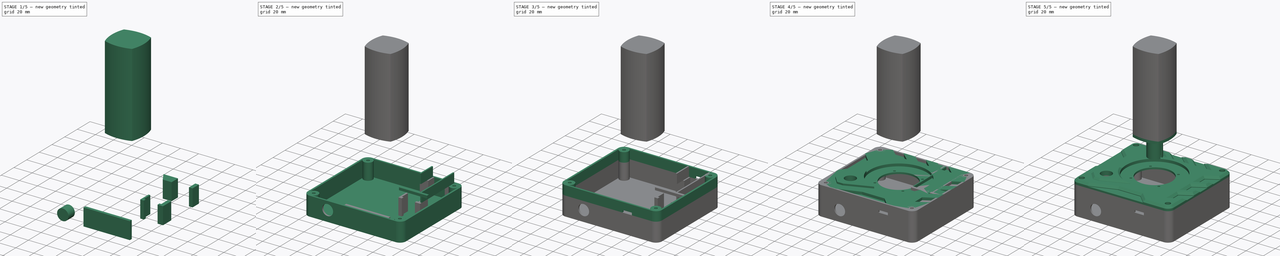
[diagram: build sequence overview — one tinted view per stage of 5, left to right]
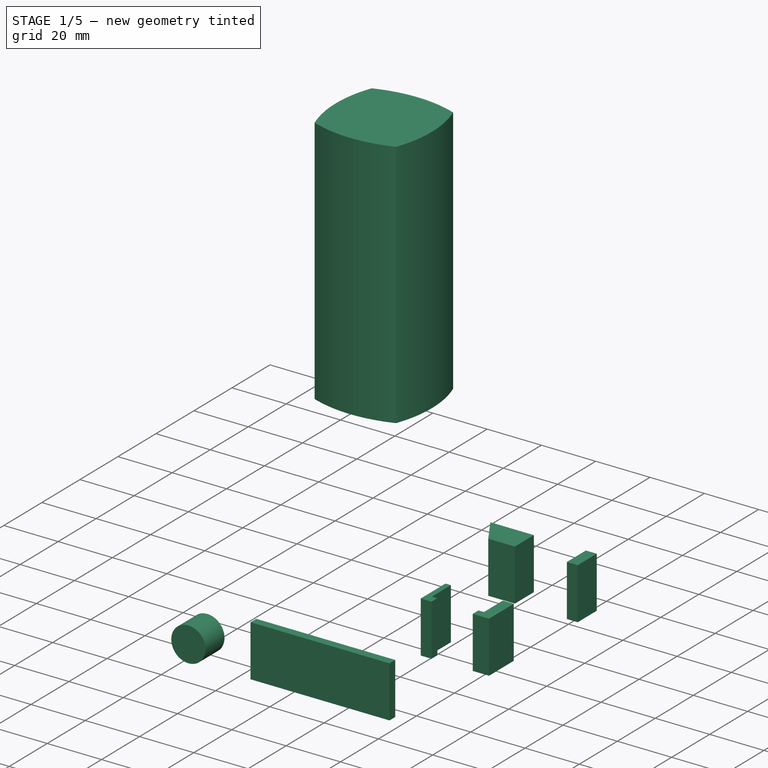
[diagram: stage 1 of 5 — iso view after this stage's code; geometry added in this stage tinted green]
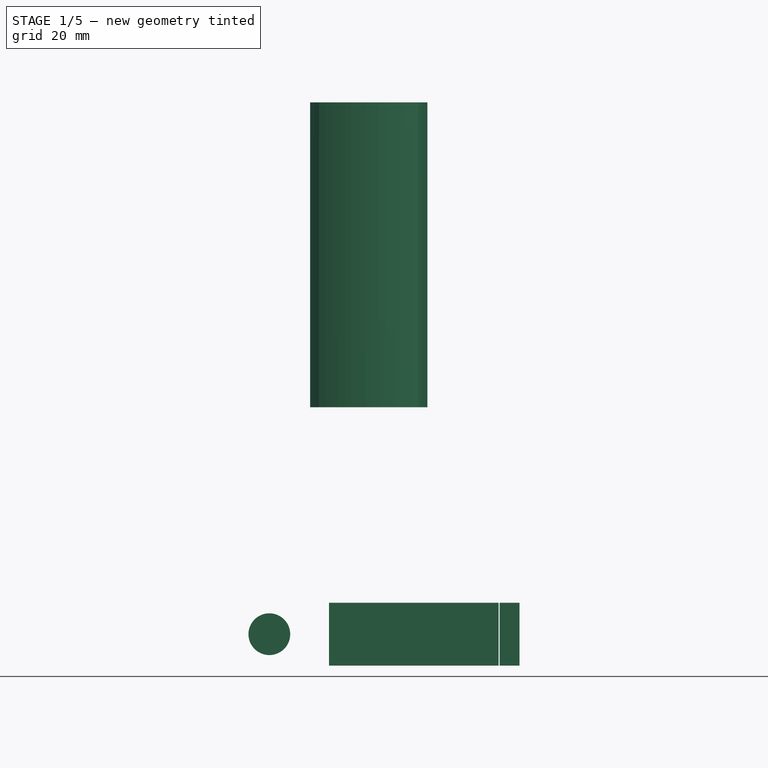
[diagram: stage 1 of 5 — front view after this stage's code; geometry added in this stage tinted green]
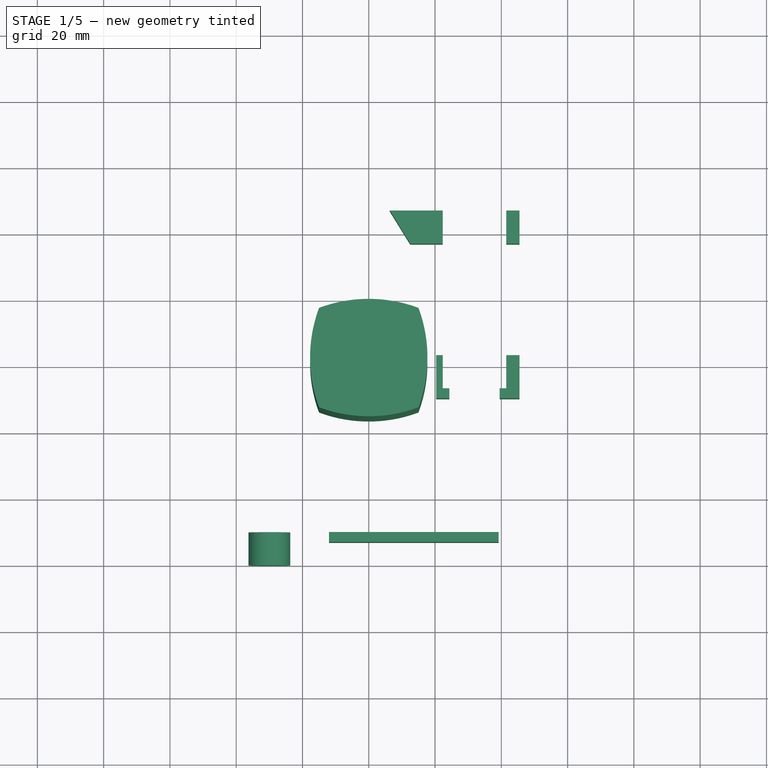
[diagram: stage 1 of 5 — top view after this stage's code; geometry added in this stage tinted green]
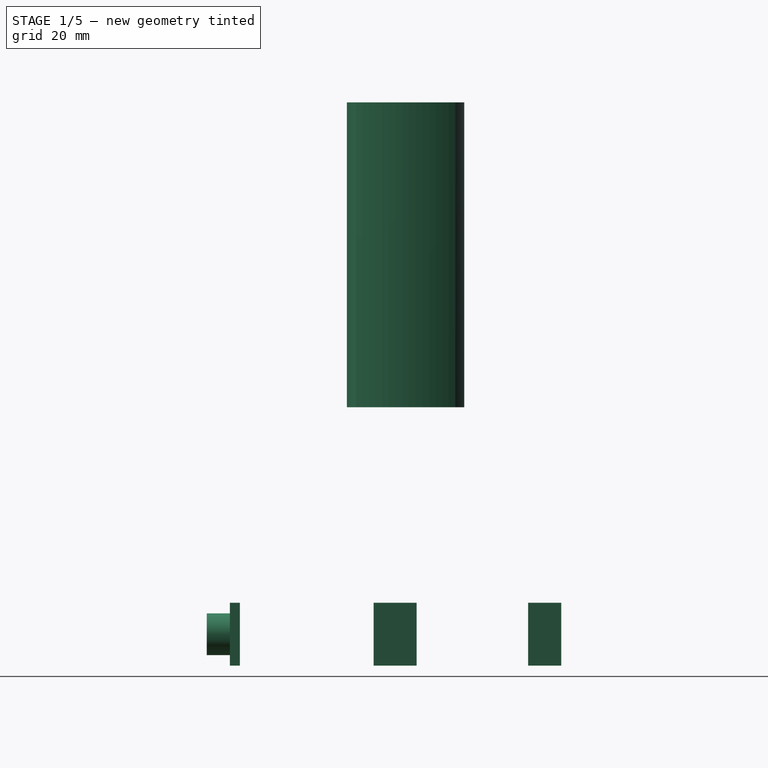
[diagram: stage 1 of 5 — right view after this stage's code; geometry added in this stage tinted green]
FCSTD DOCUMENT  (FreeCAD 0.19R24267 +148 (Git))
Label: FlightStick
License: All rights reserved
LicenseURL: http://en.wikipedia.org/wiki/All_rights_reserved
objects: Sketcher::SketchObject×19, Part::Extrusion×19, Part::MultiFuse×5, Part::Cut×3, Part::Chamfer×2
note: 48 computed .brp shape members not serialized (recipe doc carries the construction recipe); baked Part::Feature solids carry a one-line shape summary decoded from their .brp

FEATURE [Sketcher::SketchObject] Sketch032
  FullyConstrained = false
  Placement = pos=(0,0,0) rot=(1,0,0;1.5708rad)
  sketch-geometry (1):
    g0: Circle CenterX=0 CenterY=0 CenterZ=0 NormalX=0 NormalY=0 NormalZ=1 AngleXU=0 Radius=6.3
  constraints (2):
    c: Coincident(g0,g-1)
    c: Diameter(g0) = 12.6
FEATURE [Part::Extrusion] Extrude020
  Base = -> Sketch032
  Dir = (0,1,0)
  DirMode = 0
  FaceMakerClass = Part::FaceMakerBullseye
  LengthFwd = 10
  LengthRev = 0
  Placement = pos=(-30,-60,-20.5) rot=(0,0,1;0rad)
  Solid = true
  Symmetric = false
FEATURE [Sketcher::SketchObject] Sketch033
  FullyConstrained = false
  MapMode = 5
  sketch-geometry (78):
    g0: LineSegment StartX=49 StartY=49 StartZ=0 EndX=-51 EndY=49 EndZ=0
    g1: LineSegment StartX=-58 StartY=42 StartZ=0 EndX=-58 EndY=-48 EndZ=0
    g2: LineSegment StartX=-51 StartY=-55 StartZ=0 EndX=49 EndY=-55 EndZ=0
    g3: LineSegment StartX=56 StartY=-48 StartZ=0 EndX=56 EndY=42 EndZ=0
    g4: ArcOfCircle CenterX=49 CenterY=42 CenterZ=0 NormalX=0 NormalY=0 NormalZ=1 AngleXU=0 Radius=7 StartAngle=0 EndAngle=1.5708
    g5: ArcOfCircle CenterX=49 CenterY=-48 CenterZ=0 NormalX=0 NormalY=0 NormalZ=1 AngleXU=0 Radius=7 StartAngle=4.71239 EndAngle=6.28319
    g6: ArcOfCircle CenterX=-51 CenterY=-48 CenterZ=0 NormalX=0 NormalY=0 NormalZ=1 AngleXU=0 Radius=7 StartAngle=3.14159 EndAngle=4.71239
    g7: ArcOfCircle CenterX=-51 CenterY=42 CenterZ=0 NormalX=0 NormalY=0 NormalZ=1 AngleXU=0 Radius=7 StartAngle=1.5708 EndAngle=3.14159
    g8: Circle CenterX=-51 CenterY=42 CenterZ=0 NormalX=0 NormalY=0 NormalZ=1 AngleXU=0 Radius=1.8
    g9: Circle CenterX=49 CenterY=42 CenterZ=0 NormalX=0 NormalY=0 NormalZ=1 AngleXU=0 Radius=1.8
    g10: Circle CenterX=49 CenterY=-48 CenterZ=0 NormalX=0 NormalY=0 NormalZ=1 AngleXU=0 Radius=1.8
    g11: Circle CenterX=-51 CenterY=-48 CenterZ=0 NormalX=0 NormalY=0 NormalZ=1 AngleXU=0 Radius=1.8
    g12: ArcOfCircle CenterX=-51 CenterY=42 CenterZ=0 NormalX=0 NormalY=0 NormalZ=1 AngleXU=0 Radius=5.32089 StartAngle=3.49066 EndAngle=7.50492
    g13: ArcOfCircle CenterX=49 CenterY=42 CenterZ=0 NormalX=0 NormalY=0 NormalZ=1 AngleXU=0 Radius=5.32089 StartAngle=1.91986 EndAngle=5.93412
    g14: ArcOfCircle CenterX=49 CenterY=-48 CenterZ=0 NormalX=0 NormalY=0 NormalZ=1 AngleXU=0 Radius=5.32089 StartAngle=0.349066 EndAngle=4.36332
    g15: ArcOfCircle CenterX=-51 CenterY=-48 CenterZ=0 NormalX=0 NormalY=0 NormalZ=1 AngleXU=0 Radius=5.32089 StartAngle=5.06145 EndAngle=9.07571
    g16: LineSegment StartX=-56 StartY=-46.1801 StartZ=0 EndX=-56 EndY=40.1801 EndZ=0
    g17: LineSegment StartX=-49.1801 StartY=47 StartZ=0 EndX=47.1801 EndY=47 EndZ=0
    g18: LineSegment StartX=54 StartY=40.1801 StartZ=0 EndX=54 EndY=-46.1801 EndZ=0
    g19: LineSegment StartX=47.1801 StartY=-53 StartZ=0 EndX=-49.1801 EndY=-53 EndZ=0
    g20: LineSegment StartX=20.34 StartY=47 StartZ=0 EndX=43.5 EndY=47 EndZ=0
    g21: LineSegment StartX=43.5 StartY=47 StartZ=0 EndX=43.5 EndY=-6.64 EndZ=0
    g22: LineSegment StartX=43.5 StartY=-6.64 StartZ=0 EndX=20.34 EndY=-6.64 EndZ=0
    g23: LineSegment StartX=20.34 StartY=-6.64 StartZ=0 EndX=20.34 EndY=47 EndZ=0
    g24: LineSegment StartX=41.5 StartY=47 StartZ=0 EndX=41.5 EndY=-6.64 EndZ=0
    g25: LineSegment StartX=22.34 StartY=-6.64 StartZ=0 EndX=22.34 EndY=47 EndZ=0
    g26: LineSegment StartX=20.34 StartY=-6.64 StartZ=0 EndX=22.34 EndY=-6.64 EndZ=0
    g27: LineSegment StartX=43.5 StartY=-6.64 StartZ=0 EndX=41.5 EndY=-6.64 EndZ=0
    g28: LineSegment StartX=20.34 StartY=47 StartZ=0 EndX=-49.1801 EndY=47 EndZ=0
    g29: LineSegment StartX=43.5 StartY=47 StartZ=0 EndX=47.1801 EndY=47 EndZ=0
    g30: LineSegment StartX=41.5 StartY=47 StartZ=0 EndX=22.34 EndY=47 EndZ=0
    g31: LineSegment StartX=20.34 StartY=47 StartZ=0 EndX=22.34 EndY=47 EndZ=0
    g32: LineSegment StartX=41.5 StartY=47 StartZ=0 EndX=43.5 EndY=47 EndZ=0
    g33: LineSegment StartX=43.5 StartY=-6.64 StartZ=0 EndX=54 EndY=-6.64 EndZ=0
    g34: LineSegment StartX=54 StartY=1.36 StartZ=0 EndX=48 EndY=1.36 EndZ=0
    g35: LineSegment StartX=48 StartY=1.36 StartZ=0 EndX=43.5 EndY=7 EndZ=0
    g36: LineSegment StartX=43.5 StartY=7 StartZ=0 EndX=43.5 EndY=47 EndZ=0
    g37: LineSegment StartX=54 StartY=1.36 StartZ=0 EndX=54 EndY=-6.64 EndZ=0
    g38: LineSegment StartX=20.34 StartY=24.36 StartZ=0 EndX=6.34 EndY=47 EndZ=0
    g39: LineSegment StartX=22.34 StartY=47 StartZ=0 EndX=6.34 EndY=47 EndZ=0
    g40: LineSegment StartX=20.34 StartY=24.36 StartZ=0 EndX=20.34 EndY=-6.64 EndZ=0
    g41: LineSegment StartX=54 StartY=-6.64 StartZ=0 EndX=39.5 EndY=-6.64 EndZ=0
    g42: LineSegment StartX=39.5 StartY=-6.64 StartZ=0 EndX=39.5 EndY=-9.64 EndZ=0
    g43: LineSegment StartX=39.5 StartY=-9.64 StartZ=0 EndX=54 EndY=-9.64 EndZ=0
    g44: LineSegment StartX=54 StartY=-9.64 StartZ=0 EndX=54 EndY=-6.64 EndZ=0
    g45: LineSegment StartX=20.34 StartY=-6.64 StartZ=0 EndX=24.34 EndY=-6.64 EndZ=0
    g46: LineSegment StartX=24.34 StartY=-6.64 StartZ=0 EndX=24.34 EndY=-9.64 EndZ=0
    g47: LineSegment StartX=24.34 StartY=-9.64 StartZ=0 EndX=20.34 EndY=-9.64 EndZ=0
    g48: LineSegment StartX=20.34 StartY=-9.64 StartZ=0 EndX=20.34 EndY=-6.64 EndZ=0
    g49: LineSegment StartX=39 StartY=-53 StartZ=0 EndX=-11.8 EndY=-53 EndZ=0
    g50: LineSegment StartX=-11.8 StartY=-53 StartZ=0 EndX=-11.8 EndY=-55 EndZ=0
    g51: LineSegment StartX=-11.8 StartY=-55 StartZ=0 EndX=39 EndY=-55 EndZ=0
    g52: LineSegment StartX=39 StartY=-55 StartZ=0 EndX=39 EndY=-53 EndZ=0
    g53: LineSegment StartX=43.5 StartY=47 StartZ=0 EndX=45.5 EndY=47 EndZ=0
    g54: LineSegment StartX=45.5 StartY=47 StartZ=0 EndX=45.5 EndY=-6.64 EndZ=0
    g55: LineSegment StartX=45.5 StartY=-6.64 StartZ=0 EndX=43.5 EndY=-6.64 EndZ=0
    g56: LineSegment StartX=43.5 StartY=-6.64 StartZ=0 EndX=43.5 EndY=47 EndZ=0
    g57: LineSegment StartX=20.34 StartY=24 StartZ=0 EndX=18.34 EndY=24 EndZ=0
    g58: LineSegment StartX=18.34 StartY=24 StartZ=0 EndX=18.34 EndY=47 EndZ=0
    g59: LineSegment StartX=18.34 StartY=47 StartZ=0 EndX=20.34 EndY=47 EndZ=0
    g60: LineSegment StartX=20.34 StartY=47 StartZ=0 EndX=20.34 EndY=24 EndZ=0
    g61: LineSegment StartX=24.34 StartY=-6.64 StartZ=0 EndX=22.34 EndY=-6.64 EndZ=0
    g62: LineSegment StartX=22.34 StartY=-6.64 StartZ=0 EndX=22.34 EndY=3.36 EndZ=0
    g63: LineSegment StartX=22.34 StartY=3.36 StartZ=0 EndX=20.34 EndY=3.36 EndZ=0
    g64: LineSegment StartX=20.34 StartY=3.36 StartZ=0 EndX=20.34 EndY=-6.64 EndZ=0
    g65: LineSegment StartX=39.5 StartY=-6.64 StartZ=0 EndX=41.5 EndY=-6.64 EndZ=0
    g66: LineSegment StartX=41.5 StartY=-6.64 StartZ=0 EndX=41.5 EndY=3.36 EndZ=0
    g67: LineSegment StartX=41.5 StartY=3.36 StartZ=0 EndX=45.5 EndY=3.36 EndZ=0
    g68: LineSegment StartX=45.5 StartY=3.36 StartZ=0 EndX=45.5 EndY=-9.64 EndZ=0
    g69: LineSegment StartX=45.5 StartY=-9.64 StartZ=0 EndX=39.5 EndY=-9.64 EndZ=0
    g70: LineSegment StartX=22.34 StartY=47 StartZ=0 EndX=6.34 EndY=47 EndZ=0
    g71: LineSegment StartX=6.34 StartY=47 StartZ=0 EndX=12.5237 EndY=37 EndZ=0
    g72: LineSegment StartX=12.5237 StartY=37 StartZ=0 EndX=22.34 EndY=37 EndZ=0
    g73: LineSegment StartX=22.34 StartY=37 StartZ=0 EndX=22.34 EndY=47 EndZ=0
    g74: LineSegment StartX=45.5 StartY=47 StartZ=0 EndX=41.5 EndY=47 EndZ=0
    g75: LineSegment StartX=41.5 StartY=47 StartZ=0 EndX=41.5 EndY=37 EndZ=0
    g76: LineSegment StartX=41.5 StartY=37 StartZ=0 EndX=45.5 EndY=37 EndZ=0
    g77: LineSegment StartX=45.5 StartY=37 StartZ=0 EndX=45.5 EndY=47 EndZ=0
  constraints (209):
    c: Horizontal(g0)
    c: Vertical(g1)
    c: Vertical(g3)
    c: Tangent(g0,g4) = -1.5708
    c: Tangent(g2,g5) = -1.5708
    c: Tangent(g3,g5) = -1.5708
    c: Tangent(g1,g6) = -1.5708
    c: Tangent(g2,g6) = -1.5708
    c: Tangent(g0,g7) = -1.5708
    c: Tangent(g1,g7) = -1.5708
    c: Equal(g4,g5)
    c: Equal(g5,g6)
    c: Equal(g6,g7)
    c: Radius(g7) = 7
    c: Distance(g0) = 100
    c: Distance(g1) = 90
    c: DistanceX(g6,g-1) = 51
    c: DistanceY(g6,g-1) = 55
    c: Coincident(g8,g7)
    c: Diameter(g8) = 3.6
    c: Equal(g8,g9) = 6
    c: Coincident(g9,g4)
    c: Equal(g8,g10) = 6
    c: Coincident(g10,g5)
    c: Equal(g8,g11) = 6
    c: Coincident(g11,g6)
    c: Horizontal(g2)
    c: Coincident(g12,g7)
    c: Coincident(g13,g4)
    c: Coincident(g14,g5)
    c: Coincident(g15,g6)
    c: Coincident(g16,g15)
    c: Coincident(g16,g12)
    c: Vertical(g16)
    c: Coincident(g17,g12)
    c: Coincident(g18,g13)
    c: Coincident(g18,g14)
    c: Vertical(g18)
    c: Coincident(g19,g14)
    c: Coincident(g19,g15)
    c: Horizontal(g19)
    c: DistanceY(g2,g15) = 2
    c: DistanceX(g1,g15) = 2
    c: Angle(g15) = 4.01426
    c: DistanceX(g14,g3) = 2
    c: DistanceY(g13,g0) = 2
    c: Coincident(g20,g21)
    c: Coincident(g21,g22)
    c: Coincident(g22,g23)
    c: Coincident(g23,g20)
    c: Horizontal(g20)
    c: Horizontal(g22)
    c: Vertical(g21)
    c: Vertical(g23)
    c: DistanceX(g22,g22) = 23.16
    c: DistanceY(g21,g21) = 53.64
    c: PointOnObject(g24,g20)
    c: PointOnObject(g24,g22)
    c: Vertical(g24)
    c: PointOnObject(g25,g22)
    c: PointOnObject(g25,g20)
    c: Vertical(g25)
    c: DistanceX(g20,g25) = 2
    c: DistanceX(g24,g20) = 2
    c: PointOnObject(g23,g17)
    c: Coincident(g26,g23)
    c: Coincident(g26,g25)
    c: Coincident(g27,g21)
    c: Coincident(g27,g24)
    c: Coincident(g28,g23)
    c: Coincident(g28,g12)
    c: Coincident(g29,g21)
    c: Horizontal(g29)
    c: Coincident(g30,g24)
    c: Coincident(g30,g25)
    c: DistanceX(g21,g3) = 12.5
    c: Vertical(g12,g15)
    c: Equal(g15,g14)
    c: Equal(g14,g13)
    c: Coincident(g17,g13)
    c: Coincident(g29,g13)
    c: Coincident(g3,g4)
    c: Equal(g3,g1)
    c: Coincident(g31,g23)
    c: Coincident(g31,g25)
    c: Coincident(g32,g24)
    c: Coincident(g32,g21)
    c: Coincident(g33,g27)
    c: PointOnObject(g33,g18)
    c: Horizontal(g33)
    c: PointOnObject(g34,g18)
    c: Horizontal(g34)
    c: Coincident(g35,g34)
    c: PointOnObject(g35,g21)
    c: Coincident(g36,g35)
    c: Coincident(g36,g32)
    c: DistanceY(g33,g34) = 8
    c: Distance(g34) = 6
    c: Distance(g36) = 40
    c: Coincident(g37,g34)
    c: Coincident(g37,g33)
    c: PointOnObject(g38,g23)
    c: PointOnObject(g38,g17)
    c: Coincident(g39,g25)
    c: Coincident(g39,g38)
    c: Coincident(g40,g38)
    c: Coincident(g40,g26)
    c: DistanceX(g39,g39) = 16
    c: DistanceY(g40,g40) = 31
    c: Coincident(g41,g42)
    c: Coincident(g42,g43)
    c: Coincident(g43,g44)
    c: Coincident(g44,g41)
    c: Horizontal(g41)
    c: Horizontal(g43)
    c: Vertical(g42)
    c: Vertical(g44)
    c: Coincident(g41,g33)
    c: Coincident(g45,g46)
    c: Coincident(g46,g47)
    c: Coincident(g47,g48)
    c: Coincident(g48,g45)
    c: Horizontal(g45)
    c: Horizontal(g47)
    c: Vertical(g46)
    c: Vertical(g48)
    c: Coincident(g45,g22)
    c: DistanceX(g41,g24) = 2
    c: DistanceX(g25,g45) = 2
    c: Equal(g46,g42)
    c: DistanceY(g46,g46) = 3
    c: Coincident(g49,g50)
    c: Coincident(g50,g51)
    c: Coincident(g51,g52)
    c: Coincident(g52,g49)
    c: Horizontal(g49)
    c: Horizontal(g51)
    c: Vertical(g50)
    c: Vertical(g52)
    c: PointOnObject(g49,g19)
    c: PointOnObject(g50,g2)
    c: DistanceX(g49,g49) = 50.8
    c: DistanceX(g51,g3) = 17
    c: Coincident(g53,g54)
    c: Coincident(g54,g55)
    c: Coincident(g55,g56)
    c: Horizontal(g55)
    c: Vertical(g54)
    c: Vertical(g56)
    c: PointOnObject(g54,g33)
    c: Coincident(g53,g20)
    c: Coincident(g56,g53)
    c: PointOnObject(g53,g17)
    c: DistanceX(g53,g53) = 2
    c: Coincident(g57,g58)
    c: Coincident(g58,g59)
    c: Coincident(g59,g60)
    c: Coincident(g60,g57)
    c: Horizontal(g57)
    c: Horizontal(g59)
    c: Vertical(g58)
    c: Vertical(g60)
    c: PointOnObject(g57,g23)
    c: PointOnObject(g58,g17)
    c: DistanceX(g59,g59) = 2
    c: DistanceY(g58,g58) = 23
    c: Coincident(g46,g61)
    c: Coincident(g61,g25)
    c: Coincident(g61,g62)
    c: PointOnObject(g62,g25)
    c: Coincident(g62,g63)
    c: PointOnObject(g63,g23)
    c: Horizontal(g63)
    c: Coincident(g63,g64)
    c: Coincident(g64,g48)
    c: Coincident(g42,g65)
    c: Coincident(g65,g24)
    c: Coincident(g65,g66)
    c: PointOnObject(g66,g24)
    c: Coincident(g66,g67)
    c: PointOnObject(g67,g54)
    c: Horizontal(g67)
    c: Coincident(g67,g68)
    c: PointOnObject(g68,g43)
    c: Vertical(g68)
    c: Coincident(g68,g69)
    c: Coincident(g69,g42)
    c: Equal(g66,g62)
    c: Coincident(g25,g70)
    c: Coincident(g70,g38)
    c: Coincident(g70,g71)
    c: PointOnObject(g71,g38)
    c: Coincident(g71,g72)
    c: PointOnObject(g72,g25)
    c: Horizontal(g72)
    c: Coincident(g72,g73)
    c: Coincident(g73,g70)
    c: Coincident(g53,g74)
    c: Coincident(g74,g24)
    c: Coincident(g74,g75)
    c: PointOnObject(g75,g24)
    c: Coincident(g75,g76)
    c: PointOnObject(g76,g54)
    c: Horizontal(g76)
    c: Coincident(g76,g77)
    c: Coincident(g77,g74)
    c: Equal(g66,g75)
    c: Equal(g75,g73)
    c: Distance(g73) = 10
FEATURE [Part::Extrusion] Extrude021
  Base = -> Sketch033
  Dir = (0,0,1)
  DirMode = 0
  FaceMakerClass = Part::FaceMakerBullseye
  LengthFwd = 19
  LengthRev = 0
  Placement = pos=(0,0,-30) rot=(0,0,1;0rad)
  Solid = true
  Symmetric = false
FEATURE [Sketcher::SketchObject] Sketch034
  FullyConstrained = false
  MapMode = 5
  sketch-geometry (53):
    g0: LineSegment StartX=49 StartY=49 StartZ=0 EndX=-51 EndY=49 EndZ=0
    g1: LineSegment StartX=-58 StartY=42 StartZ=0 EndX=-58 EndY=-48 EndZ=0
    g2: LineSegment StartX=-51 StartY=-55 StartZ=0 EndX=49 EndY=-55 EndZ=0
    g3: LineSegment StartX=56 StartY=-48 StartZ=0 EndX=56 EndY=42 EndZ=0
    g4: ArcOfCircle CenterX=49 CenterY=42 CenterZ=0 NormalX=0 NormalY=0 NormalZ=1 AngleXU=0 Radius=7 StartAngle=5e-16 EndAngle=1.5708
    g5: ArcOfCircle CenterX=49 CenterY=-48 CenterZ=0 NormalX=0 NormalY=0 NormalZ=1 AngleXU=0 Radius=7 StartAngle=4.71239 EndAngle=6.28319
    g6: ArcOfCircle CenterX=-51 CenterY=-48 CenterZ=0 NormalX=0 NormalY=0 NormalZ=1 AngleXU=0 Radius=7 StartAngle=3.14159 EndAngle=4.71239
    g7: ArcOfCircle CenterX=-51 CenterY=42 CenterZ=0 NormalX=0 NormalY=0 NormalZ=1 AngleXU=0 Radius=7 StartAngle=1.5708 EndAngle=3.14159
    g8: Circle CenterX=-51 CenterY=42 CenterZ=0 NormalX=0 NormalY=0 NormalZ=1 AngleXU=0 Radius=1.8
    g9: Circle CenterX=49 CenterY=42 CenterZ=0 NormalX=0 NormalY=0 NormalZ=1 AngleXU=0 Radius=1.8
    g10: Circle CenterX=49 CenterY=-48 CenterZ=0 NormalX=0 NormalY=0 NormalZ=1 AngleXU=0 Radius=1.8
    g11: Circle CenterX=-51 CenterY=-48 CenterZ=0 NormalX=0 NormalY=0 NormalZ=1 AngleXU=0 Radius=1.8
    g12: ArcOfCircle CenterX=-51 CenterY=42 CenterZ=0 NormalX=0 NormalY=0 NormalZ=1 AngleXU=0 Radius=5.32089 StartAngle=3.49066 EndAngle=7.50492
    g13: ArcOfCircle CenterX=49 CenterY=42 CenterZ=0 NormalX=0 NormalY=0 NormalZ=1 AngleXU=0 Radius=5.32089 StartAngle=1.91986 EndAngle=5.93412
    g14: ArcOfCircle CenterX=49 CenterY=-48 CenterZ=0 NormalX=0 NormalY=0 NormalZ=1 AngleXU=0 Radius=5.32089 StartAngle=0.349066 EndAngle=4.36332
    g15: ArcOfCircle CenterX=-51 CenterY=-48 CenterZ=0 NormalX=0 NormalY=0 NormalZ=1 AngleXU=0 Radius=5.32089 StartAngle=5.06145 EndAngle=9.07571
    g16: LineSegment StartX=-56 StartY=-46.1801 StartZ=0 EndX=-56 EndY=40.1801 EndZ=0
    g17: LineSegment StartX=-49.1801 StartY=47 StartZ=0 EndX=47.1801 EndY=47 EndZ=0
    g18: LineSegment StartX=54 StartY=40.1801 StartZ=0 EndX=54 EndY=-46.1801 EndZ=0
    g19: LineSegment StartX=47.1801 StartY=-53 StartZ=0 EndX=-49.1801 EndY=-53 EndZ=0
    g20: LineSegment StartX=20.64 StartY=47 StartZ=0 EndX=43.5 EndY=47 EndZ=0
    g21: LineSegment StartX=43.5 StartY=47 StartZ=0 EndX=43.5 EndY=-6.34 EndZ=0
    g22: LineSegment StartX=43.5 StartY=-6.34 StartZ=0 EndX=20.64 EndY=-6.34 EndZ=0
    g23: LineSegment StartX=20.64 StartY=-6.34 StartZ=0 EndX=20.64 EndY=47 EndZ=0
    g24: LineSegment StartX=41.5 StartY=47 StartZ=0 EndX=41.5 EndY=-6.34 EndZ=0
    g25: LineSegment StartX=22.64 StartY=-6.34 StartZ=0 EndX=22.64 EndY=47 EndZ=0
    g26: LineSegment StartX=20.64 StartY=-6.34 StartZ=0 EndX=22.64 EndY=-6.34 EndZ=0
    g27: LineSegment StartX=43.5 StartY=-6.34 StartZ=0 EndX=41.5 EndY=-6.34 EndZ=0
    g28: LineSegment StartX=20.64 StartY=47 StartZ=0 EndX=-49.1801 EndY=47 EndZ=0
    g29: LineSegment StartX=43.5 StartY=47 StartZ=0 EndX=47.1801 EndY=47 EndZ=0
    g30: LineSegment StartX=41.5 StartY=47 StartZ=0 EndX=22.64 EndY=47 EndZ=0
    g31: LineSegment StartX=20.64 StartY=47 StartZ=0 EndX=22.64 EndY=47 EndZ=0
    g32: LineSegment StartX=41.5 StartY=47 StartZ=0 EndX=43.5 EndY=47 EndZ=0
    g33: LineSegment StartX=43.5 StartY=-6.34 StartZ=0 EndX=54 EndY=-6.34 EndZ=0
    g34: LineSegment StartX=54 StartY=1.66 StartZ=0 EndX=48 EndY=1.66 EndZ=0
    g35: LineSegment StartX=48 StartY=1.66 StartZ=0 EndX=43.5 EndY=7 EndZ=0
    g36: LineSegment StartX=43.5 StartY=7 StartZ=0 EndX=43.5 EndY=47 EndZ=0
    g37: LineSegment StartX=54 StartY=1.66 StartZ=0 EndX=54 EndY=-6.34 EndZ=0
    g38: LineSegment StartX=20.64 StartY=24.66 StartZ=0 EndX=6.64 EndY=47 EndZ=0
    g39: LineSegment StartX=22.64 StartY=47 StartZ=0 EndX=6.64 EndY=47 EndZ=0
    g40: LineSegment StartX=20.64 StartY=24.66 StartZ=0 EndX=20.64 EndY=-6.34 EndZ=0
    g41: LineSegment StartX=54 StartY=-6.34 StartZ=0 EndX=39.5 EndY=-6.34 EndZ=0
    g42: LineSegment StartX=39.5 StartY=-6.34 StartZ=0 EndX=39.5 EndY=-9.34 EndZ=0
    g43: LineSegment StartX=39.5 StartY=-9.34 StartZ=0 EndX=54 EndY=-9.34 EndZ=0
    g44: LineSegment StartX=54 StartY=-9.34 StartZ=0 EndX=54 EndY=-6.34 EndZ=0
    g45: LineSegment StartX=20.64 StartY=-6.34 StartZ=0 EndX=24.64 EndY=-6.34 EndZ=0
    g46: LineSegment StartX=24.64 StartY=-6.34 StartZ=0 EndX=24.64 EndY=-9.34 EndZ=0
    g47: LineSegment StartX=24.64 StartY=-9.34 StartZ=0 EndX=20.64 EndY=-9.34 EndZ=0
    g48: LineSegment StartX=20.64 StartY=-9.34 StartZ=0 EndX=20.64 EndY=-6.34 EndZ=0
    g49: LineSegment StartX=39.2 StartY=-50 StartZ=0 EndX=-12 EndY=-50 EndZ=0
    g50: LineSegment StartX=-12 StartY=-50 StartZ=0 EndX=-12 EndY=-53 EndZ=0
    g51: LineSegment StartX=-12 StartY=-53 StartZ=0 EndX=39.2 EndY=-53 EndZ=0
    g52: LineSegment StartX=39.2 StartY=-53 StartZ=0 EndX=39.2 EndY=-50 EndZ=0
  constraints (143):
    c: Horizontal(g0)
    c: Vertical(g1)
    c: Vertical(g3)
    c: Tangent(g0,g4) = -1.5708
    c: Tangent(g2,g5) = -1.5708
    c: Tangent(g3,g5) = -1.5708
    c: Tangent(g1,g6) = -1.5708
    c: Tangent(g2,g6) = -1.5708
    c: Tangent(g0,g7) = -1.5708
    c: Tangent(g1,g7) = -1.5708
    c: Equal(g4,g5)
    c: Equal(g5,g6)
    c: Equal(g6,g7)
    c: Radius(g7) = 7
    c: Distance(g0) = 100
    c: Distance(g1) = 90
    c: DistanceX(g6,g-1) = 51
    c: DistanceY(g6,g-1) = 55
    c: Coincident(g8,g7)
    c: Diameter(g8) = 3.6
    c: Equal(g8,g9) = 6
    c: Coincident(g9,g4)
    c: Equal(g8,g10) = 6
    c: Coincident(g10,g5)
    c: Equal(g8,g11) = 6
    c: Coincident(g11,g6)
    c: Horizontal(g2)
    c: Coincident(g12,g7)
    c: Coincident(g13,g4)
    c: Coincident(g14,g5)
    c: Coincident(g15,g6)
    c: Coincident(g16,g15)
    c: Coincident(g16,g12)
    c: Vertical(g16)
    c: Coincident(g17,g12)
    c: Coincident(g18,g13)
    c: Coincident(g18,g14)
    c: Vertical(g18)
    c: Coincident(g19,g14)
    c: Coincident(g19,g15)
    c: Horizontal(g19)
    c: DistanceY(g2,g15) = 2
    c: DistanceX(g1,g15) = 2
    c: Angle(g15) = 4.01426
    c: DistanceX(g14,g3) = 2
    c: DistanceY(g13,g0) = 2
    c: Coincident(g20,g21)
    c: Coincident(g21,g22)
    c: Coincident(g22,g23)
    c: Coincident(g23,g20)
    c: Horizontal(g20)
    c: Horizontal(g22)
    c: Vertical(g21)
    c: Vertical(g23)
    c: DistanceX(g22,g22) = 22.86
    c: DistanceY(g21,g21) = 53.34
    c: PointOnObject(g24,g20)
    c: PointOnObject(g24,g22)
    c: Vertical(g24)
    c: PointOnObject(g25,g22)
    c: PointOnObject(g25,g20)
    c: Vertical(g25)
    c: DistanceX(g20,g25) = 2
    c: DistanceX(g24,g20) = 2
    c: PointOnObject(g23,g17)
    c: Coincident(g26,g23)
    c: Coincident(g26,g25)
    c: Coincident(g27,g21)
    c: Coincident(g27,g24)
    c: Coincident(g28,g23)
    c: Coincident(g28,g12)
    c: Coincident(g29,g21)
    c: Horizontal(g29)
    c: Coincident(g30,g24)
    c: Coincident(g30,g25)
    c: DistanceX(g21,g3) = 12.5
    c: Vertical(g12,g15)
    c: Equal(g15,g14)
    c: Equal(g14,g13)
    c: Coincident(g17,g13)
    c: Coincident(g29,g13)
    c: Coincident(g3,g4)
    c: Equal(g3,g1)
    c: Coincident(g31,g23)
    c: Coincident(g31,g25)
    c: Coincident(g32,g24)
    c: Coincident(g32,g21)
    c: Coincident(g33,g27)
    c: PointOnObject(g33,g18)
    c: Horizontal(g33)
    c: PointOnObject(g34,g18)
    c: Horizontal(g34)
    c: Coincident(g35,g34)
    c: PointOnObject(g35,g21)
    c: Coincident(g36,g35)
    c: Coincident(g36,g32)
    c: DistanceY(g33,g34) = 8
    c: Distance(g34) = 6
    c: Distance(g36) = 40
    c: Coincident(g37,g34)
    c: Coincident(g37,g33)
    c: PointOnObject(g38,g23)
    c: PointOnObject(g38,g17)
    c: Coincident(g39,g25)
    c: Coincident(g39,g38)
    c: Coincident(g40,g38)
    c: Coincident(g40,g26)
    c: DistanceX(g39,g39) = 16
    c: DistanceY(g40,g40) = 31
    c: Coincident(g41,g42)
    c: Coincident(g42,g43)
    c: Coincident(g43,g44)
    c: Coincident(g44,g41)
    c: Horizontal(g41)
    c: Horizontal(g43)
    c: Vertical(g42)
    c: Vertical(g44)
    c: Coincident(g41,g33)
    c: Coincident(g45,g46)
    c: Coincident(g46,g47)
    c: Coincident(g47,g48)
    c: Coincident(g48,g45)
    c: Horizontal(g45)
    c: Horizontal(g47)
    c: Vertical(g46)
    c: Vertical(g48)
    c: Coincident(g45,g22)
    c: DistanceX(g41,g24) = 2
    c: DistanceX(g25,g45) = 2
    c: Equal(g46,g42)
    c: DistanceY(g46,g46) = 3
    c: Coincident(g49,g50)
    c: Coincident(g50,g51)
    c: Coincident(g51,g52)
    c: Coincident(g52,g49)
    c: Horizontal(g49)
    c: Horizontal(g51)
    c: Vertical(g50)
    c: Vertical(g52)
    c: DistanceX(g49,g49) = 51.2
    c: DistanceX(g51,g3) = 16.8
    c: PointOnObject(g51,g19)
    c: Distance(g50) = 3
FEATURE [Part::Extrusion] Extrude022
  Base = -> Sketch034
  Dir = (0,0,1)
  DirMode = 0
  FaceMakerClass = Part::FaceMakerBullseye
  LengthFwd = 0
  LengthRev = 19
  Placement = pos=(0,0,-11) rot=(0,0,1;0rad)
  Solid = true
  Symmetric = false
FEATURE [Sketcher::SketchObject] Sketch035  label="Sketch Handgrip Top"
  FullyConstrained = false
  MapMode = 5
  sketch-geometry (27):
    g0: LineSegment StartX=-15 StartY=-15 StartZ=0 EndX=15 EndY=-15 EndZ=0
    g1: LineSegment StartX=15 StartY=-15 StartZ=0 EndX=15 EndY=15 EndZ=0
    g2: LineSegment StartX=-15 StartY=15 StartZ=0 EndX=-15 EndY=-15 EndZ=0
    g3: LineSegment StartX=0 StartY=15 StartZ=0 EndX=0 EndY=0 EndZ=0
    g4: LineSegment StartX=-15 StartY=15 StartZ=0 EndX=0 EndY=15 EndZ=0
    g5: LineSegment StartX=0 StartY=15 StartZ=0 EndX=15 EndY=15 EndZ=0
    g6: LineSegment StartX=15 StartY=15 StartZ=0 EndX=-15 EndY=15 EndZ=0
    g7: ArcOfCircle CenterX=-6.8e-15 CenterY=-25 CenterZ=0 NormalX=0 NormalY=0 NormalZ=1 AngleXU=0 Radius=42.72 StartAngle=1.21203 EndAngle=1.92957
    g8: ArcOfCircle CenterX=-25 CenterY=-8.5e-15 CenterZ=0 NormalX=0 NormalY=0 NormalZ=1 AngleXU=0 Radius=42.72 StartAngle=5.92441 EndAngle=6.64196
    g9: ArcOfCircle CenterX=-1.6e-15 CenterY=25 CenterZ=0 NormalX=0 NormalY=0 NormalZ=1 AngleXU=0 Radius=42.72 StartAngle=4.35362 EndAngle=5.07116
    g10: ArcOfCircle CenterX=25 CenterY=5.7e-15 CenterZ=0 NormalX=0 NormalY=0 NormalZ=1 AngleXU=0 Radius=42.72 StartAngle=2.78282 EndAngle=3.50036
    g11: Circle CenterX=-11.75 CenterY=11.75 CenterZ=0 NormalX=0 NormalY=0 NormalZ=1 AngleXU=0 Radius=1.45
    g12: Circle CenterX=-11.75 CenterY=11.75 CenterZ=0 NormalX=0 NormalY=0 NormalZ=1 AngleXU=0 Radius=3.25
    g13: Circle CenterX=11.75 CenterY=11.75 CenterZ=0 NormalX=0 NormalY=0 NormalZ=1 AngleXU=0 Radius=3.25
    g14: Circle CenterX=11.75 CenterY=11.75 CenterZ=0 NormalX=0 NormalY=0 NormalZ=1 AngleXU=0 Radius=1.45
    g15: Circle CenterX=11.75 CenterY=-11.75 CenterZ=0 NormalX=0 NormalY=0 NormalZ=1 AngleXU=0 Radius=1.45
    g16: Circle CenterX=11.75 CenterY=-11.75 CenterZ=0 NormalX=0 NormalY=0 NormalZ=1 AngleXU=0 Radius=3.25
    g17: Circle CenterX=-11.75 CenterY=-11.75 CenterZ=0 NormalX=0 NormalY=0 NormalZ=1 AngleXU=0 Radius=1.45
    g18: Circle CenterX=-11.75 CenterY=-11.75 CenterZ=0 NormalX=0 NormalY=0 NormalZ=1 AngleXU=0 Radius=3.25
    g19: ArcOfCircle CenterX=-11.75 CenterY=11.75 CenterZ=0 NormalX=0 NormalY=0 NormalZ=1 AngleXU=0 Radius=3.25 StartAngle=3.92699 EndAngle=7.06858
    g20: ArcOfCircle CenterX=11.75 CenterY=11.75 CenterZ=0 NormalX=0 NormalY=0 NormalZ=1 AngleXU=0 Radius=3.25 StartAngle=2.35619 EndAngle=5.49779
    g21: ArcOfCircle CenterX=11.75 CenterY=-11.75 CenterZ=0 NormalX=0 NormalY=0 NormalZ=1 AngleXU=0 Radius=3.25 StartAngle=0.785398 EndAngle=3.92699
    g22: ArcOfCircle CenterX=-11.75 CenterY=-11.75 CenterZ=0 NormalX=0 NormalY=0 NormalZ=1 AngleXU=0 Radius=3.25 StartAngle=5.49779 EndAngle=8.63938
    g23: LineSegment StartX=-9.4519 StartY=-14.0481 StartZ=0 EndX=9.4519 EndY=-14.0481 EndZ=0
    g24: LineSegment StartX=14.0481 StartY=-9.4519 StartZ=0 EndX=14.0481 EndY=9.4519 EndZ=0
    g25: LineSegment StartX=9.4519 StartY=14.0481 StartZ=0 EndX=-9.4519 EndY=14.0481 EndZ=0
    g26: LineSegment StartX=-14.0481 StartY=9.4519 StartZ=0 EndX=-14.0481 EndY=-9.4519 EndZ=0
  constraints (75):
    c: Coincident(g0,g1)
    c: Coincident(g2,g0)
    c: Horizontal(g0)
    c: Vertical(g1)
    c: Vertical(g2)
    c: DistanceX(g2,g1) = 30
    c: Coincident(g3,g-1)
    c: Coincident(g4,g2)
    c: Horizontal(g4)
    c: Coincident(g5,g3)
    c: Coincident(g5,g1)
    c: Horizontal(g5)
    c: Equal(g5,g4)
    c: Perpendicular(g5,g3)
    c: Coincident(g3,g4)
    c: Equal(g3,g5)
    c: Coincident(g6,g1)
    c: Coincident(g6,g2)
    c: Equal(g6,g2)
    c: Coincident(g7,g2)
    c: Coincident(g7,g1)
    c: Distance(g-1,g7) = 25
    c: Coincident(g8,g7)
    c: Coincident(g8,g0)
    c: Coincident(g9,g0)
    c: Coincident(g9,g8)
    c: Coincident(g10,g9)
    c: Coincident(g10,g7)
    c: Equal(g10,g9)
    c: Equal(g9,g8)
    c: Equal(g8,g7)
    c: Diameter(g11) = 2.9
    c: Coincident(g12,g11)
    c: Diameter(g12) = 6.5
    c: Equal(g11,g14) = 3.55
    c: Coincident(g13,g14)
    c: Equal(g12,g13) = 6.5
    c: Equal(g11,g15) = 3.55
    c: Coincident(g16,g15)
    c: Equal(g12,g16) = 6.5
    c: Equal(g11,g17) = 3.55
    c: Coincident(g18,g17)
    c: Equal(g12,g18) = 6.5
    c: Tangent(g12,g4)
    c: Tangent(g12,g2)
    c: Tangent(g13,g5)
    c: Tangent(g13,g1)
    c: Tangent(g16,g0)
    c: Tangent(g16,g1)
    c: Tangent(g18,g0)
    c: Tangent(g2,g18)
    c: Coincident(g19,g11)
    c: PointOnObject(g19,g12)
    c: Coincident(g20,g14)
    c: Coincident(g21,g15)
    c: PointOnObject(g21,g16)
    c: Coincident(g22,g17)
    c: PointOnObject(g22,g18)
    c: Coincident(g23,g22)
    c: Coincident(g23,g21)
    c: Coincident(g24,g21)
    c: Coincident(g24,g20)
    c: Vertical(g24)
    c: Coincident(g25,g20)
    c: Coincident(g25,g19)
    c: Horizontal(g25)
    c: Coincident(g26,g19)
    c: Coincident(g26,g22)
    c: Vertical(g26)
    c: Horizontal(g23)
    c: Angle(g22) = 3.14159
    c: PointOnObject(g20,g13)
    c: Equal(g24,g25)
    c: Equal(g25,g26)
    c: Equal(g26,g23)
FEATURE [Part::Extrusion] Extrude023  label="Extrude Handgrip Top"
  Base = -> Sketch035
  Dir = (0,0,1)
  DirMode = 0
  FaceMakerClass = Part::FaceMakerBullseye
  LengthFwd = 89
  LengthRev = 0
  Placement = pos=(0,0,45) rot=(0,0,1;0rad)
  Solid = true
  Symmetric = false
FEATURE [Sketcher::SketchObject] Sketch036  label="Sketch Handgrip Top Cover"
  FullyConstrained = false
  MapMode = 5
  sketch-geometry (27):
    g0: LineSegment StartX=-15 StartY=-15 StartZ=0 EndX=15 EndY=-15 EndZ=0
    g1: LineSegment StartX=15 StartY=-15 StartZ=0 EndX=15 EndY=15 EndZ=0
    g2: LineSegment StartX=-15 StartY=15 StartZ=0 EndX=-15 EndY=-15 EndZ=0
    g3: LineSegment StartX=0 StartY=15 StartZ=0 EndX=0 EndY=0 EndZ=0
    g4: LineSegment StartX=-15 StartY=15 StartZ=0 EndX=0 EndY=15 EndZ=0
    g5: LineSegment StartX=0 StartY=15 StartZ=0 EndX=15 EndY=15 EndZ=0
    g6: LineSegment StartX=15 StartY=15 StartZ=0 EndX=-15 EndY=15 EndZ=0
    g7: ArcOfCircle CenterX=-6.8e-15 CenterY=-25 CenterZ=0 NormalX=0 NormalY=0 NormalZ=1 AngleXU=0 Radius=42.72 StartAngle=1.21203 EndAngle=1.92957
    g8: ArcOfCircle CenterX=-25 CenterY=-8.5e-15 CenterZ=0 NormalX=0 NormalY=0 NormalZ=1 AngleXU=0 Radius=42.72 StartAngle=5.92441 EndAngle=6.64196
    g9: ArcOfCircle CenterX=-1.6e-15 CenterY=25 CenterZ=0 NormalX=0 NormalY=0 NormalZ=1 AngleXU=0 Radius=42.72 StartAngle=4.35362 EndAngle=5.07116
    g10: ArcOfCircle CenterX=25 CenterY=5.7e-15 CenterZ=0 NormalX=0 NormalY=0 NormalZ=1 AngleXU=0 Radius=42.72 StartAngle=2.78282 EndAngle=3.50036
    g11: Circle CenterX=-11.75 CenterY=11.75 CenterZ=0 NormalX=0 NormalY=0 NormalZ=1 AngleXU=0 Radius=1.775
    g12: Circle CenterX=-11.75 CenterY=11.75 CenterZ=0 NormalX=0 NormalY=0 NormalZ=1 AngleXU=0 Radius=3.25
    g13: Circle CenterX=11.75 CenterY=11.75 CenterZ=0 NormalX=0 NormalY=0 NormalZ=1 AngleXU=0 Radius=3.25
    g14: Circle CenterX=11.75 CenterY=11.75 CenterZ=0 NormalX=0 NormalY=0 NormalZ=1 AngleXU=0 Radius=1.775
    g15: Circle CenterX=11.75 CenterY=-11.75 CenterZ=0 NormalX=0 NormalY=0 NormalZ=1 AngleXU=0 Radius=1.775
    g16: Circle CenterX=11.75 CenterY=-11.75 CenterZ=0 NormalX=0 NormalY=0 NormalZ=1 AngleXU=0 Radius=3.25
    g17: Circle CenterX=-11.75 CenterY=-11.75 CenterZ=0 NormalX=0 NormalY=0 NormalZ=1 AngleXU=0 Radius=1.775
    g18: Circle CenterX=-11.75 CenterY=-11.75 CenterZ=0 NormalX=0 NormalY=0 NormalZ=1 AngleXU=0 Radius=3.25
    g19: ArcOfCircle CenterX=-11.75 CenterY=11.75 CenterZ=0 NormalX=0 NormalY=0 NormalZ=1 AngleXU=0 Radius=3.25 StartAngle=3.92699 EndAngle=7.06858
    g20: ArcOfCircle CenterX=11.75 CenterY=11.75 CenterZ=0 NormalX=0 NormalY=0 NormalZ=1 AngleXU=0 Radius=3.25 StartAngle=2.35619 EndAngle=5.49779
    g21: ArcOfCircle CenterX=11.75 CenterY=-11.75 CenterZ=0 NormalX=0 NormalY=0 NormalZ=1 AngleXU=0 Radius=3.25 StartAngle=0.785398 EndAngle=3.92699
    g22: ArcOfCircle CenterX=-11.75 CenterY=-11.75 CenterZ=0 NormalX=0 NormalY=0 NormalZ=1 AngleXU=0 Radius=3.25 StartAngle=5.49779 EndAngle=8.63938
    g23: LineSegment StartX=-9.4519 StartY=-14.0481 StartZ=0 EndX=9.4519 EndY=-14.0481 EndZ=0
    g24: LineSegment StartX=14.0481 StartY=-9.4519 StartZ=0 EndX=14.0481 EndY=9.4519 EndZ=0
    g25: LineSegment StartX=9.4519 StartY=14.0481 StartZ=0 EndX=-9.4519 EndY=14.0481 EndZ=0
    g26: LineSegment StartX=-14.0481 StartY=9.4519 StartZ=0 EndX=-14.0481 EndY=-9.4519 EndZ=0
  constraints (75):
    c: Coincident(g0,g1)
    c: Coincident(g2,g0)
    c: Horizontal(g0)
    c: Vertical(g1)
    c: Vertical(g2)
    c: DistanceX(g2,g1) = 30
    c: Coincident(g3,g-1)
    c: Coincident(g4,g2)
    c: Horizontal(g4)
    c: Coincident(g5,g3)
    c: Coincident(g5,g1)
    c: Horizontal(g5)
    c: Equal(g5,g4)
    c: Perpendicular(g5,g3)
    c: Coincident(g3,g4)
    c: Equal(g3,g5)
    c: Coincident(g6,g1)
    c: Coincident(g6,g2)
    c: Equal(g6,g2)
    c: Coincident(g7,g2)
    c: Coincident(g7,g1)
    c: Distance(g-1,g7) = 25
    c: Coincident(g8,g7)
    c: Coincident(g8,g0)
    c: Coincident(g9,g0)
    c: Coincident(g9,g8)
    c: Coincident(g10,g9)
    c: Coincident(g10,g7)
    c: Equal(g10,g9)
    c: Equal(g9,g8)
    c: Equal(g8,g7)
    c: Diameter(g11) = 3.55
    c: Coincident(g12,g11)
    c: Diameter(g12) = 6.5
    c: Equal(g11,g14) = 3.55
    c: Coincident(g13,g14)
    c: Equal(g12,g13) = 6.5
    c: Equal(g11,g15) = 3.55
    c: Coincident(g16,g15)
    c: Equal(g12,g16) = 6.5
    c: Equal(g11,g17) = 3.55
    c: Coincident(g18,g17)
    c: Equal(g12,g18) = 6.5
    c: Tangent(g12,g4)
    c: Tangent(g12,g2)
    c: Tangent(g13,g5)
    c: Tangent(g13,g1)
    c: Tangent(g16,g0)
    c: Tangent(g16,g1)
    c: Tangent(g18,g0)
    c: Tangent(g2,g18)
    c: Coincident(g19,g11)
    c: PointOnObject(g19,g12)
    c: Coincident(g20,g14)
    c: Coincident(g21,g15)
    c: PointOnObject(g21,g16)
    c: Coincident(g22,g17)
    c: PointOnObject(g22,g18)
    c: Coincident(g23,g22)
    c: Coincident(g23,g21)
    c: Coincident(g24,g21)
    c: Coincident(g24,g20)
    c: Vertical(g24)
    c: Coincident(g25,g20)
    c: Coincident(g25,g19)
    c: Horizontal(g25)
    c: Coincident(g26,g19)
    c: Coincident(g26,g22)
    c: Vertical(g26)
    c: Horizontal(g23)
    c: Angle(g22) = 3.14159
    c: PointOnObject(g20,g13)
    c: Equal(g24,g25)
    c: Equal(g25,g26)
    c: Equal(g26,g23)
FEATURE [Part::Extrusion] Extrude024  label="Extrude Handgrip Top Cover"
  Base = -> Sketch036
  Dir = (0,0,1)
  DirMode = 0
  FaceMakerClass = Part::FaceMakerBullseye
  LengthFwd = 3
  LengthRev = 0
  Placement = pos=(0,0,134) rot=(0,0,1;0rad)
  Solid = true
  Symmetric = false
FEATURE [Part::MultiFuse] Fusion004  label="Fusion Handgrip Top"
  Placement = pos=(0,0,3) rot=(0,0,1;0rad)
  Shapes = -> [Extrude024,Extrude023]
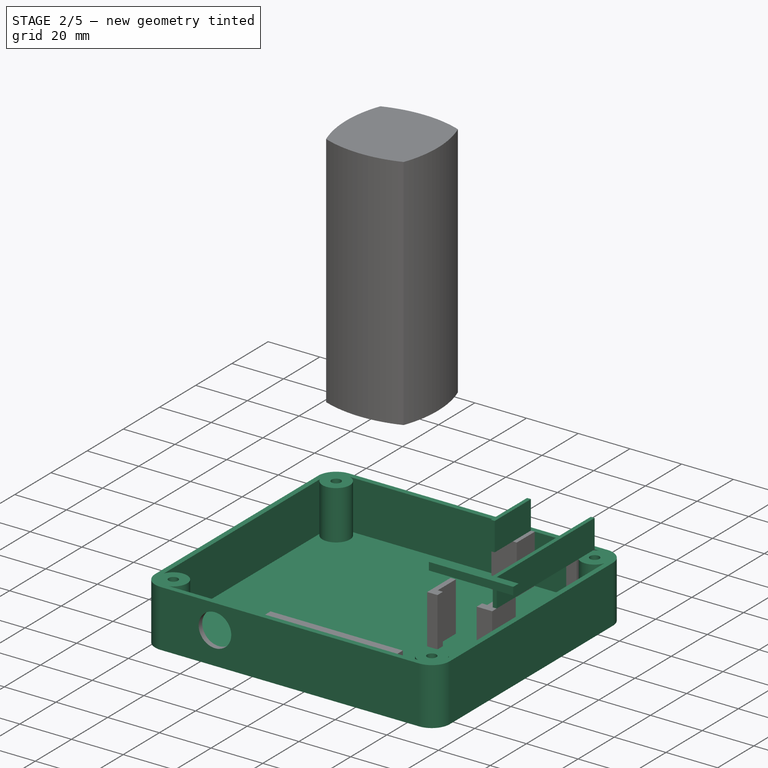
[diagram: stage 2 of 5 — iso view after this stage's code; geometry added in this stage tinted green]
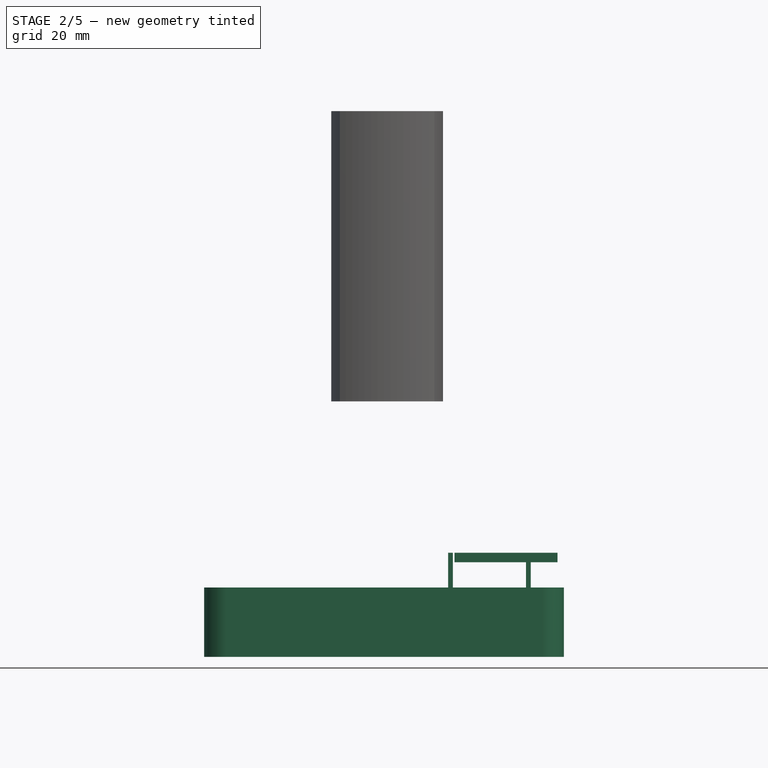
[diagram: stage 2 of 5 — front view after this stage's code; geometry added in this stage tinted green]
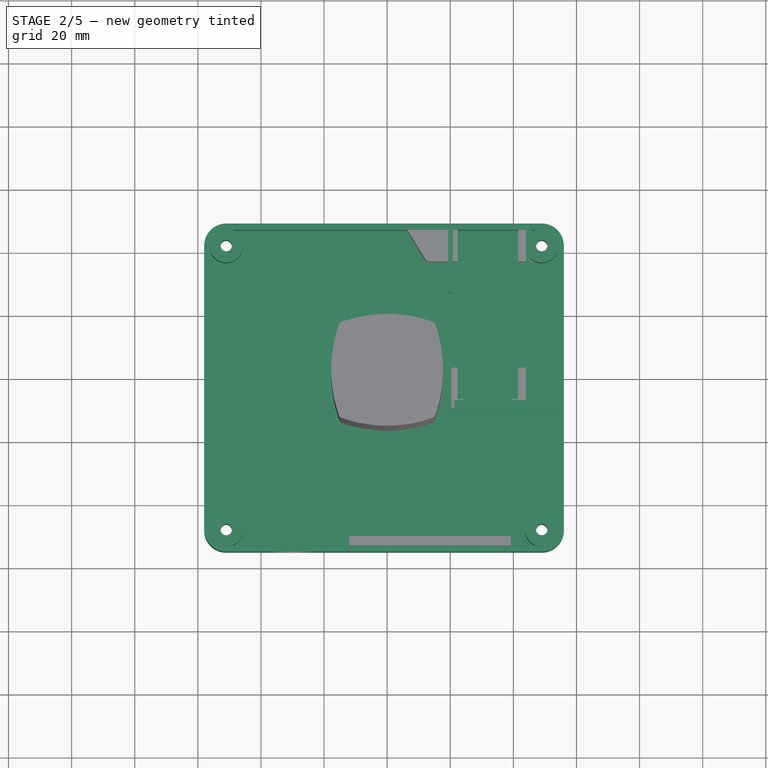
[diagram: stage 2 of 5 — top view after this stage's code; geometry added in this stage tinted green]
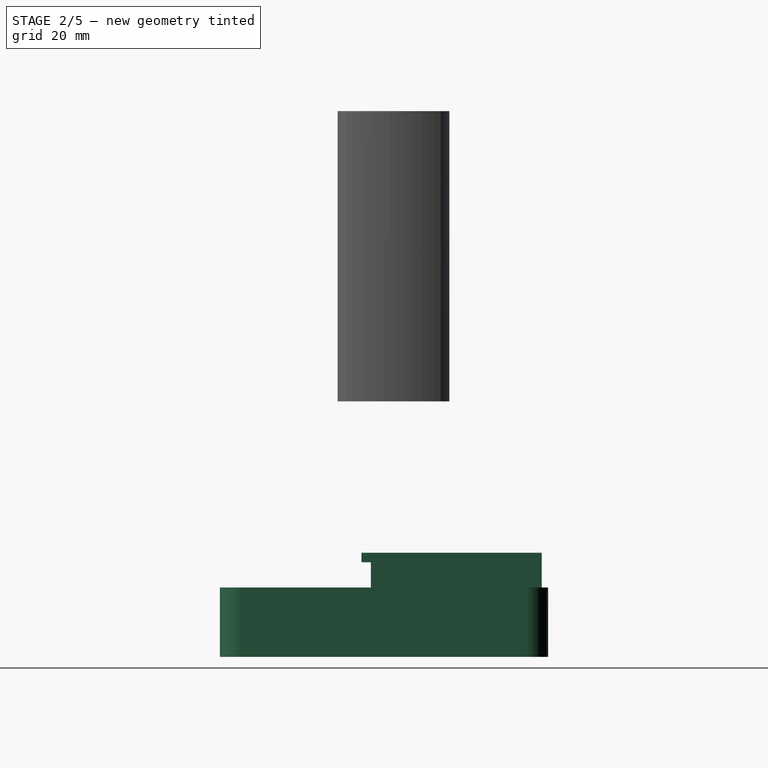
[diagram: stage 2 of 5 — right view after this stage's code; geometry added in this stage tinted green]
FEATURE [Sketcher::SketchObject] Sketch028
  FullyConstrained = false
  MapMode = 5
  sketch-geometry (64):
    g0: LineSegment StartX=49 StartY=49 StartZ=0 EndX=-51 EndY=49 EndZ=0
    g1: LineSegment StartX=-58 StartY=42 StartZ=0 EndX=-58 EndY=-48 EndZ=0
    g2: LineSegment StartX=-51 StartY=-55 StartZ=0 EndX=49 EndY=-55 EndZ=0
    g3: LineSegment StartX=56 StartY=-48 StartZ=0 EndX=56 EndY=42 EndZ=0
    g4: ArcOfCircle CenterX=49 CenterY=42 CenterZ=0 NormalX=0 NormalY=0 NormalZ=1 AngleXU=0 Radius=7 StartAngle=0 EndAngle=1.5708
    g5: ArcOfCircle CenterX=49 CenterY=-48 CenterZ=0 NormalX=0 NormalY=0 NormalZ=1 AngleXU=0 Radius=7 StartAngle=4.71239 EndAngle=6.28319
    g6: ArcOfCircle CenterX=-51 CenterY=-48 CenterZ=0 NormalX=0 NormalY=0 NormalZ=1 AngleXU=0 Radius=7 StartAngle=3.14159 EndAngle=4.71239
    g7: ArcOfCircle CenterX=-51 CenterY=42 CenterZ=0 NormalX=0 NormalY=0 NormalZ=1 AngleXU=0 Radius=7 StartAngle=1.5708 EndAngle=3.14159
    g8: Circle CenterX=-51 CenterY=42 CenterZ=0 NormalX=0 NormalY=0 NormalZ=1 AngleXU=0 Radius=1.8
    g9: Circle CenterX=49 CenterY=42 CenterZ=0 NormalX=0 NormalY=0 NormalZ=1 AngleXU=0 Radius=1.8
    g10: Circle CenterX=49 CenterY=-48 CenterZ=0 NormalX=0 NormalY=0 NormalZ=1 AngleXU=0 Radius=1.8
    g11: Circle CenterX=-51 CenterY=-48 CenterZ=0 NormalX=0 NormalY=0 NormalZ=1 AngleXU=0 Radius=1.8
    g12: ArcOfCircle CenterX=-51 CenterY=42 CenterZ=0 NormalX=0 NormalY=0 NormalZ=1 AngleXU=0 Radius=5.32089 StartAngle=3.49066 EndAngle=7.50492
    g13: ArcOfCircle CenterX=49 CenterY=42 CenterZ=0 NormalX=0 NormalY=0 NormalZ=1 AngleXU=0 Radius=5.32089 StartAngle=1.91986 EndAngle=5.93412
    g14: ArcOfCircle CenterX=49 CenterY=-48 CenterZ=0 NormalX=0 NormalY=0 NormalZ=1 AngleXU=0 Radius=5.32089 StartAngle=0.349066 EndAngle=4.36332
    g15: ArcOfCircle CenterX=-51 CenterY=-48 CenterZ=0 NormalX=0 NormalY=0 NormalZ=1 AngleXU=0 Radius=5.32089 StartAngle=5.06145 EndAngle=9.07571
    g16: LineSegment StartX=-56 StartY=-46.1801 StartZ=0 EndX=-56 EndY=40.1801 EndZ=0
    g17: LineSegment StartX=-49.1801 StartY=47 StartZ=0 EndX=47.1801 EndY=47 EndZ=0
    g18: LineSegment StartX=54 StartY=40.1801 StartZ=0 EndX=54 EndY=-46.1801 EndZ=0
    g19: LineSegment StartX=47.1801 StartY=-53 StartZ=0 EndX=-49.1801 EndY=-53 EndZ=0
    g20: LineSegment StartX=21.34 StartY=47 StartZ=0 EndX=43.5 EndY=47 EndZ=0
    g21: LineSegment StartX=43.5 StartY=47 StartZ=0 EndX=43.5 EndY=-7.14 EndZ=0
    g22: LineSegment StartX=43.5 StartY=-7.14 StartZ=0 EndX=21.34 EndY=-7.14 EndZ=0
    g23: LineSegment StartX=21.34 StartY=-7.14 StartZ=0 EndX=21.34 EndY=47 EndZ=0
    g24: LineSegment StartX=41.5 StartY=47 StartZ=0 EndX=41.5 EndY=-7.14 EndZ=0
    g25: LineSegment StartX=22.34 StartY=-7.14 StartZ=0 EndX=22.34 EndY=47 EndZ=0
    g26: LineSegment StartX=21.34 StartY=-7.14 StartZ=0 EndX=22.34 EndY=-7.14 EndZ=0
    g27: LineSegment StartX=43.5 StartY=-7.14 StartZ=0 EndX=41.5 EndY=-7.14 EndZ=0
    g28: LineSegment StartX=21.34 StartY=47 StartZ=0 EndX=-49.1801 EndY=47 EndZ=0
    g29: LineSegment StartX=43.5 StartY=47 StartZ=0 EndX=47.1801 EndY=47 EndZ=0
    g30: LineSegment StartX=41.5 StartY=47 StartZ=0 EndX=22.34 EndY=47 EndZ=0
    g31: LineSegment StartX=21.34 StartY=47 StartZ=0 EndX=22.34 EndY=47 EndZ=0
    g32: LineSegment StartX=41.5 StartY=47 StartZ=0 EndX=43.5 EndY=47 EndZ=0
    g33: LineSegment StartX=43.5 StartY=-7.14 StartZ=0 EndX=54 EndY=-7.14 EndZ=0
    g34: LineSegment StartX=54 StartY=0.86 StartZ=0 EndX=48 EndY=0.86 EndZ=0
    g35: LineSegment StartX=48 StartY=0.86 StartZ=0 EndX=43.5 EndY=7 EndZ=0
    g36: LineSegment StartX=43.5 StartY=7 StartZ=0 EndX=43.5 EndY=47 EndZ=0
    g37: LineSegment StartX=54 StartY=0.86 StartZ=0 EndX=54 EndY=-7.14 EndZ=0
    g38: LineSegment StartX=21.34 StartY=23.86 StartZ=0 EndX=6.34 EndY=47 EndZ=0
    g39: LineSegment StartX=22.34 StartY=47 StartZ=0 EndX=6.34 EndY=47 EndZ=0
    g40: LineSegment StartX=21.34 StartY=23.86 StartZ=0 EndX=21.34 EndY=-7.14 EndZ=0
    g41: LineSegment StartX=54 StartY=-7.14 StartZ=0 EndX=39.5 EndY=-7.14 EndZ=0
    g42: LineSegment StartX=39.5 StartY=-7.14 StartZ=0 EndX=39.5 EndY=-10.14 EndZ=0
    g43: LineSegment StartX=39.5 StartY=-10.14 StartZ=0 EndX=54 EndY=-10.14 EndZ=0
    g44: LineSegment StartX=54 StartY=-10.14 StartZ=0 EndX=54 EndY=-7.14 EndZ=0
    g45: LineSegment StartX=21.34 StartY=-7.14 StartZ=0 EndX=24.34 EndY=-7.14 EndZ=0
    g46: LineSegment StartX=24.34 StartY=-7.14 StartZ=0 EndX=24.34 EndY=-10.14 EndZ=0
    g47: LineSegment StartX=24.34 StartY=-10.14 StartZ=0 EndX=21.34 EndY=-10.14 EndZ=0
    g48: LineSegment StartX=21.34 StartY=-10.14 StartZ=0 EndX=21.34 EndY=-7.14 EndZ=0
    g49: LineSegment StartX=39 StartY=-53 StartZ=0 EndX=-11.8 EndY=-53 EndZ=0
    g50: LineSegment StartX=-11.8 StartY=-53 StartZ=0 EndX=-11.8 EndY=-55 EndZ=0
    g51: LineSegment StartX=-11.8 StartY=-55 StartZ=0 EndX=39 EndY=-55 EndZ=0
    g52: LineSegment StartX=39 StartY=-55 StartZ=0 EndX=39 EndY=-53 EndZ=0
    g53: LineSegment StartX=43.5 StartY=47 StartZ=0 EndX=45.5 EndY=47 EndZ=0
    g54: LineSegment StartX=45.5 StartY=47 StartZ=0 EndX=45.5 EndY=-7.14 EndZ=0
    g55: LineSegment StartX=45.5 StartY=-7.14 StartZ=0 EndX=43.5 EndY=-7.14 EndZ=0
    g56: LineSegment StartX=43.5 StartY=-7.14 StartZ=0 EndX=43.5 EndY=47 EndZ=0
    g57: LineSegment StartX=20.84 StartY=27 StartZ=0 EndX=19.34 EndY=27 EndZ=0
    g58: LineSegment StartX=19.34 StartY=27 StartZ=0 EndX=19.34 EndY=47 EndZ=0
    g59: LineSegment StartX=19.34 StartY=47 StartZ=0 EndX=20.84 EndY=47 EndZ=0
    g60: LineSegment StartX=20.84 StartY=47 StartZ=0 EndX=20.84 EndY=27 EndZ=0
    g61: LineSegment StartX=45.5 StartY=-7.14 StartZ=0 EndX=44 EndY=-7.14 EndZ=0
    g62: LineSegment StartX=44 StartY=-7.14 StartZ=0 EndX=44 EndY=47 EndZ=0
    g63: LineSegment StartX=44 StartY=47 StartZ=0 EndX=45.5 EndY=47 EndZ=0
  constraints (174):
    c: Horizontal(g0)
    c: Vertical(g1)
    c: Vertical(g3)
    c: Tangent(g0,g4) = -1.5708
    c: Tangent(g2,g5) = -1.5708
    c: Tangent(g3,g5) = -1.5708
    c: Tangent(g1,g6) = -1.5708
    c: Tangent(g2,g6) = -1.5708
    c: Tangent(g0,g7) = -1.5708
    c: Tangent(g1,g7) = -1.5708
    c: Equal(g4,g5)
    c: Equal(g5,g6)
    c: Equal(g6,g7)
    c: Radius(g7) = 7
    c: Distance(g0) = 100
    c: Distance(g1) = 90
    c: DistanceX(g6,g-1) = 51
    c: DistanceY(g6,g-1) = 55
    c: Coincident(g8,g7)
    c: Diameter(g8) = 3.6
    c: Equal(g8,g9) = 6
    c: Coincident(g9,g4)
    c: Equal(g8,g10) = 6
    c: Coincident(g10,g5)
    c: Equal(g8,g11) = 6
    c: Coincident(g11,g6)
    c: Horizontal(g2)
    c: Coincident(g12,g7)
    c: Coincident(g13,g4)
    c: Coincident(g14,g5)
    c: Coincident(g15,g6)
    c: Coincident(g16,g15)
    c: Coincident(g16,g12)
    c: Vertical(g16)
    c: Coincident(g17,g12)
    c: Coincident(g18,g13)
    c: Coincident(g18,g14)
    c: Vertical(g18)
    c: Coincident(g19,g14)
    c: Coincident(g19,g15)
    c: Horizontal(g19)
    c: DistanceY(g2,g15) = 2
    c: DistanceX(g1,g15) = 2
    c: Angle(g15) = 4.01426
    c: DistanceX(g14,g3) = 2
    c: DistanceY(g13,g0) = 2
    c: Coincident(g20,g21)
    c: Coincident(g21,g22)
    c: Coincident(g22,g23)
    c: Coincident(g23,g20)
    c: Horizontal(g20)
    c: Horizontal(g22)
    c: Vertical(g21)
    c: Vertical(g23)
    c: DistanceX(g22,g22) = 22.16
    c: DistanceY(g21,g21) = 54.14
    c: PointOnObject(g24,g20)
    c: PointOnObject(g24,g22)
    c: Vertical(g24)
    c: PointOnObject(g25,g22)
    c: PointOnObject(g25,g20)
    c: Vertical(g25)
    c: DistanceX(g20,g25) = 1
    c: DistanceX(g24,g20) = 2
    c: PointOnObject(g23,g17)
    c: Coincident(g26,g23)
    c: Coincident(g26,g25)
    c: Coincident(g27,g21)
    c: Coincident(g27,g24)
    c: Coincident(g28,g23)
    c: Coincident(g28,g12)
    c: Coincident(g29,g21)
    c: Coincident(g30,g24)
    c: Coincident(g30,g25)
    c: DistanceX(g21,g3) = 12.5
    c: Vertical(g12,g15)
    c: Equal(g15,g14)
    c: Equal(g14,g13)
    c: Coincident(g17,g13)
    c: Coincident(g29,g13)
    c: Coincident(g3,g4)
    c: Equal(g3,g1)
    c: Coincident(g31,g23)
    c: Coincident(g31,g25)
    c: Coincident(g32,g24)
    c: Coincident(g32,g21)
    c: Coincident(g33,g27)
    c: PointOnObject(g33,g18)
    c: Horizontal(g33)
    c: PointOnObject(g34,g18)
    c: Horizontal(g34)
    c: Coincident(g35,g34)
    c: PointOnObject(g35,g21)
    c: Coincident(g36,g35)
    c: Coincident(g36,g32)
    c: DistanceY(g33,g34) = 8
    c: Distance(g34) = 6
    c: Distance(g36) = 40
    c: Coincident(g37,g34)
    c: Coincident(g37,g33)
    c: PointOnObject(g38,g23)
    c: PointOnObject(g38,g17)
    c: Coincident(g39,g25)
    c: Coincident(g39,g38)
    c: Coincident(g40,g38)
    c: Coincident(g40,g26)
    c: DistanceX(g39,g39) = 16
    c: DistanceY(g40,g40) = 31
    c: Coincident(g41,g42)
    c: Coincident(g42,g43)
    c: Coincident(g43,g44)
    c: Coincident(g44,g41)
    c: Horizontal(g41)
    c: Horizontal(g43)
    c: Vertical(g42)
    c: Vertical(g44)
    c: Coincident(g41,g33)
    c: Coincident(g45,g46)
    c: Coincident(g46,g47)
    c: Coincident(g47,g48)
    c: Coincident(g48,g45)
    c: Horizontal(g45)
    c: Horizontal(g47)
    c: Vertical(g46)
    c: Vertical(g48)
    c: Coincident(g45,g22)
    c: DistanceX(g41,g24) = 2
    c: DistanceX(g25,g45) = 2
    c: Equal(g46,g42)
    c: DistanceY(g46,g46) = 3
    c: Coincident(g49,g50)
    c: Coincident(g50,g51)
    c: Coincident(g51,g52)
    c: Coincident(g52,g49)
    c: Horizontal(g49)
    c: Horizontal(g51)
    c: Vertical(g50)
    c: Vertical(g52)
    c: PointOnObject(g49,g19)
    c: PointOnObject(g50,g2)
    c: DistanceX(g49,g49) = 50.8
    c: DistanceX(g51,g3) = 17
    c: Coincident(g53,g54)
    c: Coincident(g54,g55)
    c: Coincident(g55,g56)
    c: Horizontal(g55)
    c: Vertical(g54)
    c: Vertical(g56)
    c: PointOnObject(g54,g33)
    c: Coincident(g53,g20)
    c: Coincident(g56,g53)
    c: PointOnObject(g53,g17)
    c: DistanceX(g53,g53) = 2
    c: Coincident(g57,g58)
    c: Coincident(g58,g59)
    c: Coincident(g59,g60)
    c: Coincident(g60,g57)
    c: Horizontal(g57)
    c: Horizontal(g59)
    c: Vertical(g58)
    c: Vertical(g60)
    c: PointOnObject(g58,g17)
    c: DistanceX(g59,g59) = 1.5
    c: DistanceY(g58,g58) = 20
    c: Coincident(g54,g61)
    c: PointOnObject(g61,g33)
    c: Coincident(g61,g62)
    c: PointOnObject(g62,g17)
    c: Vertical(g62)
    c: Coincident(g62,g63)
    c: Horizontal(g63)
    c: Distance(g63) = 1.5
    c: Coincident(g63,g54)
    c: Distance(g20,g59) = 0.5
FEATURE [Part::Extrusion] Extrude016
  Base = -> Sketch028
  Dir = (0,0,1)
  DirMode = 0
  FaceMakerClass = Part::FaceMakerBullseye
  LengthFwd = 11
  LengthRev = 0
  Placement = pos=(0,0,-11) rot=(0,0,1;0rad)
  Solid = true
  Symmetric = false
FEATURE [Sketcher::SketchObject] Sketch029
  FullyConstrained = false
  MapMode = 5
  sketch-geometry (53):
    g0: LineSegment StartX=49 StartY=49 StartZ=0 EndX=-51 EndY=49 EndZ=0
    g1: LineSegment StartX=-58 StartY=42 StartZ=0 EndX=-58 EndY=-48 EndZ=0
    g2: LineSegment StartX=-51 StartY=-55 StartZ=0 EndX=49 EndY=-55 EndZ=0
    g3: LineSegment StartX=56 StartY=-48 StartZ=0 EndX=56 EndY=42 EndZ=0
    g4: ArcOfCircle CenterX=49 CenterY=42 CenterZ=0 NormalX=0 NormalY=0 NormalZ=1 AngleXU=0 Radius=7 StartAngle=-9e-16 EndAngle=1.5708
    g5: ArcOfCircle CenterX=49 CenterY=-48 CenterZ=0 NormalX=0 NormalY=0 NormalZ=1 AngleXU=0 Radius=7 StartAngle=4.71239 EndAngle=6.28319
    g6: ArcOfCircle CenterX=-51 CenterY=-48 CenterZ=0 NormalX=0 NormalY=0 NormalZ=1 AngleXU=0 Radius=7 StartAngle=3.14159 EndAngle=4.71239
    g7: ArcOfCircle CenterX=-51 CenterY=42 CenterZ=0 NormalX=0 NormalY=0 NormalZ=1 AngleXU=0 Radius=7 StartAngle=1.5708 EndAngle=3.14159
    g8: Circle CenterX=-51 CenterY=42 CenterZ=0 NormalX=0 NormalY=0 NormalZ=1 AngleXU=0 Radius=1.8
    g9: Circle CenterX=49 CenterY=42 CenterZ=0 NormalX=0 NormalY=0 NormalZ=1 AngleXU=0 Radius=1.8
    g10: Circle CenterX=49 CenterY=-48 CenterZ=0 NormalX=0 NormalY=0 NormalZ=1 AngleXU=0 Radius=1.8
    g11: Circle CenterX=-51 CenterY=-48 CenterZ=0 NormalX=0 NormalY=0 NormalZ=1 AngleXU=0 Radius=1.8
    g12: ArcOfCircle CenterX=-51 CenterY=42 CenterZ=0 NormalX=0 NormalY=0 NormalZ=1 AngleXU=0 Radius=5.32089 StartAngle=3.49066 EndAngle=7.50492
    g13: ArcOfCircle CenterX=49 CenterY=42 CenterZ=0 NormalX=0 NormalY=0 NormalZ=1 AngleXU=0 Radius=5.32089 StartAngle=1.91986 EndAngle=5.93412
    g14: ArcOfCircle CenterX=49 CenterY=-48 CenterZ=0 NormalX=0 NormalY=0 NormalZ=1 AngleXU=0 Radius=5.32089 StartAngle=0.349066 EndAngle=4.36332
    g15: ArcOfCircle CenterX=-51 CenterY=-48 CenterZ=0 NormalX=0 NormalY=0 NormalZ=1 AngleXU=0 Radius=5.32089 StartAngle=5.06145 EndAngle=9.07571
    g16: LineSegment StartX=-56 StartY=-46.1801 StartZ=0 EndX=-56 EndY=40.1801 EndZ=0
    g17: LineSegment StartX=-49.1801 StartY=47 StartZ=0 EndX=47.1801 EndY=47 EndZ=0
    g18: LineSegment StartX=54 StartY=40.1801 StartZ=0 EndX=54 EndY=-46.1801 EndZ=0
    g19: LineSegment StartX=47.1801 StartY=-53 StartZ=0 EndX=-49.1801 EndY=-53 EndZ=0
    g20: LineSegment StartX=21.34 StartY=47 StartZ=0 EndX=43.5 EndY=47 EndZ=0
    g21: LineSegment StartX=43.5 StartY=47 StartZ=0 EndX=43.5 EndY=-7.14 EndZ=0
    g22: LineSegment StartX=43.5 StartY=-7.14 StartZ=0 EndX=21.34 EndY=-7.14 EndZ=0
    g23: LineSegment StartX=21.34 StartY=-7.14 StartZ=0 EndX=21.34 EndY=47 EndZ=0
    g24: LineSegment StartX=41.5 StartY=47 StartZ=0 EndX=41.5 EndY=-7.14 EndZ=0
    g25: LineSegment StartX=23.34 StartY=-7.14 StartZ=0 EndX=23.34 EndY=47 EndZ=0
    g26: LineSegment StartX=21.34 StartY=-7.14 StartZ=0 EndX=23.34 EndY=-7.14 EndZ=0
    g27: LineSegment StartX=43.5 StartY=-7.14 StartZ=0 EndX=41.5 EndY=-7.14 EndZ=0
    g28: LineSegment StartX=21.34 StartY=47 StartZ=0 EndX=-49.1801 EndY=47 EndZ=0
    g29: LineSegment StartX=43.5 StartY=47 StartZ=0 EndX=47.1801 EndY=47 EndZ=0
    g30: LineSegment StartX=41.5 StartY=47 StartZ=0 EndX=23.34 EndY=47 EndZ=0
    g31: LineSegment StartX=21.34 StartY=47 StartZ=0 EndX=23.34 EndY=47 EndZ=0
    g32: LineSegment StartX=41.5 StartY=47 StartZ=0 EndX=43.5 EndY=47 EndZ=0
    g33: LineSegment StartX=43.5 StartY=-7.14 StartZ=0 EndX=54 EndY=-7.14 EndZ=0
    g34: LineSegment StartX=54 StartY=0.86 StartZ=0 EndX=48 EndY=0.86 EndZ=0
    g35: LineSegment StartX=48 StartY=0.86 StartZ=0 EndX=43.5 EndY=7 EndZ=0
    g36: LineSegment StartX=43.5 StartY=7 StartZ=0 EndX=43.5 EndY=47 EndZ=0
    g37: LineSegment StartX=54 StartY=0.86 StartZ=0 EndX=54 EndY=-7.14 EndZ=0
    g38: LineSegment StartX=21.34 StartY=23.86 StartZ=0 EndX=7.34 EndY=47 EndZ=0
    g39: LineSegment StartX=23.34 StartY=47 StartZ=0 EndX=7.34 EndY=47 EndZ=0
    g40: LineSegment StartX=21.34 StartY=23.86 StartZ=0 EndX=21.34 EndY=-7.14 EndZ=0
    g41: LineSegment StartX=54 StartY=-7.14 StartZ=0 EndX=39.5 EndY=-7.14 EndZ=0
    g42: LineSegment StartX=39.5 StartY=-7.14 StartZ=0 EndX=39.5 EndY=-10.14 EndZ=0
    g43: LineSegment StartX=39.5 StartY=-10.14 StartZ=0 EndX=54 EndY=-10.14 EndZ=0
    g44: LineSegment StartX=54 StartY=-10.14 StartZ=0 EndX=54 EndY=-7.14 EndZ=0
    g45: LineSegment StartX=21.34 StartY=-7.14 StartZ=0 EndX=25.34 EndY=-7.14 EndZ=0
    g46: LineSegment StartX=25.34 StartY=-7.14 StartZ=0 EndX=25.34 EndY=-10.14 EndZ=0
    g47: LineSegment StartX=25.34 StartY=-10.14 StartZ=0 EndX=21.34 EndY=-10.14 EndZ=0
    g48: LineSegment StartX=21.34 StartY=-10.14 StartZ=0 EndX=21.34 EndY=-7.14 EndZ=0
    g49: LineSegment StartX=21.34 StartY=-10.14 StartZ=0 EndX=54 EndY=-10.14 EndZ=0
    g50: LineSegment StartX=54 StartY=-10.14 StartZ=0 EndX=54 EndY=-7.14 EndZ=0
    g51: LineSegment StartX=54 StartY=-7.14 StartZ=0 EndX=21.34 EndY=-7.14 EndZ=0
    g52: LineSegment StartX=21.34 StartY=-7.14 StartZ=0 EndX=21.34 EndY=-10.14 EndZ=0
  constraints (141):
    c: Horizontal(g0)
    c: Vertical(g1)
    c: Vertical(g3)
    c: Tangent(g0,g4) = -1.5708
    c: Tangent(g2,g5) = -1.5708
    c: Tangent(g3,g5) = -1.5708
    c: Tangent(g1,g6) = -1.5708
    c: Tangent(g2,g6) = -1.5708
    c: Tangent(g0,g7) = -1.5708
    c: Tangent(g1,g7) = -1.5708
    c: Equal(g4,g5)
    c: Equal(g5,g6)
    c: Equal(g6,g7)
    c: Radius(g7) = 7
    c: Distance(g0) = 100
    c: Distance(g1) = 90
    c: DistanceX(g6,g-1) = 51
    c: DistanceY(g6,g-1) = 55
    c: Coincident(g8,g7)
    c: Diameter(g8) = 3.6
    c: Equal(g8,g9) = 6
    c: Coincident(g9,g4)
    c: Equal(g8,g10) = 6
    c: Coincident(g10,g5)
    c: Equal(g8,g11) = 6
    c: Coincident(g11,g6)
    c: Horizontal(g2)
    c: Coincident(g12,g7)
    c: Coincident(g13,g4)
    c: Coincident(g14,g5)
    c: Coincident(g15,g6)
    c: Coincident(g16,g15)
    c: Coincident(g16,g12)
    c: Vertical(g16)
    c: Coincident(g17,g12)
    c: Coincident(g18,g13)
    c: Coincident(g18,g14)
    c: Vertical(g18)
    c: Coincident(g19,g14)
    c: Coincident(g19,g15)
    c: Horizontal(g19)
    c: DistanceY(g2,g15) = 2
    c: DistanceX(g1,g15) = 2
    c: Angle(g15) = 4.01426
    c: DistanceX(g14,g3) = 2
    c: DistanceY(g13,g0) = 2
    c: Coincident(g20,g21)
    c: Coincident(g21,g22)
    c: Coincident(g22,g23)
    c: Coincident(g23,g20)
    c: Horizontal(g20)
    c: Horizontal(g22)
    c: Vertical(g21)
    c: Vertical(g23)
    c: DistanceX(g22,g22) = 22.16
    c: DistanceY(g21,g21) = 54.14
    c: PointOnObject(g24,g20)
    c: PointOnObject(g24,g22)
    c: Vertical(g24)
    c: PointOnObject(g25,g22)
    c: PointOnObject(g25,g20)
    c: Vertical(g25)
    c: DistanceX(g20,g25) = 2
    c: DistanceX(g24,g20) = 2
    c: PointOnObject(g23,g17)
    c: Coincident(g26,g23)
    c: Coincident(g26,g25)
    c: Coincident(g27,g21)
    c: Coincident(g27,g24)
    c: Coincident(g28,g23)
    c: Coincident(g28,g12)
    c: Coincident(g29,g21)
    c: Horizontal(g29)
    c: Coincident(g30,g24)
    c: Coincident(g30,g25)
    c: DistanceX(g21,g3) = 12.5
    c: Vertical(g12,g15)
    c: Equal(g15,g14)
    c: Equal(g14,g13)
    c: Coincident(g17,g13)
    c: Coincident(g29,g13)
    c: Coincident(g3,g4)
    c: Equal(g3,g1)
    c: Coincident(g31,g23)
    c: Coincident(g31,g25)
    c: Coincident(g32,g24)
    c: Coincident(g32,g21)
    c: Coincident(g33,g27)
    c: PointOnObject(g33,g18)
    c: Horizontal(g33)
    c: PointOnObject(g34,g18)
    c: Horizontal(g34)
    c: Coincident(g35,g34)
    c: PointOnObject(g35,g21)
    c: Coincident(g36,g35)
    c: Coincident(g36,g32)
    c: DistanceY(g33,g34) = 8
    c: Distance(g34) = 6
    c: Distance(g36) = 40
    c: Coincident(g37,g34)
    c: Coincident(g37,g33)
    c: PointOnObject(g38,g23)
    c: PointOnObject(g38,g17)
    c: Coincident(g39,g25)
    c: Coincident(g39,g38)
    c: Coincident(g40,g38)
    c: Coincident(g40,g26)
    c: DistanceX(g39,g39) = 16
    c: DistanceY(g40,g40) = 31
    c: Coincident(g41,g42)
    c: Coincident(g42,g43)
    c: Coincident(g43,g44)
    c: Coincident(g44,g41)
    c: Horizontal(g41)
    c: Horizontal(g43)
    c: Vertical(g42)
    c: Vertical(g44)
    c: Coincident(g41,g33)
    c: Coincident(g45,g46)
    c: Coincident(g46,g47)
    c: Coincident(g47,g48)
    c: Coincident(g48,g45)
    c: Horizontal(g45)
    c: Horizontal(g47)
    c: Vertical(g46)
    c: Vertical(g48)
    c: Coincident(g45,g22)
    c: DistanceX(g41,g24) = 2
    c: DistanceX(g25,g45) = 2
    c: Equal(g46,g42)
    c: DistanceY(g46,g46) = 3
    c: Coincident(g49,g50)
    c: Coincident(g50,g51)
    c: Coincident(g51,g52)
    c: Coincident(g52,g49)
    c: Horizontal(g49)
    c: Horizontal(g51)
    c: Vertical(g50)
    c: Vertical(g52)
    c: Coincident(g49,g47)
    c: Coincident(g50,g33)
FEATURE [Part::Extrusion] Extrude017
  Base = -> Sketch029
  Dir = (0,0,1)
  DirMode = 0
  FaceMakerClass = Part::FaceMakerBullseye
  LengthFwd = 0
  LengthRev = 3
  Solid = true
  Symmetric = false
FEATURE [Sketcher::SketchObject] Sketch030
  FullyConstrained = false
  MapMode = 5
  sketch-geometry (53):
    g0: LineSegment StartX=49 StartY=49 StartZ=0 EndX=-51 EndY=49 EndZ=0
    g1: LineSegment StartX=-58 StartY=42 StartZ=0 EndX=-58 EndY=-48 EndZ=0
    g2: LineSegment StartX=-51 StartY=-55 StartZ=0 EndX=49 EndY=-55 EndZ=0
    g3: LineSegment StartX=56 StartY=-48 StartZ=0 EndX=56 EndY=42 EndZ=0
    g4: ArcOfCircle CenterX=49 CenterY=42 CenterZ=0 NormalX=0 NormalY=0 NormalZ=1 AngleXU=0 Radius=7 StartAngle=1e-16 EndAngle=1.5708
    g5: ArcOfCircle CenterX=49 CenterY=-48 CenterZ=0 NormalX=0 NormalY=0 NormalZ=1 AngleXU=0 Radius=7 StartAngle=4.71239 EndAngle=6.28319
    g6: ArcOfCircle CenterX=-51 CenterY=-48 CenterZ=0 NormalX=0 NormalY=0 NormalZ=1 AngleXU=0 Radius=7 StartAngle=3.14159 EndAngle=4.71239
    g7: ArcOfCircle CenterX=-51 CenterY=42 CenterZ=0 NormalX=0 NormalY=0 NormalZ=1 AngleXU=0 Radius=7 StartAngle=1.5708 EndAngle=3.14159
    g8: Circle CenterX=-51 CenterY=42 CenterZ=0 NormalX=0 NormalY=0 NormalZ=1 AngleXU=0 Radius=1.8
    g9: Circle CenterX=49 CenterY=42 CenterZ=0 NormalX=0 NormalY=0 NormalZ=1 AngleXU=0 Radius=1.8
    g10: Circle CenterX=49 CenterY=-48 CenterZ=0 NormalX=0 NormalY=0 NormalZ=1 AngleXU=0 Radius=1.8
    g11: Circle CenterX=-51 CenterY=-48 CenterZ=0 NormalX=0 NormalY=0 NormalZ=1 AngleXU=0 Radius=1.8
    g12: ArcOfCircle CenterX=-51 CenterY=42 CenterZ=0 NormalX=0 NormalY=0 NormalZ=1 AngleXU=0 Radius=5.32089 StartAngle=3.49066 EndAngle=7.50492
    g13: ArcOfCircle CenterX=49 CenterY=42 CenterZ=0 NormalX=0 NormalY=0 NormalZ=1 AngleXU=0 Radius=5.32089 StartAngle=1.91986 EndAngle=5.93412
    g14: ArcOfCircle CenterX=49 CenterY=-48 CenterZ=0 NormalX=0 NormalY=0 NormalZ=1 AngleXU=0 Radius=5.32089 StartAngle=0.349066 EndAngle=4.36332
    g15: ArcOfCircle CenterX=-51 CenterY=-48 CenterZ=0 NormalX=0 NormalY=0 NormalZ=1 AngleXU=0 Radius=5.32089 StartAngle=5.06145 EndAngle=9.07571
    g16: LineSegment StartX=-56 StartY=-46.1801 StartZ=0 EndX=-56 EndY=40.1801 EndZ=0
    g17: LineSegment StartX=-49.1801 StartY=47 StartZ=0 EndX=47.1801 EndY=47 EndZ=0
    g18: LineSegment StartX=54 StartY=40.1801 StartZ=0 EndX=54 EndY=-46.1801 EndZ=0
    g19: LineSegment StartX=47.1801 StartY=-53 StartZ=0 EndX=-49.1801 EndY=-53 EndZ=0
    g20: LineSegment StartX=20.34 StartY=47 StartZ=0 EndX=43.5 EndY=47 EndZ=0
    g21: LineSegment StartX=43.5 StartY=47 StartZ=0 EndX=43.5 EndY=-6.64 EndZ=0
    g22: LineSegment StartX=43.5 StartY=-6.64 StartZ=0 EndX=20.34 EndY=-6.64 EndZ=0
    g23: LineSegment StartX=20.34 StartY=-6.64 StartZ=0 EndX=20.34 EndY=47 EndZ=0
    g24: LineSegment StartX=41.5 StartY=47 StartZ=0 EndX=41.5 EndY=-6.64 EndZ=0
    g25: LineSegment StartX=22.34 StartY=-6.64 StartZ=0 EndX=22.34 EndY=47 EndZ=0
    g26: LineSegment StartX=20.34 StartY=-6.64 StartZ=0 EndX=22.34 EndY=-6.64 EndZ=0
    g27: LineSegment StartX=43.5 StartY=-6.64 StartZ=0 EndX=41.5 EndY=-6.64 EndZ=0
    g28: LineSegment StartX=20.34 StartY=47 StartZ=0 EndX=-49.1801 EndY=47 EndZ=0
    g29: LineSegment StartX=43.5 StartY=47 StartZ=0 EndX=47.1801 EndY=47 EndZ=0
    g30: LineSegment StartX=41.5 StartY=47 StartZ=0 EndX=22.34 EndY=47 EndZ=0
    g31: LineSegment StartX=20.34 StartY=47 StartZ=0 EndX=22.34 EndY=47 EndZ=0
    g32: LineSegment StartX=41.5 StartY=47 StartZ=0 EndX=43.5 EndY=47 EndZ=0
    g33: LineSegment StartX=43.5 StartY=-6.64 StartZ=0 EndX=54 EndY=-6.64 EndZ=0
    g34: LineSegment StartX=54 StartY=1.36 StartZ=0 EndX=48 EndY=1.36 EndZ=0
    g35: LineSegment StartX=48 StartY=1.36 StartZ=0 EndX=43.5 EndY=7 EndZ=0
    g36: LineSegment StartX=43.5 StartY=7 StartZ=0 EndX=43.5 EndY=47 EndZ=0
    g37: LineSegment StartX=54 StartY=1.36 StartZ=0 EndX=54 EndY=-6.64 EndZ=0
    g38: LineSegment StartX=20.34 StartY=24.36 StartZ=0 EndX=6.34 EndY=47 EndZ=0
    g39: LineSegment StartX=22.34 StartY=47 StartZ=0 EndX=6.34 EndY=47 EndZ=0
    g40: LineSegment StartX=20.34 StartY=24.36 StartZ=0 EndX=20.34 EndY=-6.64 EndZ=0
    g41: LineSegment StartX=54 StartY=-6.64 StartZ=0 EndX=39.5 EndY=-6.64 EndZ=0
    g42: LineSegment StartX=39.5 StartY=-6.64 StartZ=0 EndX=39.5 EndY=-9.64 EndZ=0
    g43: LineSegment StartX=39.5 StartY=-9.64 StartZ=0 EndX=54 EndY=-9.64 EndZ=0
    g44: LineSegment StartX=54 StartY=-9.64 StartZ=0 EndX=54 EndY=-6.64 EndZ=0
    g45: LineSegment StartX=20.34 StartY=-6.64 StartZ=0 EndX=24.34 EndY=-6.64 EndZ=0
    g46: LineSegment StartX=24.34 StartY=-6.64 StartZ=0 EndX=24.34 EndY=-9.64 EndZ=0
    g47: LineSegment StartX=24.34 StartY=-9.64 StartZ=0 EndX=20.34 EndY=-9.64 EndZ=0
    g48: LineSegment StartX=20.34 StartY=-9.64 StartZ=0 EndX=20.34 EndY=-6.64 EndZ=0
    g49: LineSegment StartX=20.34 StartY=-9.64 StartZ=0 EndX=54 EndY=-9.64 EndZ=0
    g50: LineSegment StartX=54 StartY=-9.64 StartZ=0 EndX=54 EndY=-6.64 EndZ=0
    g51: LineSegment StartX=54 StartY=-6.64 StartZ=0 EndX=20.34 EndY=-6.64 EndZ=0
    g52: LineSegment StartX=20.34 StartY=-6.64 StartZ=0 EndX=20.34 EndY=-9.64 EndZ=0
  constraints (141):
    c: Horizontal(g0)
    c: Vertical(g1)
    c: Vertical(g3)
    c: Tangent(g0,g4) = -1.5708
    c: Tangent(g2,g5) = -1.5708
    c: Tangent(g3,g5) = -1.5708
    c: Tangent(g1,g6) = -1.5708
    c: Tangent(g2,g6) = -1.5708
    c: Tangent(g0,g7) = -1.5708
    c: Tangent(g1,g7) = -1.5708
    c: Equal(g4,g5)
    c: Equal(g5,g6)
    c: Equal(g6,g7)
    c: Radius(g7) = 7
    c: Distance(g0) = 100
    c: Distance(g1) = 90
    c: DistanceX(g6,g-1) = 51
    c: DistanceY(g6,g-1) = 55
    c: Coincident(g8,g7)
    c: Diameter(g8) = 3.6
    c: Equal(g8,g9) = 6
    c: Coincident(g9,g4)
    c: Equal(g8,g10) = 6
    c: Coincident(g10,g5)
    c: Equal(g8,g11) = 6
    c: Coincident(g11,g6)
    c: Horizontal(g2)
    c: Coincident(g12,g7)
    c: Coincident(g13,g4)
    c: Coincident(g14,g5)
    c: Coincident(g15,g6)
    c: Coincident(g16,g15)
    c: Coincident(g16,g12)
    c: Vertical(g16)
    c: Coincident(g17,g12)
    c: Coincident(g18,g13)
    c: Coincident(g18,g14)
    c: Vertical(g18)
    c: Coincident(g19,g14)
    c: Coincident(g19,g15)
    c: Horizontal(g19)
    c: DistanceY(g2,g15) = 2
    c: DistanceX(g1,g15) = 2
    c: Angle(g15) = 4.01426
    c: DistanceX(g14,g3) = 2
    c: DistanceY(g13,g0) = 2
    c: Coincident(g20,g21)
    c: Coincident(g21,g22)
    c: Coincident(g22,g23)
    c: Coincident(g23,g20)
    c: Horizontal(g20)
    c: Horizontal(g22)
    c: Vertical(g21)
    c: Vertical(g23)
    c: DistanceX(g22,g22) = 23.16
    c: DistanceY(g21,g21) = 53.64
    c: PointOnObject(g24,g20)
    c: PointOnObject(g24,g22)
    c: Vertical(g24)
    c: PointOnObject(g25,g22)
    c: PointOnObject(g25,g20)
    c: Vertical(g25)
    c: DistanceX(g20,g25) = 2
    c: DistanceX(g24,g20) = 2
    c: PointOnObject(g23,g17)
    c: Coincident(g26,g23)
    c: Coincident(g26,g25)
    c: Coincident(g27,g21)
    c: Coincident(g27,g24)
    c: Coincident(g28,g23)
    c: Coincident(g28,g12)
    c: Coincident(g29,g21)
    c: Horizontal(g29)
    c: Coincident(g30,g24)
    c: Coincident(g30,g25)
    c: DistanceX(g21,g3) = 12.5
    c: Vertical(g12,g15)
    c: Equal(g15,g14)
    c: Equal(g14,g13)
    c: Coincident(g17,g13)
    c: Coincident(g29,g13)
    c: Coincident(g3,g4)
    c: Equal(g3,g1)
    c: Coincident(g31,g23)
    c: Coincident(g31,g25)
    c: Coincident(g32,g24)
    c: Coincident(g32,g21)
    c: Coincident(g33,g27)
    c: PointOnObject(g33,g18)
    c: Horizontal(g33)
    c: PointOnObject(g34,g18)
    c: Horizontal(g34)
    c: Coincident(g35,g34)
    c: PointOnObject(g35,g21)
    c: Coincident(g36,g35)
    c: Coincident(g36,g32)
    c: DistanceY(g33,g34) = 8
    c: Distance(g34) = 6
    c: Distance(g36) = 40
    c: Coincident(g37,g34)
    c: Coincident(g37,g33)
    c: PointOnObject(g38,g23)
    c: PointOnObject(g38,g17)
    c: Coincident(g39,g25)
    c: Coincident(g39,g38)
    c: Coincident(g40,g38)
    c: Coincident(g40,g26)
    c: DistanceX(g39,g39) = 16
    c: DistanceY(g40,g40) = 31
    c: Coincident(g41,g42)
    c: Coincident(g42,g43)
    c: Coincident(g43,g44)
    c: Coincident(g44,g41)
    c: Horizontal(g41)
    c: Horizontal(g43)
    c: Vertical(g42)
    c: Vertical(g44)
    c: Coincident(g41,g33)
    c: Coincident(g45,g46)
    c: Coincident(g46,g47)
    c: Coincident(g47,g48)
    c: Coincident(g48,g45)
    c: Horizontal(g45)
    c: Horizontal(g47)
    c: Vertical(g46)
    c: Vertical(g48)
    c: Coincident(g45,g22)
    c: DistanceX(g41,g24) = 2
    c: DistanceX(g25,g45) = 2
    c: Equal(g46,g42)
    c: DistanceY(g46,g46) = 3
    c: Coincident(g49,g50)
    c: Coincident(g50,g51)
    c: Coincident(g51,g52)
    c: Coincident(g52,g49)
    c: Horizontal(g49)
    c: Horizontal(g51)
    c: Vertical(g50)
    c: Vertical(g52)
    c: Coincident(g49,g47)
    c: Coincident(g50,g33)
FEATURE [Part::Extrusion] Extrude018
  Base = -> Sketch030
  Dir = (0,0,1)
  DirMode = 0
  FaceMakerClass = Part::FaceMakerBullseye
  LengthFwd = 0
  LengthRev = 3
  Placement = pos=(0,0,-30) rot=(0,0,1;0rad)
  Solid = true
  Symmetric = false
FEATURE [Sketcher::SketchObject] Sketch031
  FullyConstrained = false
  MapMode = 5
  sketch-geometry (53):
    g0: LineSegment StartX=49 StartY=49 StartZ=0 EndX=-51 EndY=49 EndZ=0
    g1: LineSegment StartX=-58 StartY=42 StartZ=0 EndX=-58 EndY=-48 EndZ=0
    g2: LineSegment StartX=-51 StartY=-55 StartZ=0 EndX=49 EndY=-55 EndZ=0
    g3: LineSegment StartX=56 StartY=-48 StartZ=0 EndX=56 EndY=42 EndZ=0
    g4: ArcOfCircle CenterX=49 CenterY=42 CenterZ=0 NormalX=0 NormalY=0 NormalZ=1 AngleXU=0 Radius=7 StartAngle=1e-16 EndAngle=1.5708
    g5: ArcOfCircle CenterX=49 CenterY=-48 CenterZ=0 NormalX=0 NormalY=0 NormalZ=1 AngleXU=0 Radius=7 StartAngle=4.71239 EndAngle=6.28319
    g6: ArcOfCircle CenterX=-51 CenterY=-48 CenterZ=0 NormalX=0 NormalY=0 NormalZ=1 AngleXU=0 Radius=7 StartAngle=3.14159 EndAngle=4.71239
    g7: ArcOfCircle CenterX=-51 CenterY=42 CenterZ=0 NormalX=0 NormalY=0 NormalZ=1 AngleXU=0 Radius=7 StartAngle=1.5708 EndAngle=3.14159
    g8: Circle CenterX=-51 CenterY=42 CenterZ=0 NormalX=0 NormalY=0 NormalZ=1 AngleXU=0 Radius=1.8
    g9: Circle CenterX=49 CenterY=42 CenterZ=0 NormalX=0 NormalY=0 NormalZ=1 AngleXU=0 Radius=1.8
    g10: Circle CenterX=49 CenterY=-48 CenterZ=0 NormalX=0 NormalY=0 NormalZ=1 AngleXU=0 Radius=1.8
    g11: Circle CenterX=-51 CenterY=-48 CenterZ=0 NormalX=0 NormalY=0 NormalZ=1 AngleXU=0 Radius=1.8
    g12: ArcOfCircle CenterX=-51 CenterY=42 CenterZ=0 NormalX=0 NormalY=0 NormalZ=1 AngleXU=0 Radius=5.32089 StartAngle=3.49066 EndAngle=7.50492
    g13: ArcOfCircle CenterX=49 CenterY=42 CenterZ=0 NormalX=0 NormalY=0 NormalZ=1 AngleXU=0 Radius=5.32089 StartAngle=1.91986 EndAngle=5.93412
    g14: ArcOfCircle CenterX=49 CenterY=-48 CenterZ=0 NormalX=0 NormalY=0 NormalZ=1 AngleXU=0 Radius=5.32089 StartAngle=0.349066 EndAngle=4.36332
    g15: ArcOfCircle CenterX=-51 CenterY=-48 CenterZ=0 NormalX=0 NormalY=0 NormalZ=1 AngleXU=0 Radius=5.32089 StartAngle=5.06145 EndAngle=9.07571
    g16: LineSegment StartX=-56 StartY=-46.1801 StartZ=0 EndX=-56 EndY=40.1801 EndZ=0
    g17: LineSegment StartX=-49.1801 StartY=47 StartZ=0 EndX=47.1801 EndY=47 EndZ=0
    g18: LineSegment StartX=54 StartY=40.1801 StartZ=0 EndX=54 EndY=-46.1801 EndZ=0
    g19: LineSegment StartX=47.1801 StartY=-53 StartZ=0 EndX=-49.1801 EndY=-53 EndZ=0
    g20: LineSegment StartX=20.34 StartY=47 StartZ=0 EndX=43.5 EndY=47 EndZ=0
    g21: LineSegment StartX=43.5 StartY=47 StartZ=0 EndX=43.5 EndY=-6.64 EndZ=0
    g22: LineSegment StartX=43.5 StartY=-6.64 StartZ=0 EndX=20.34 EndY=-6.64 EndZ=0
    g23: LineSegment StartX=20.34 StartY=-6.64 StartZ=0 EndX=20.34 EndY=47 EndZ=0
    g24: LineSegment StartX=41.5 StartY=47 StartZ=0 EndX=41.5 EndY=-6.64 EndZ=0
    g25: LineSegment StartX=22.34 StartY=-6.64 StartZ=0 EndX=22.34 EndY=47 EndZ=0
    g26: LineSegment StartX=20.34 StartY=-6.64 StartZ=0 EndX=22.34 EndY=-6.64 EndZ=0
    g27: LineSegment StartX=43.5 StartY=-6.64 StartZ=0 EndX=41.5 EndY=-6.64 EndZ=0
    g28: LineSegment StartX=20.34 StartY=47 StartZ=0 EndX=-49.1801 EndY=47 EndZ=0
    g29: LineSegment StartX=43.5 StartY=47 StartZ=0 EndX=47.1801 EndY=47 EndZ=0
    g30: LineSegment StartX=41.5 StartY=47 StartZ=0 EndX=22.34 EndY=47 EndZ=0
    g31: LineSegment StartX=20.34 StartY=47 StartZ=0 EndX=22.34 EndY=47 EndZ=0
    g32: LineSegment StartX=41.5 StartY=47 StartZ=0 EndX=43.5 EndY=47 EndZ=0
    g33: LineSegment StartX=43.5 StartY=-6.64 StartZ=0 EndX=54 EndY=-6.64 EndZ=0
    g34: LineSegment StartX=54 StartY=1.36 StartZ=0 EndX=48 EndY=1.36 EndZ=0
    g35: LineSegment StartX=48 StartY=1.36 StartZ=0 EndX=43.5 EndY=7 EndZ=0
    g36: LineSegment StartX=43.5 StartY=7 StartZ=0 EndX=43.5 EndY=47 EndZ=0
    g37: LineSegment StartX=54 StartY=1.36 StartZ=0 EndX=54 EndY=-6.64 EndZ=0
    g38: LineSegment StartX=20.34 StartY=24.36 StartZ=0 EndX=6.34 EndY=47 EndZ=0
    g39: LineSegment StartX=22.34 StartY=47 StartZ=0 EndX=6.34 EndY=47 EndZ=0
    g40: LineSegment StartX=20.34 StartY=24.36 StartZ=0 EndX=20.34 EndY=-6.64 EndZ=0
    g41: LineSegment StartX=54 StartY=-6.64 StartZ=0 EndX=39.5 EndY=-6.64 EndZ=0
    g42: LineSegment StartX=39.5 StartY=-6.64 StartZ=0 EndX=39.5 EndY=-9.64 EndZ=0
    g43: LineSegment StartX=39.5 StartY=-9.64 StartZ=0 EndX=54 EndY=-9.64 EndZ=0
    g44: LineSegment StartX=54 StartY=-9.64 StartZ=0 EndX=54 EndY=-6.64 EndZ=0
    g45: LineSegment StartX=20.34 StartY=-6.64 StartZ=0 EndX=24.34 EndY=-6.64 EndZ=0
    g46: LineSegment StartX=24.34 StartY=-6.64 StartZ=0 EndX=24.34 EndY=-9.64 EndZ=0
    g47: LineSegment StartX=24.34 StartY=-9.64 StartZ=0 EndX=20.34 EndY=-9.64 EndZ=0
    g48: LineSegment StartX=20.34 StartY=-9.64 StartZ=0 EndX=20.34 EndY=-6.64 EndZ=0
    g49: LineSegment StartX=20.34 StartY=-9.64 StartZ=0 EndX=54 EndY=-9.64 EndZ=0
    g50: LineSegment StartX=54 StartY=-9.64 StartZ=0 EndX=54 EndY=-6.64 EndZ=0
    g51: LineSegment StartX=54 StartY=-6.64 StartZ=0 EndX=20.34 EndY=-6.64 EndZ=0
    g52: LineSegment StartX=20.34 StartY=-6.64 StartZ=0 EndX=20.34 EndY=-9.64 EndZ=0
  constraints (141):
    c: Horizontal(g0)
    c: Vertical(g1)
    c: Vertical(g3)
    c: Tangent(g0,g4) = -1.5708
    c: Tangent(g2,g5) = -1.5708
    c: Tangent(g3,g5) = -1.5708
    c: Tangent(g1,g6) = -1.5708
    c: Tangent(g2,g6) = -1.5708
    c: Tangent(g0,g7) = -1.5708
    c: Tangent(g1,g7) = -1.5708
    c: Equal(g4,g5)
    c: Equal(g5,g6)
    c: Equal(g6,g7)
    c: Radius(g7) = 7
    c: Distance(g0) = 100
    c: Distance(g1) = 90
    c: DistanceX(g6,g-1) = 51
    c: DistanceY(g6,g-1) = 55
    c: Coincident(g8,g7)
    c: Diameter(g8) = 3.6
    c: Equal(g8,g9) = 6
    c: Coincident(g9,g4)
    c: Equal(g8,g10) = 6
    c: Coincident(g10,g5)
    c: Equal(g8,g11) = 6
    c: Coincident(g11,g6)
    c: Horizontal(g2)
    c: Coincident(g12,g7)
    c: Coincident(g13,g4)
    c: Coincident(g14,g5)
    c: Coincident(g15,g6)
    c: Coincident(g16,g15)
    c: Coincident(g16,g12)
    c: Vertical(g16)
    c: Coincident(g17,g12)
    c: Coincident(g18,g13)
    c: Coincident(g18,g14)
    c: Vertical(g18)
    c: Coincident(g19,g14)
    c: Coincident(g19,g15)
    c: Horizontal(g19)
    c: DistanceY(g2,g15) = 2
    c: DistanceX(g1,g15) = 2
    c: Angle(g15) = 4.01426
    c: DistanceX(g14,g3) = 2
    c: DistanceY(g13,g0) = 2
    c: Coincident(g20,g21)
    c: Coincident(g21,g22)
    c: Coincident(g22,g23)
    c: Coincident(g23,g20)
    c: Horizontal(g20)
    c: Horizontal(g22)
    c: Vertical(g21)
    c: Vertical(g23)
    c: DistanceX(g22,g22) = 23.16
    c: DistanceY(g21,g21) = 53.64
    c: PointOnObject(g24,g20)
    c: PointOnObject(g24,g22)
    c: Vertical(g24)
    c: PointOnObject(g25,g22)
    c: PointOnObject(g25,g20)
    c: Vertical(g25)
    c: DistanceX(g20,g25) = 2
    c: DistanceX(g24,g20) = 2
    c: PointOnObject(g23,g17)
    c: Coincident(g26,g23)
    c: Coincident(g26,g25)
    c: Coincident(g27,g21)
    c: Coincident(g27,g24)
    c: Coincident(g28,g23)
    c: Coincident(g28,g12)
    c: Coincident(g29,g21)
    c: Horizontal(g29)
    c: Coincident(g30,g24)
    c: Coincident(g30,g25)
    c: DistanceX(g21,g3) = 12.5
    c: Vertical(g12,g15)
    c: Equal(g15,g14)
    c: Equal(g14,g13)
    c: Coincident(g17,g13)
    c: Coincident(g29,g13)
    c: Coincident(g3,g4)
    c: Equal(g3,g1)
    c: Coincident(g31,g23)
    c: Coincident(g31,g25)
    c: Coincident(g32,g24)
    c: Coincident(g32,g21)
    c: Coincident(g33,g27)
    c: PointOnObject(g33,g18)
    c: Horizontal(g33)
    c: PointOnObject(g34,g18)
    c: Horizontal(g34)
    c: Coincident(g35,g34)
    c: PointOnObject(g35,g21)
    c: Coincident(g36,g35)
    c: Coincident(g36,g32)
    c: DistanceY(g33,g34) = 8
    c: Distance(g34) = 6
    c: Distance(g36) = 40
    c: Coincident(g37,g34)
    c: Coincident(g37,g33)
    c: PointOnObject(g38,g23)
    c: PointOnObject(g38,g17)
    c: Coincident(g39,g25)
    c: Coincident(g39,g38)
    c: Coincident(g40,g38)
    c: Coincident(g40,g26)
    c: DistanceX(g39,g39) = 16
    c: DistanceY(g40,g40) = 31
    c: Coincident(g41,g42)
    c: Coincident(g42,g43)
    c: Coincident(g43,g44)
    c: Coincident(g44,g41)
    c: Horizontal(g41)
    c: Horizontal(g43)
    c: Vertical(g42)
    c: Vertical(g44)
    c: Coincident(g41,g33)
    c: Coincident(g45,g46)
    c: Coincident(g46,g47)
    c: Coincident(g47,g48)
    c: Coincident(g48,g45)
    c: Horizontal(g45)
    c: Horizontal(g47)
    c: Vertical(g46)
    c: Vertical(g48)
    c: Coincident(g45,g22)
    c: DistanceX(g41,g24) = 2
    c: DistanceX(g25,g45) = 2
    c: Equal(g46,g42)
    c: DistanceY(g46,g46) = 3
    c: Coincident(g49,g50)
    c: Coincident(g50,g51)
    c: Coincident(g51,g52)
    c: Coincident(g52,g49)
    c: Horizontal(g49)
    c: Horizontal(g51)
    c: Vertical(g50)
    c: Vertical(g52)
    c: Coincident(g49,g47)
    c: Coincident(g50,g33)
FEATURE [Part::Extrusion] Extrude019
  Base = -> Sketch031
  Dir = (0,0,1)
  DirMode = 0
  FaceMakerClass = Part::FaceMakerBullseye
  LengthFwd = 19
  LengthRev = 0
  Placement = pos=(0,0,-30) rot=(0,0,1;0rad)
  Solid = true
  Symmetric = false
FEATURE [Part::Cut] Cut002
  Base = -> Extrude019
  Tool = -> Extrude020
FEATURE [Part::MultiFuse] Fusion003  label="Fusion Box Bottom"
  Shapes = -> [Extrude018,Cut002,Extrude021,Extrude022]
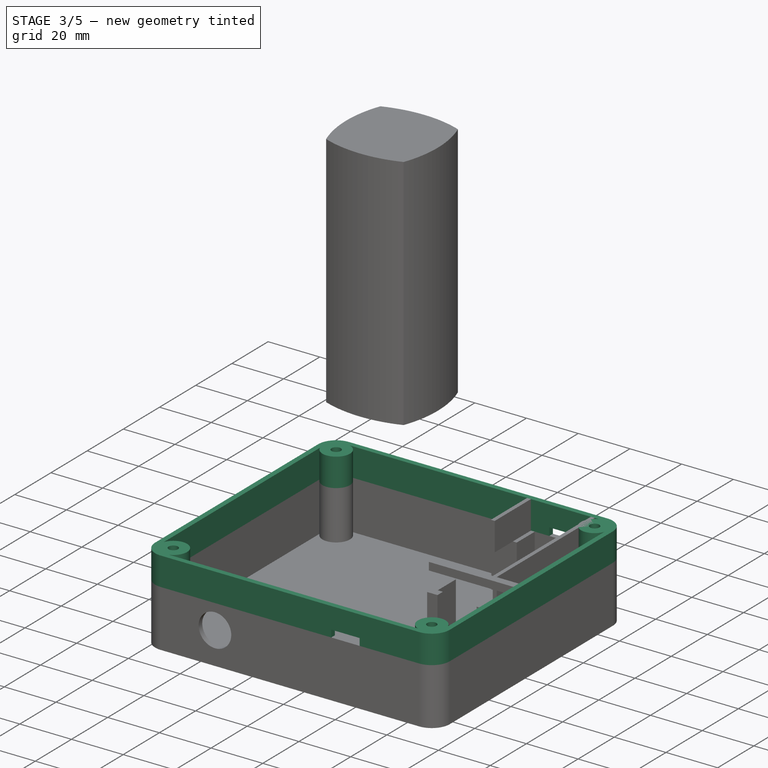
[diagram: stage 3 of 5 — iso view after this stage's code; geometry added in this stage tinted green]
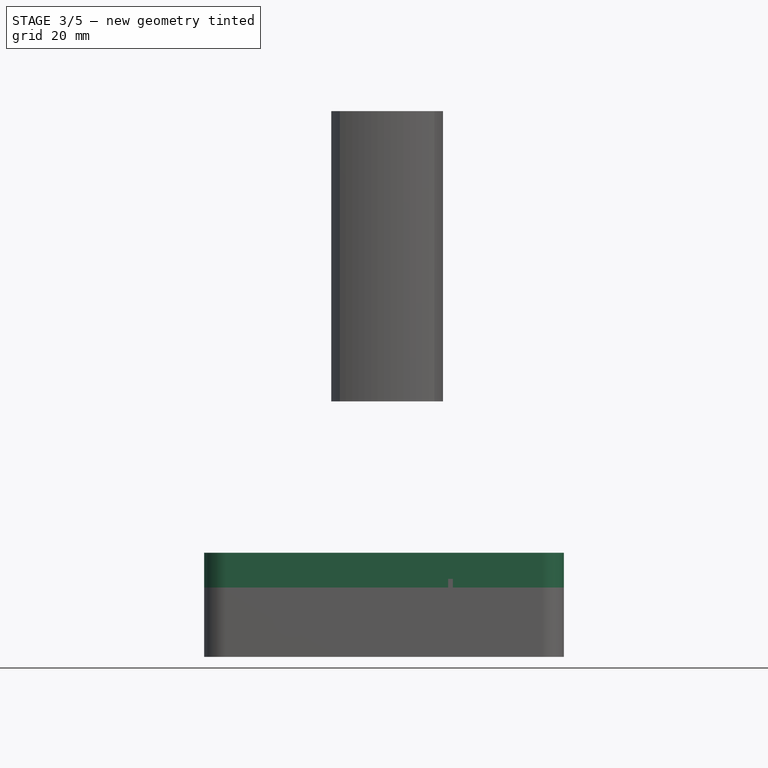
[diagram: stage 3 of 5 — front view after this stage's code; geometry added in this stage tinted green]
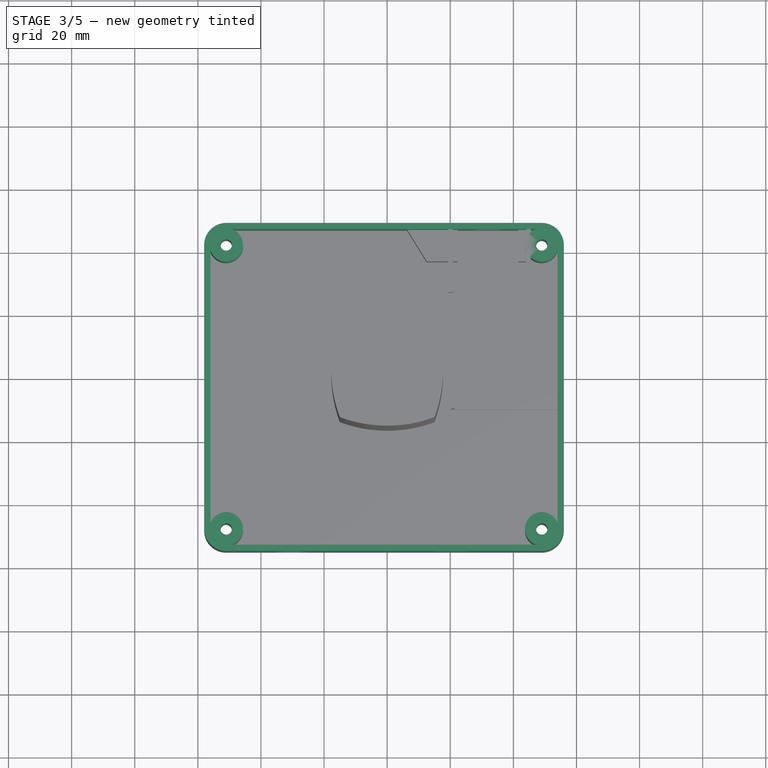
[diagram: stage 3 of 5 — top view after this stage's code; geometry added in this stage tinted green]
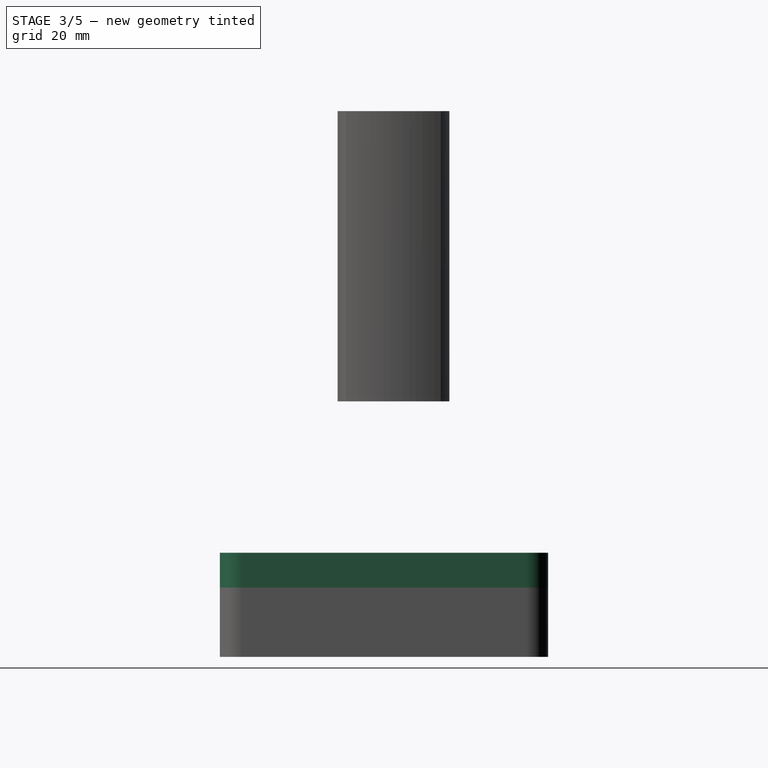
[diagram: stage 3 of 5 — right view after this stage's code; geometry added in this stage tinted green]
FEATURE [Sketcher::SketchObject] Sketch023
  FullyConstrained = false
  MapMode = 5
  sketch-geometry (41):
    g0: LineSegment StartX=49 StartY=49 StartZ=0 EndX=-51 EndY=49 EndZ=0
    g1: LineSegment StartX=-58 StartY=42 StartZ=0 EndX=-58 EndY=-48 EndZ=0
    g2: LineSegment StartX=-51 StartY=-55 StartZ=0 EndX=49 EndY=-55 EndZ=0
    g3: LineSegment StartX=56 StartY=-48 StartZ=0 EndX=56 EndY=42 EndZ=0
    g4: ArcOfCircle CenterX=49 CenterY=42 CenterZ=0 NormalX=0 NormalY=0 NormalZ=1 AngleXU=0 Radius=7 StartAngle=0 EndAngle=1.5708
    g5: ArcOfCircle CenterX=49 CenterY=-48 CenterZ=0 NormalX=0 NormalY=0 NormalZ=1 AngleXU=0 Radius=7 StartAngle=4.71239 EndAngle=6.28319
    g6: ArcOfCircle CenterX=-51 CenterY=-48 CenterZ=0 NormalX=0 NormalY=0 NormalZ=1 AngleXU=0 Radius=7 StartAngle=3.14159 EndAngle=4.71239
    g7: ArcOfCircle CenterX=-51 CenterY=42 CenterZ=0 NormalX=0 NormalY=0 NormalZ=1 AngleXU=0 Radius=7 StartAngle=1.5708 EndAngle=3.14159
    g8: Circle CenterX=-51 CenterY=42 CenterZ=0 NormalX=0 NormalY=0 NormalZ=1 AngleXU=0 Radius=1.8
    g9: Circle CenterX=49 CenterY=42 CenterZ=0 NormalX=0 NormalY=0 NormalZ=1 AngleXU=0 Radius=1.8
    g10: Circle CenterX=49 CenterY=-48 CenterZ=0 NormalX=0 NormalY=0 NormalZ=1 AngleXU=0 Radius=1.8
    g11: Circle CenterX=-51 CenterY=-48 CenterZ=0 NormalX=0 NormalY=0 NormalZ=1 AngleXU=0 Radius=1.8
    g12: ArcOfCircle CenterX=-51 CenterY=42 CenterZ=0 NormalX=0 NormalY=0 NormalZ=1 AngleXU=0 Radius=5.32089 StartAngle=3.49066 EndAngle=7.50492
    g13: ArcOfCircle CenterX=49 CenterY=42 CenterZ=0 NormalX=0 NormalY=0 NormalZ=1 AngleXU=0 Radius=5.32089 StartAngle=1.91986 EndAngle=5.93412
    g14: ArcOfCircle CenterX=49 CenterY=-48 CenterZ=0 NormalX=0 NormalY=0 NormalZ=1 AngleXU=0 Radius=5.32089 StartAngle=0.349066 EndAngle=4.36332
    g15: ArcOfCircle CenterX=-51 CenterY=-48 CenterZ=0 NormalX=0 NormalY=0 NormalZ=1 AngleXU=0 Radius=5.32089 StartAngle=5.06145 EndAngle=9.07571
    g16: LineSegment StartX=-56 StartY=-46.1801 StartZ=0 EndX=-56 EndY=40.1801 EndZ=0
    g17: LineSegment StartX=-49.1801 StartY=47 StartZ=0 EndX=47.1801 EndY=47 EndZ=0
    g18: LineSegment StartX=54 StartY=40.1801 StartZ=0 EndX=54 EndY=-46.1801 EndZ=0
    g19: LineSegment StartX=47.1801 StartY=-53 StartZ=0 EndX=-49.1801 EndY=-53 EndZ=0
    g20: LineSegment StartX=21.34 StartY=47 StartZ=0 EndX=44.5 EndY=47 EndZ=0
    g21: LineSegment StartX=44.5 StartY=47 StartZ=0 EndX=44.5 EndY=-7.14 EndZ=0
    g22: LineSegment StartX=44.5 StartY=-7.14 StartZ=0 EndX=21.34 EndY=-7.14 EndZ=0
    g23: LineSegment StartX=21.34 StartY=-7.14 StartZ=0 EndX=21.34 EndY=47 EndZ=0
    g24: LineSegment StartX=41.5 StartY=47 StartZ=0 EndX=41.5 EndY=-7.14 EndZ=0
    g25: LineSegment StartX=22.34 StartY=-7.14 StartZ=0 EndX=22.34 EndY=47 EndZ=0
    g26: LineSegment StartX=21.34 StartY=-7.14 StartZ=0 EndX=22.34 EndY=-7.14 EndZ=0
    g27: LineSegment StartX=44.5 StartY=-7.14 StartZ=0 EndX=41.5 EndY=-7.14 EndZ=0
    g28: LineSegment StartX=21.34 StartY=47 StartZ=0 EndX=-49.1801 EndY=47 EndZ=0
    g29: LineSegment StartX=44.5 StartY=47 StartZ=0 EndX=47.1801 EndY=47 EndZ=0
    g30: LineSegment StartX=41.5 StartY=47 StartZ=0 EndX=22.34 EndY=47 EndZ=0
    g31: LineSegment StartX=21.34 StartY=47 StartZ=0 EndX=22.34 EndY=47 EndZ=0
    g32: LineSegment StartX=41.5 StartY=47 StartZ=0 EndX=44.5 EndY=47 EndZ=0
    g33: LineSegment StartX=44.5 StartY=-7.14 StartZ=0 EndX=54 EndY=-7.14 EndZ=0
    g34: LineSegment StartX=54 StartY=0.86 StartZ=0 EndX=48 EndY=0.86 EndZ=0
    g35: LineSegment StartX=48 StartY=0.86 StartZ=0 EndX=44.5 EndY=7 EndZ=0
    g36: LineSegment StartX=44.5 StartY=7 StartZ=0 EndX=44.5 EndY=47 EndZ=0
    g37: LineSegment StartX=54 StartY=0.86 StartZ=0 EndX=54 EndY=-7.14 EndZ=0
    g38: LineSegment StartX=21.34 StartY=23.86 StartZ=0 EndX=6.34 EndY=47 EndZ=0
    g39: LineSegment StartX=22.34 StartY=47 StartZ=0 EndX=6.34 EndY=47 EndZ=0
    g40: LineSegment StartX=21.34 StartY=23.86 StartZ=0 EndX=21.34 EndY=-7.14 EndZ=0
  constraints (109):
    c: Horizontal(g0)
    c: Vertical(g1)
    c: Vertical(g3)
    c: Tangent(g0,g4) = -1.5708
    c: Tangent(g2,g5) = -1.5708
    c: Tangent(g3,g5) = -1.5708
    c: Tangent(g1,g6) = -1.5708
    c: Tangent(g2,g6) = -1.5708
    c: Tangent(g0,g7) = -1.5708
    c: Tangent(g1,g7) = -1.5708
    c: Equal(g4,g5)
    c: Equal(g5,g6)
    c: Equal(g6,g7)
    c: Radius(g7) = 7
    c: Distance(g0) = 100
    c: Distance(g1) = 90
    c: DistanceX(g6,g-1) = 51
    c: DistanceY(g6,g-1) = 55
    c: Coincident(g8,g7)
    c: Diameter(g8) = 3.6
    c: Equal(g8,g9) = 6
    c: Coincident(g9,g4)
    c: Equal(g8,g10) = 6
    c: Coincident(g10,g5)
    c: Equal(g8,g11) = 6
    c: Coincident(g11,g6)
    c: Horizontal(g2)
    c: Coincident(g12,g7)
    c: Coincident(g13,g4)
    c: Coincident(g14,g5)
    c: Coincident(g15,g6)
    c: Coincident(g16,g15)
    c: Coincident(g16,g12)
    c: Vertical(g16)
    c: Coincident(g17,g12)
    c: Coincident(g18,g13)
    c: Coincident(g18,g14)
    c: Vertical(g18)
    c: Coincident(g19,g14)
    c: Coincident(g19,g15)
    c: Horizontal(g19)
    c: DistanceY(g2,g15) = 2
    c: DistanceX(g1,g15) = 2
    c: Angle(g15) = 4.01426
    c: DistanceX(g14,g3) = 2
    c: DistanceY(g13,g0) = 2
    c: Coincident(g20,g21)
    c: Coincident(g21,g22)
    c: Coincident(g22,g23)
    c: Coincident(g23,g20)
    c: Horizontal(g20)
    c: Horizontal(g22)
    c: Vertical(g21)
    c: Vertical(g23)
    c: DistanceX(g22,g22) = 23.16
    c: DistanceY(g21,g21) = 54.14
    c: PointOnObject(g24,g20)
    c: PointOnObject(g24,g22)
    c: Vertical(g24)
    c: PointOnObject(g25,g22)
    c: PointOnObject(g25,g20)
    c: Vertical(g25)
    c: DistanceX(g20,g25) = 1
    c: DistanceX(g24,g20) = 3
    c: PointOnObject(g23,g17)
    c: Coincident(g26,g23)
    c: Coincident(g26,g25)
    c: Coincident(g27,g21)
    c: Coincident(g27,g24)
    c: Coincident(g28,g23)
    c: Coincident(g28,g12)
    c: Coincident(g29,g21)
    c: Horizontal(g29)
    c: Coincident(g30,g24)
    c: Coincident(g30,g25)
    c: DistanceX(g21,g3) = 11.5
    c: Vertical(g12,g15)
    c: Equal(g15,g14)
    c: Equal(g14,g13)
    c: Coincident(g17,g13)
    c: Coincident(g29,g13)
    c: Coincident(g3,g4)
    c: Equal(g3,g1)
    c: Coincident(g31,g23)
    c: Coincident(g31,g25)
    c: Coincident(g32,g24)
    c: Coincident(g32,g21)
    c: Coincident(g33,g27)
    c: PointOnObject(g33,g18)
    c: Horizontal(g33)
    c: PointOnObject(g34,g18)
    c: Horizontal(g34)
    c: Coincident(g35,g34)
    c: Coincident(g36,g35)
    c: Coincident(g36,g32)
    c: DistanceY(g33,g34) = 8
    c: Distance(g34) = 6
    c: Distance(g36) = 40
    c: Coincident(g37,g34)
    c: Coincident(g37,g33)
    c: PointOnObject(g38,g23)
    c: PointOnObject(g38,g17)
    c: Coincident(g39,g25)
    c: Coincident(g39,g38)
    c: Coincident(g40,g38)
    c: Coincident(g40,g26)
    c: DistanceX(g39,g39) = 16
    c: DistanceY(g40,g40) = 31
    c: Vertical(g36)
FEATURE [Sketcher::SketchObject] Sketch024
  FullyConstrained = false
  MapMode = 5
  sketch-geometry (31):
    g0: LineSegment StartX=49 StartY=49 StartZ=0 EndX=-51 EndY=49 EndZ=0
    g1: LineSegment StartX=-58 StartY=42 StartZ=0 EndX=-58 EndY=-48 EndZ=0
    g2: LineSegment StartX=-51 StartY=-55 StartZ=0 EndX=49 EndY=-55 EndZ=0
    g3: LineSegment StartX=56 StartY=-48 StartZ=0 EndX=56 EndY=42 EndZ=0
    g4: ArcOfCircle CenterX=49 CenterY=42 CenterZ=0 NormalX=0 NormalY=0 NormalZ=1 AngleXU=0 Radius=7 StartAngle=1e-16 EndAngle=1.5708
    g5: ArcOfCircle CenterX=49 CenterY=-48 CenterZ=0 NormalX=0 NormalY=0 NormalZ=1 AngleXU=0 Radius=7 StartAngle=4.71239 EndAngle=6.28319
    g6: ArcOfCircle CenterX=-51 CenterY=-48 CenterZ=0 NormalX=0 NormalY=0 NormalZ=1 AngleXU=0 Radius=7 StartAngle=3.14159 EndAngle=4.71239
    g7: ArcOfCircle CenterX=-51 CenterY=42 CenterZ=0 NormalX=0 NormalY=0 NormalZ=1 AngleXU=0 Radius=7 StartAngle=1.5708 EndAngle=3.14159
    g8: Circle CenterX=-51 CenterY=42 CenterZ=0 NormalX=0 NormalY=0 NormalZ=1 AngleXU=0 Radius=1.8
    g9: Circle CenterX=49 CenterY=42 CenterZ=0 NormalX=0 NormalY=0 NormalZ=1 AngleXU=0 Radius=1.8
    g10: Circle CenterX=49 CenterY=-48 CenterZ=0 NormalX=0 NormalY=0 NormalZ=1 AngleXU=0 Radius=1.8
    g11: Circle CenterX=-51 CenterY=-48 CenterZ=0 NormalX=0 NormalY=0 NormalZ=1 AngleXU=0 Radius=1.8
    g12: ArcOfCircle CenterX=-51 CenterY=42 CenterZ=0 NormalX=0 NormalY=0 NormalZ=1 AngleXU=0 Radius=5.32089 StartAngle=3.49066 EndAngle=7.50492
    g13: ArcOfCircle CenterX=49 CenterY=42 CenterZ=0 NormalX=0 NormalY=0 NormalZ=1 AngleXU=0 Radius=5.32089 StartAngle=1.91986 EndAngle=5.93412
    g14: ArcOfCircle CenterX=49 CenterY=-48 CenterZ=0 NormalX=0 NormalY=0 NormalZ=1 AngleXU=0 Radius=5.32089 StartAngle=0.349066 EndAngle=4.36332
    g15: ArcOfCircle CenterX=-51 CenterY=-48 CenterZ=0 NormalX=0 NormalY=0 NormalZ=1 AngleXU=0 Radius=5.32089 StartAngle=5.06145 EndAngle=9.07571
    g16: LineSegment StartX=-56 StartY=-46.1801 StartZ=0 EndX=-56 EndY=40.1801 EndZ=0
    g17: LineSegment StartX=-49.1801 StartY=47 StartZ=0 EndX=47.1801 EndY=47 EndZ=0
    g18: LineSegment StartX=54 StartY=40.1801 StartZ=0 EndX=54 EndY=-46.1801 EndZ=0
    g19: LineSegment StartX=47.1801 StartY=-53 StartZ=0 EndX=-49.1801 EndY=-53 EndZ=0
    g20: LineSegment StartX=20.34 StartY=47 StartZ=0 EndX=43.5 EndY=47 EndZ=0
    g21: LineSegment StartX=43.5 StartY=47 StartZ=0 EndX=43.5 EndY=-6.64 EndZ=0
    g22: LineSegment StartX=43.5 StartY=-6.64 StartZ=0 EndX=20.34 EndY=-6.64 EndZ=0
    g23: LineSegment StartX=20.34 StartY=-6.64 StartZ=0 EndX=20.34 EndY=47 EndZ=0
    g24: LineSegment StartX=41.5 StartY=47 StartZ=0 EndX=41.5 EndY=-6.64 EndZ=0
    g25: LineSegment StartX=22.34 StartY=-6.64 StartZ=0 EndX=22.34 EndY=47 EndZ=0
    g26: LineSegment StartX=20.34 StartY=-6.64 StartZ=0 EndX=22.34 EndY=-6.64 EndZ=0
    g27: LineSegment StartX=43.5 StartY=-6.64 StartZ=0 EndX=41.5 EndY=-6.64 EndZ=0
    g28: LineSegment StartX=20.34 StartY=47 StartZ=0 EndX=-49.1801 EndY=47 EndZ=0
    g29: LineSegment StartX=43.5 StartY=47 StartZ=0 EndX=47.1801 EndY=47 EndZ=0
    g30: LineSegment StartX=41.5 StartY=47 StartZ=0 EndX=22.34 EndY=47 EndZ=0
  constraints (83):
    c: Horizontal(g0)
    c: Vertical(g1)
    c: Vertical(g3)
    c: Tangent(g0,g4) = -1.5708
    c: Tangent(g2,g5) = -1.5708
    c: Tangent(g3,g5) = -1.5708
    c: Tangent(g1,g6) = -1.5708
    c: Tangent(g2,g6) = -1.5708
    c: Tangent(g0,g7) = -1.5708
    c: Tangent(g1,g7) = -1.5708
    c: Equal(g4,g5)
    c: Equal(g5,g6)
    c: Equal(g6,g7)
    c: Radius(g7) = 7
    c: Distance(g0) = 100
    c: Distance(g1) = 90
    c: DistanceX(g6,g-1) = 51
    c: DistanceY(g6,g-1) = 55
    c: Coincident(g8,g7)
    c: Diameter(g8) = 3.6
    c: Equal(g8,g9) = 6
    c: Coincident(g9,g4)
    c: Equal(g8,g10) = 6
    c: Coincident(g10,g5)
    c: Equal(g8,g11) = 6
    c: Coincident(g11,g6)
    c: Horizontal(g2)
    c: Coincident(g12,g7)
    c: Coincident(g13,g4)
    c: Coincident(g14,g5)
    c: Coincident(g15,g6)
    c: Coincident(g16,g15)
    c: Coincident(g16,g12)
    c: Vertical(g16)
    c: Coincident(g17,g12)
    c: Coincident(g18,g13)
    c: Coincident(g18,g14)
    c: Vertical(g18)
    c: Coincident(g19,g14)
    c: Coincident(g19,g15)
    c: Horizontal(g19)
    c: DistanceY(g2,g15) = 2
    c: DistanceX(g1,g15) = 2
    c: Angle(g15) = 4.01426
    c: DistanceX(g14,g3) = 2
    c: DistanceY(g13,g0) = 2
    c: Coincident(g20,g21)
    c: Coincident(g21,g22)
    c: Coincident(g22,g23)
    c: Coincident(g23,g20)
    c: Horizontal(g20)
    c: Horizontal(g22)
    c: Vertical(g21)
    c: Vertical(g23)
    c: DistanceX(g22,g22) = 23.16
    c: DistanceY(g21,g21) = 53.64
    c: PointOnObject(g24,g20)
    c: PointOnObject(g24,g22)
    c: Vertical(g24)
    c: PointOnObject(g25,g22)
    c: PointOnObject(g25,g20)
    c: Vertical(g25)
    c: DistanceX(g20,g25) = 2
    c: DistanceX(g24,g20) = 2
    c: PointOnObject(g23,g17)
    c: Coincident(g26,g23)
    c: Coincident(g26,g25)
    c: Coincident(g27,g21)
    c: Coincident(g27,g24)
    c: Coincident(g28,g23)
    c: Coincident(g28,g12)
    c: Coincident(g29,g21)
    c: Horizontal(g29)
    c: Coincident(g30,g24)
    c: Coincident(g30,g25)
    c: DistanceX(g21,g3) = 12.5
    c: Vertical(g12,g15)
    c: Equal(g15,g14)
    c: Equal(g14,g13)
    c: Coincident(g17,g13)
    c: Coincident(g29,g13)
    c: Coincident(g3,g4)
    c: Equal(g3,g1)
FEATURE [Part::Extrusion] Extrude011
  Base = -> Sketch024
  Dir = (0,0,1)
  DirMode = 0
  FaceMakerClass = Part::FaceMakerBullseye
  LengthFwd = 0
  LengthRev = 11
  Solid = true
  Symmetric = false
FEATURE [Sketcher::SketchObject] Sketch025  label="Sketch USB cut"
  FullyConstrained = false
  MapMode = 5
  sketch-geometry (35):
    g0: LineSegment StartX=49 StartY=49 StartZ=0 EndX=-51 EndY=49 EndZ=0
    g1: LineSegment StartX=-58 StartY=42 StartZ=0 EndX=-58 EndY=-48 EndZ=0
    g2: LineSegment StartX=-51 StartY=-55 StartZ=0 EndX=49 EndY=-55 EndZ=0
    g3: LineSegment StartX=56 StartY=-48 StartZ=0 EndX=56 EndY=42 EndZ=0
    g4: ArcOfCircle CenterX=49 CenterY=42 CenterZ=0 NormalX=0 NormalY=0 NormalZ=1 AngleXU=0 Radius=7 StartAngle=1e-16 EndAngle=1.5708
    g5: ArcOfCircle CenterX=49 CenterY=-48 CenterZ=0 NormalX=0 NormalY=0 NormalZ=1 AngleXU=0 Radius=7 StartAngle=4.71239 EndAngle=6.28319
    g6: ArcOfCircle CenterX=-51 CenterY=-48 CenterZ=0 NormalX=0 NormalY=0 NormalZ=1 AngleXU=0 Radius=7 StartAngle=3.14159 EndAngle=4.71239
    g7: ArcOfCircle CenterX=-51 CenterY=42 CenterZ=0 NormalX=0 NormalY=0 NormalZ=1 AngleXU=0 Radius=7 StartAngle=1.5708 EndAngle=3.14159
    g8: Circle CenterX=-51 CenterY=42 CenterZ=0 NormalX=0 NormalY=0 NormalZ=1 AngleXU=0 Radius=1.8
    g9: Circle CenterX=49 CenterY=42 CenterZ=0 NormalX=0 NormalY=0 NormalZ=1 AngleXU=0 Radius=1.8
    g10: Circle CenterX=49 CenterY=-48 CenterZ=0 NormalX=0 NormalY=0 NormalZ=1 AngleXU=0 Radius=1.8
    g11: Circle CenterX=-51 CenterY=-48 CenterZ=0 NormalX=0 NormalY=0 NormalZ=1 AngleXU=0 Radius=1.8
    g12: ArcOfCircle CenterX=-51 CenterY=42 CenterZ=0 NormalX=0 NormalY=0 NormalZ=1 AngleXU=0 Radius=5.32089 StartAngle=3.49066 EndAngle=7.50492
    g13: ArcOfCircle CenterX=49 CenterY=42 CenterZ=0 NormalX=0 NormalY=0 NormalZ=1 AngleXU=0 Radius=5.32089 StartAngle=1.91986 EndAngle=5.93412
    g14: ArcOfCircle CenterX=49 CenterY=-48 CenterZ=0 NormalX=0 NormalY=0 NormalZ=1 AngleXU=0 Radius=5.32089 StartAngle=0.349066 EndAngle=4.36332
    g15: ArcOfCircle CenterX=-51 CenterY=-48 CenterZ=0 NormalX=0 NormalY=0 NormalZ=1 AngleXU=0 Radius=5.32089 StartAngle=5.06145 EndAngle=9.07571
    g16: LineSegment StartX=-56 StartY=-46.1801 StartZ=0 EndX=-56 EndY=40.1801 EndZ=0
    g17: LineSegment StartX=-49.1801 StartY=47 StartZ=0 EndX=47.1801 EndY=47 EndZ=0
    g18: LineSegment StartX=54 StartY=40.1801 StartZ=0 EndX=54 EndY=-46.1801 EndZ=0
    g19: LineSegment StartX=47.1801 StartY=-53 StartZ=0 EndX=-49.1801 EndY=-53 EndZ=0
    g20: LineSegment StartX=20.34 StartY=47 StartZ=0 EndX=43.5 EndY=47 EndZ=0
    g21: LineSegment StartX=43.5 StartY=47 StartZ=0 EndX=43.5 EndY=-6.64 EndZ=0
    g22: LineSegment StartX=43.5 StartY=-6.64 StartZ=0 EndX=20.34 EndY=-6.64 EndZ=0
    g23: LineSegment StartX=20.34 StartY=-6.64 StartZ=0 EndX=20.34 EndY=47 EndZ=0
    g24: LineSegment StartX=41.5 StartY=47 StartZ=0 EndX=41.5 EndY=-6.64 EndZ=0
    g25: LineSegment StartX=22.34 StartY=-6.64 StartZ=0 EndX=22.34 EndY=47 EndZ=0
    g26: LineSegment StartX=20.34 StartY=-6.64 StartZ=0 EndX=22.34 EndY=-6.64 EndZ=0
    g27: LineSegment StartX=43.5 StartY=-6.64 StartZ=0 EndX=41.5 EndY=-6.64 EndZ=0
    g28: LineSegment StartX=20.34 StartY=47 StartZ=0 EndX=-49.1801 EndY=47 EndZ=0
    g29: LineSegment StartX=43.5 StartY=47 StartZ=0 EndX=47.1801 EndY=47 EndZ=0
    g30: LineSegment StartX=41.5 StartY=47 StartZ=0 EndX=22.34 EndY=47 EndZ=0
    g31: LineSegment StartX=27.92 StartY=49 StartZ=0 EndX=35.92 EndY=49 EndZ=0
    g32: LineSegment StartX=35.92 StartY=49 StartZ=0 EndX=35.92 EndY=47 EndZ=0
    g33: LineSegment StartX=35.92 StartY=47 StartZ=0 EndX=27.92 EndY=47 EndZ=0
    g34: LineSegment StartX=27.92 StartY=47 StartZ=0 EndX=27.92 EndY=49 EndZ=0
  constraints (95):
    c: Horizontal(g0)
    c: Vertical(g1)
    c: Vertical(g3)
    c: Tangent(g0,g4) = -1.5708
    c: Tangent(g2,g5) = -1.5708
    c: Tangent(g3,g5) = -1.5708
    c: Tangent(g1,g6) = -1.5708
    c: Tangent(g2,g6) = -1.5708
    c: Tangent(g0,g7) = -1.5708
    c: Tangent(g1,g7) = -1.5708
    c: Equal(g4,g5)
    c: Equal(g5,g6)
    c: Equal(g6,g7)
    c: Radius(g7) = 7
    c: Distance(g0) = 100
    c: Distance(g1) = 90
    c: DistanceX(g6,g-1) = 51
    c: DistanceY(g6,g-1) = 55
    c: Coincident(g8,g7)
    c: Diameter(g8) = 3.6
    c: Equal(g8,g9) = 6
    c: Coincident(g9,g4)
    c: Equal(g8,g10) = 6
    c: Coincident(g10,g5)
    c: Equal(g8,g11) = 6
    c: Coincident(g11,g6)
    c: Horizontal(g2)
    c: Coincident(g12,g7)
    c: Coincident(g13,g4)
    c: Coincident(g14,g5)
    c: Coincident(g15,g6)
    c: Coincident(g16,g15)
    c: Coincident(g16,g12)
    c: Vertical(g16)
    c: Coincident(g17,g12)
    c: Coincident(g18,g13)
    c: Coincident(g18,g14)
    c: Vertical(g18)
    c: Coincident(g19,g14)
    c: Coincident(g19,g15)
    c: Horizontal(g19)
    c: DistanceY(g2,g15) = 2
    c: DistanceX(g1,g15) = 2
    c: Angle(g15) = 4.01426
    c: DistanceX(g14,g3) = 2
    c: DistanceY(g13,g0) = 2
    c: Coincident(g20,g21)
    c: Coincident(g21,g22)
    c: Coincident(g22,g23)
    c: Coincident(g23,g20)
    c: Horizontal(g20)
    c: Horizontal(g22)
    c: Vertical(g21)
    c: Vertical(g23)
    c: DistanceX(g22,g22) = 23.16
    c: DistanceY(g21,g21) = 53.64
    c: PointOnObject(g24,g20)
    c: PointOnObject(g24,g22)
    c: Vertical(g24)
    c: PointOnObject(g25,g22)
    c: PointOnObject(g25,g20)
    c: Vertical(g25)
    c: DistanceX(g20,g25) = 2
    c: DistanceX(g24,g20) = 2
    c: PointOnObject(g23,g17)
    c: Coincident(g26,g23)
    c: Coincident(g26,g25)
    c: Coincident(g27,g21)
    c: Coincident(g27,g24)
    c: Coincident(g28,g23)
    c: Coincident(g28,g12)
    c: Coincident(g29,g21)
    c: Horizontal(g29)
    c: Coincident(g30,g24)
    c: Coincident(g30,g25)
    c: DistanceX(g21,g3) = 12.5
    c: Vertical(g12,g15)
    c: Equal(g15,g14)
    c: Equal(g14,g13)
    c: Coincident(g17,g13)
    c: Coincident(g29,g13)
    c: Coincident(g3,g4)
    c: Equal(g3,g1)
    c: Coincident(g31,g32)
    c: Coincident(g32,g33)
    c: Coincident(g33,g34)
    c: Coincident(g34,g31)
    c: Horizontal(g31)
    c: Horizontal(g33)
    c: Vertical(g32)
    c: Vertical(g34)
    c: PointOnObject(g31,g0)
    c: PointOnObject(g32,g17)
    c: DistanceX(g33,g33) = 8
    c: DistanceX(g20,g33) = 7.58
FEATURE [Part::Extrusion] Extrude012
  Base = -> Sketch025
  Dir = (0,0,1)
  DirMode = 2
  FaceMakerClass = Part::FaceMakerBullseye
  LengthFwd = 3
  LengthRev = 0
  Placement = pos=(0,0,-11) rot=(0,0,1;0rad)
  Solid = true
  Symmetric = false
FEATURE [Part::Cut] Cut
  Base = -> Extrude011
  Tool = -> Extrude012
FEATURE [Sketcher::SketchObject] Sketch027
  FullyConstrained = false
  MapMode = 5
  sketch-geometry (53):
    g0: LineSegment StartX=49 StartY=49 StartZ=0 EndX=-51 EndY=49 EndZ=0
    g1: LineSegment StartX=-58 StartY=42 StartZ=0 EndX=-58 EndY=-48 EndZ=0
    g2: LineSegment StartX=-51 StartY=-55 StartZ=0 EndX=49 EndY=-55 EndZ=0
    g3: LineSegment StartX=56 StartY=-48 StartZ=0 EndX=56 EndY=42 EndZ=0
    g4: ArcOfCircle CenterX=49 CenterY=42 CenterZ=0 NormalX=0 NormalY=0 NormalZ=1 AngleXU=0 Radius=7 StartAngle=2e-16 EndAngle=1.5708
    g5: ArcOfCircle CenterX=49 CenterY=-48 CenterZ=0 NormalX=0 NormalY=0 NormalZ=1 AngleXU=0 Radius=7 StartAngle=4.71239 EndAngle=6.28319
    g6: ArcOfCircle CenterX=-51 CenterY=-48 CenterZ=0 NormalX=0 NormalY=0 NormalZ=1 AngleXU=0 Radius=7 StartAngle=3.14159 EndAngle=4.71239
    g7: ArcOfCircle CenterX=-51 CenterY=42 CenterZ=0 NormalX=0 NormalY=0 NormalZ=1 AngleXU=0 Radius=7 StartAngle=1.5708 EndAngle=3.14159
    g8: Circle CenterX=-51 CenterY=42 CenterZ=0 NormalX=0 NormalY=0 NormalZ=1 AngleXU=0 Radius=1.8
    g9: Circle CenterX=49 CenterY=42 CenterZ=0 NormalX=0 NormalY=0 NormalZ=1 AngleXU=0 Radius=1.8
    g10: Circle CenterX=49 CenterY=-48 CenterZ=0 NormalX=0 NormalY=0 NormalZ=1 AngleXU=0 Radius=1.8
    g11: Circle CenterX=-51 CenterY=-48 CenterZ=0 NormalX=0 NormalY=0 NormalZ=1 AngleXU=0 Radius=1.8
    g12: ArcOfCircle CenterX=-51 CenterY=42 CenterZ=0 NormalX=0 NormalY=0 NormalZ=1 AngleXU=0 Radius=5.32089 StartAngle=3.49066 EndAngle=7.50492
    g13: ArcOfCircle CenterX=49 CenterY=42 CenterZ=0 NormalX=0 NormalY=0 NormalZ=1 AngleXU=0 Radius=5.32089 StartAngle=1.91986 EndAngle=5.93412
    g14: ArcOfCircle CenterX=49 CenterY=-48 CenterZ=0 NormalX=0 NormalY=0 NormalZ=1 AngleXU=0 Radius=5.32089 StartAngle=0.349066 EndAngle=4.36332
    g15: ArcOfCircle CenterX=-51 CenterY=-48 CenterZ=0 NormalX=0 NormalY=0 NormalZ=1 AngleXU=0 Radius=5.32089 StartAngle=5.06145 EndAngle=9.07571
    g16: LineSegment StartX=-56 StartY=-46.1801 StartZ=0 EndX=-56 EndY=40.1801 EndZ=0
    g17: LineSegment StartX=-49.1801 StartY=47 StartZ=0 EndX=47.1801 EndY=47 EndZ=0
    g18: LineSegment StartX=54 StartY=40.1801 StartZ=0 EndX=54 EndY=-46.1801 EndZ=0
    g19: LineSegment StartX=47.1801 StartY=-53 StartZ=0 EndX=-49.1801 EndY=-53 EndZ=0
    g20: LineSegment StartX=20.64 StartY=47 StartZ=0 EndX=43.5 EndY=47 EndZ=0
    g21: LineSegment StartX=43.5 StartY=47 StartZ=0 EndX=43.5 EndY=-6.34 EndZ=0
    g22: LineSegment StartX=43.5 StartY=-6.34 StartZ=0 EndX=20.64 EndY=-6.34 EndZ=0
    g23: LineSegment StartX=20.64 StartY=-6.34 StartZ=0 EndX=20.64 EndY=47 EndZ=0
    g24: LineSegment StartX=41.5 StartY=47 StartZ=0 EndX=41.5 EndY=-6.34 EndZ=0
    g25: LineSegment StartX=22.64 StartY=-6.34 StartZ=0 EndX=22.64 EndY=47 EndZ=0
    g26: LineSegment StartX=20.64 StartY=-6.34 StartZ=0 EndX=22.64 EndY=-6.34 EndZ=0
    g27: LineSegment StartX=43.5 StartY=-6.34 StartZ=0 EndX=41.5 EndY=-6.34 EndZ=0
    g28: LineSegment StartX=20.64 StartY=47 StartZ=0 EndX=-49.1801 EndY=47 EndZ=0
    g29: LineSegment StartX=43.5 StartY=47 StartZ=0 EndX=47.1801 EndY=47 EndZ=0
    g30: LineSegment StartX=41.5 StartY=47 StartZ=0 EndX=22.64 EndY=47 EndZ=0
    g31: LineSegment StartX=20.64 StartY=47 StartZ=0 EndX=22.64 EndY=47 EndZ=0
    g32: LineSegment StartX=41.5 StartY=47 StartZ=0 EndX=43.5 EndY=47 EndZ=0
    g33: LineSegment StartX=43.5 StartY=-6.34 StartZ=0 EndX=54 EndY=-6.34 EndZ=0
    g34: LineSegment StartX=54 StartY=1.66 StartZ=0 EndX=48 EndY=1.66 EndZ=0
    g35: LineSegment StartX=48 StartY=1.66 StartZ=0 EndX=43.5 EndY=7 EndZ=0
    g36: LineSegment StartX=43.5 StartY=7 StartZ=0 EndX=43.5 EndY=47 EndZ=0
    g37: LineSegment StartX=54 StartY=1.66 StartZ=0 EndX=54 EndY=-6.34 EndZ=0
    g38: LineSegment StartX=20.64 StartY=24.66 StartZ=0 EndX=6.64 EndY=47 EndZ=0
    g39: LineSegment StartX=22.64 StartY=47 StartZ=0 EndX=6.64 EndY=47 EndZ=0
    g40: LineSegment StartX=20.64 StartY=24.66 StartZ=0 EndX=20.64 EndY=-6.34 EndZ=0
    g41: LineSegment StartX=54 StartY=-6.34 StartZ=0 EndX=39.5 EndY=-6.34 EndZ=0
    g42: LineSegment StartX=39.5 StartY=-6.34 StartZ=0 EndX=39.5 EndY=-9.34 EndZ=0
    g43: LineSegment StartX=39.5 StartY=-9.34 StartZ=0 EndX=54 EndY=-9.34 EndZ=0
    g44: LineSegment StartX=54 StartY=-9.34 StartZ=0 EndX=54 EndY=-6.34 EndZ=0
    g45: LineSegment StartX=20.64 StartY=-6.34 StartZ=0 EndX=24.64 EndY=-6.34 EndZ=0
    g46: LineSegment StartX=24.64 StartY=-6.34 StartZ=0 EndX=24.64 EndY=-9.34 EndZ=0
    g47: LineSegment StartX=24.64 StartY=-9.34 StartZ=0 EndX=20.64 EndY=-9.34 EndZ=0
    g48: LineSegment StartX=20.64 StartY=-9.34 StartZ=0 EndX=20.64 EndY=-6.34 EndZ=0
    g49: LineSegment StartX=26 StartY=-53 StartZ=0 EndX=15 EndY=-53 EndZ=0
    g50: LineSegment StartX=15 StartY=-53 StartZ=0 EndX=15 EndY=-55 EndZ=0
    g51: LineSegment StartX=15 StartY=-55 StartZ=0 EndX=26 EndY=-55 EndZ=0
    g52: LineSegment StartX=26 StartY=-55 StartZ=0 EndX=26 EndY=-53 EndZ=0
  constraints (143):
    c: Horizontal(g0)
    c: Vertical(g1)
    c: Vertical(g3)
    c: Tangent(g0,g4) = -1.5708
    c: Tangent(g2,g5) = -1.5708
    c: Tangent(g3,g5) = -1.5708
    c: Tangent(g1,g6) = -1.5708
    c: Tangent(g2,g6) = -1.5708
    c: Tangent(g0,g7) = -1.5708
    c: Tangent(g1,g7) = -1.5708
    c: Equal(g4,g5)
    c: Equal(g5,g6)
    c: Equal(g6,g7)
    c: Radius(g7) = 7
    c: Distance(g0) = 100
    c: Distance(g1) = 90
    c: DistanceX(g6,g-1) = 51
    c: DistanceY(g6,g-1) = 55
    c: Coincident(g8,g7)
    c: Diameter(g8) = 3.6
    c: Equal(g8,g9) = 6
    c: Coincident(g9,g4)
    c: Equal(g8,g10) = 6
    c: Coincident(g10,g5)
    c: Equal(g8,g11) = 6
    c: Coincident(g11,g6)
    c: Horizontal(g2)
    c: Coincident(g12,g7)
    c: Coincident(g13,g4)
    c: Coincident(g14,g5)
    c: Coincident(g15,g6)
    c: Coincident(g16,g15)
    c: Coincident(g16,g12)
    c: Vertical(g16)
    c: Coincident(g17,g12)
    c: Coincident(g18,g13)
    c: Coincident(g18,g14)
    c: Vertical(g18)
    c: Coincident(g19,g14)
    c: Coincident(g19,g15)
    c: Horizontal(g19)
    c: DistanceY(g2,g15) = 2
    c: DistanceX(g1,g15) = 2
    c: Angle(g15) = 4.01426
    c: DistanceX(g14,g3) = 2
    c: DistanceY(g13,g0) = 2
    c: Coincident(g20,g21)
    c: Coincident(g21,g22)
    c: Coincident(g22,g23)
    c: Coincident(g23,g20)
    c: Horizontal(g20)
    c: Horizontal(g22)
    c: Vertical(g21)
    c: Vertical(g23)
    c: DistanceX(g22,g22) = 22.86
    c: DistanceY(g21,g21) = 53.34
    c: PointOnObject(g24,g20)
    c: PointOnObject(g24,g22)
    c: Vertical(g24)
    c: PointOnObject(g25,g22)
    c: PointOnObject(g25,g20)
    c: Vertical(g25)
    c: DistanceX(g20,g25) = 2
    c: DistanceX(g24,g20) = 2
    c: PointOnObject(g23,g17)
    c: Coincident(g26,g23)
    c: Coincident(g26,g25)
    c: Coincident(g27,g21)
    c: Coincident(g27,g24)
    c: Coincident(g28,g23)
    c: Coincident(g28,g12)
    c: Coincident(g29,g21)
    c: Horizontal(g29)
    c: Coincident(g30,g24)
    c: Coincident(g30,g25)
    c: DistanceX(g21,g3) = 12.5
    c: Vertical(g12,g15)
    c: Equal(g15,g14)
    c: Equal(g14,g13)
    c: Coincident(g17,g13)
    c: Coincident(g29,g13)
    c: Coincident(g3,g4)
    c: Equal(g3,g1)
    c: Coincident(g31,g23)
    c: Coincident(g31,g25)
    c: Coincident(g32,g24)
    c: Coincident(g32,g21)
    c: Coincident(g33,g27)
    c: PointOnObject(g33,g18)
    c: Horizontal(g33)
    c: PointOnObject(g34,g18)
    c: Horizontal(g34)
    c: Coincident(g35,g34)
    c: PointOnObject(g35,g21)
    c: Coincident(g36,g35)
    c: Coincident(g36,g32)
    c: DistanceY(g33,g34) = 8
    c: Distance(g34) = 6
    c: Distance(g36) = 40
    c: Coincident(g37,g34)
    c: Coincident(g37,g33)
    c: PointOnObject(g38,g23)
    c: PointOnObject(g38,g17)
    c: Coincident(g39,g25)
    c: Coincident(g39,g38)
    c: Coincident(g40,g38)
    c: Coincident(g40,g26)
    c: DistanceX(g39,g39) = 16
    c: DistanceY(g40,g40) = 31
    c: Coincident(g41,g42)
    c: Coincident(g42,g43)
    c: Coincident(g43,g44)
    c: Coincident(g44,g41)
    c: Horizontal(g41)
    c: Horizontal(g43)
    c: Vertical(g42)
    c: Vertical(g44)
    c: Coincident(g41,g33)
    c: Coincident(g45,g46)
    c: Coincident(g46,g47)
    c: Coincident(g47,g48)
    c: Coincident(g48,g45)
    c: Horizontal(g45)
    c: Horizontal(g47)
    c: Vertical(g46)
    c: Vertical(g48)
    c: Coincident(g45,g22)
    c: DistanceX(g41,g24) = 2
    c: DistanceX(g25,g45) = 2
    c: Equal(g46,g42)
    c: DistanceY(g46,g46) = 3
    c: Coincident(g49,g50)
    c: Coincident(g50,g51)
    c: Coincident(g51,g52)
    c: Coincident(g52,g49)
    c: Horizontal(g49)
    c: Horizontal(g51)
    c: Vertical(g50)
    c: Vertical(g52)
    c: PointOnObject(g49,g19)
    c: PointOnObject(g50,g2)
    c: DistanceX(g49,g49) = 11
    c: DistanceX(g51,g3) = 30
FEATURE [Part::Extrusion] Extrude015
  Base = -> Sketch027
  Dir = (0,0,1)
  DirMode = 0
  FaceMakerClass = Part::FaceMakerBullseye
  LengthFwd = 2.74
  LengthRev = 0
  Placement = pos=(0,0,-11) rot=(0,0,1;0rad)
  Solid = true
  Symmetric = false
FEATURE [Part::Cut] Cut001
  Base = -> Cut
  Tool = -> Extrude015
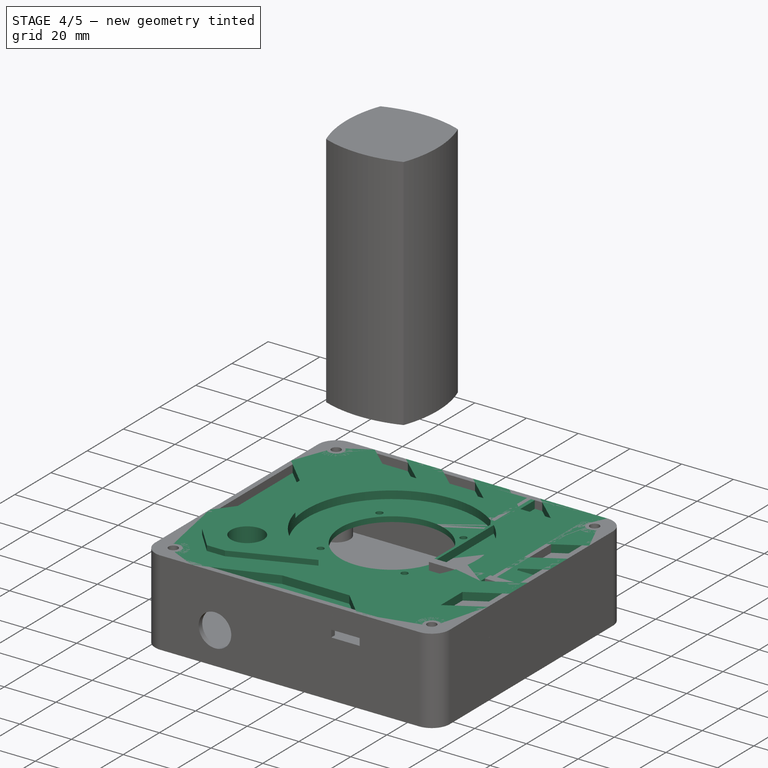
[diagram: stage 4 of 5 — iso view after this stage's code; geometry added in this stage tinted green]
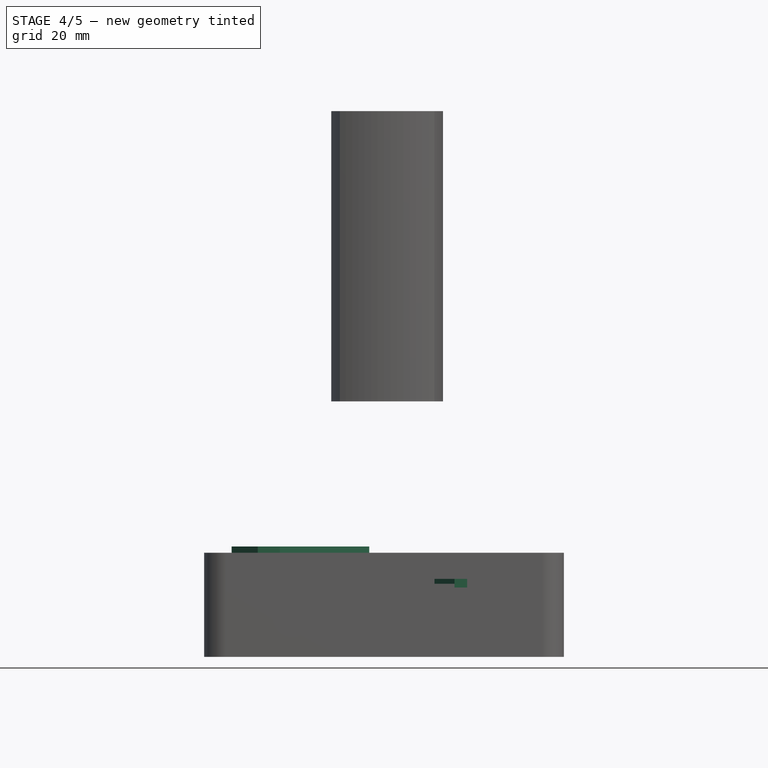
[diagram: stage 4 of 5 — front view after this stage's code; geometry added in this stage tinted green]
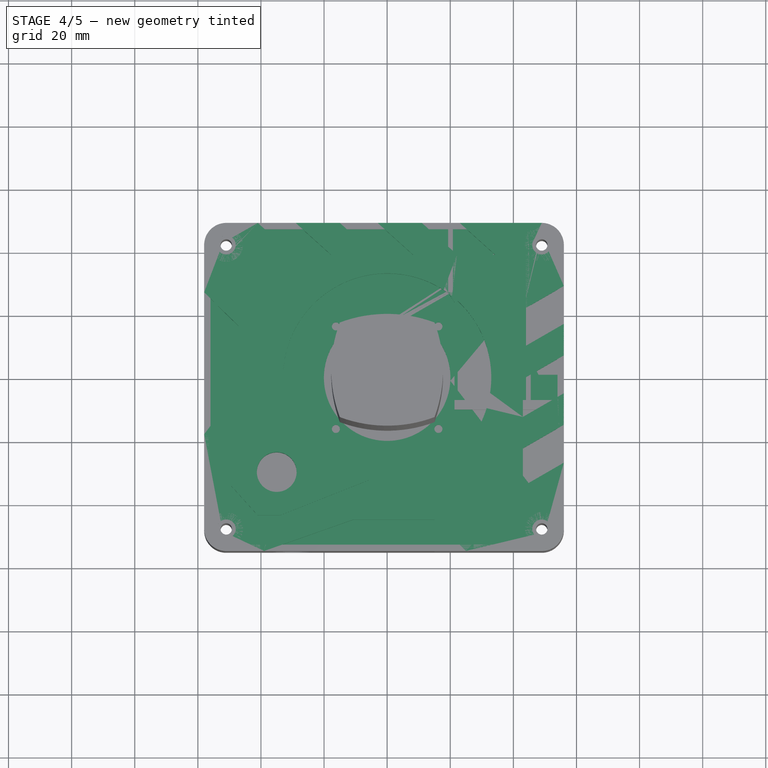
[diagram: stage 4 of 5 — top view after this stage's code; geometry added in this stage tinted green]
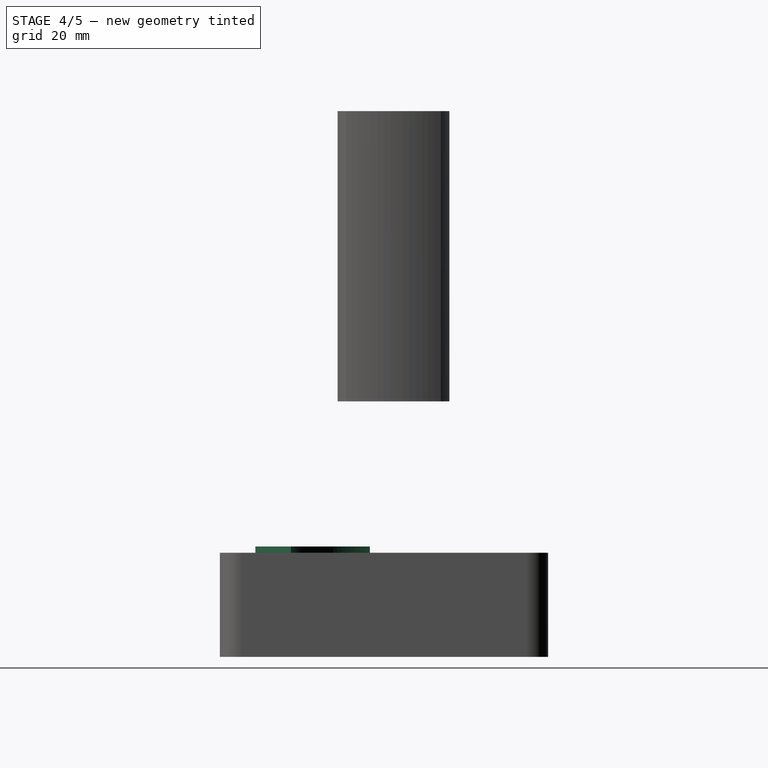
[diagram: stage 4 of 5 — right view after this stage's code; geometry added in this stage tinted green]
FEATURE [Sketcher::SketchObject] Sketch021
  FullyConstrained = false
  MapMode = 5
  sketch-geometry (14):
    g0: Circle CenterX=0 CenterY=0 CenterZ=0 NormalX=0 NormalY=0 NormalZ=1 AngleXU=0 Radius=20.05
    g1: Circle CenterX=-16.25 CenterY=16.25 CenterZ=0 NormalX=0 NormalY=0 NormalZ=1 AngleXU=0 Radius=1.275
    g2: Circle CenterX=16.25 CenterY=16.25 CenterZ=0 NormalX=0 NormalY=0 NormalZ=1 AngleXU=0 Radius=1.275
    g3: Circle CenterX=16.25 CenterY=-16.25 CenterZ=0 NormalX=0 NormalY=0 NormalZ=1 AngleXU=0 Radius=1.275
    g4: Circle CenterX=-16.25 CenterY=-16.25 CenterZ=0 NormalX=0 NormalY=0 NormalZ=1 AngleXU=0 Radius=1.275
    g5: ArcOfCircle CenterX=0 CenterY=0 CenterZ=0 NormalX=0 NormalY=0 NormalZ=1 AngleXU=0 Radius=33 StartAngle=4.53971 EndAngle=9.65353
    g6: Circle CenterX=0 CenterY=0 CenterZ=0 NormalX=0 NormalY=0 NormalZ=1 AngleXU=0 Radius=27.05
    g7: Circle CenterX=-35 CenterY=-30 CenterZ=0 NormalX=0 NormalY=0 NormalZ=1 AngleXU=0 Radius=6.3
    g8: LineSegment StartX=-5.67 StartY=-32.5092 StartZ=0 EndX=-34 EndY=-43.7477 EndZ=0
    g9: LineSegment StartX=-48.5679 StartY=-27.5684 StartZ=0 EndX=-32.1404 EndY=-7.48311 EndZ=0
    g10: LineSegment StartX=-48.5679 StartY=-27.5684 StartZ=0 EndX=-49.2996 EndY=-34.5301 EndZ=0
    g11: LineSegment StartX=-49.2996 StartY=-34.5301 StartZ=0 EndX=-41 EndY=-43.7477 EndZ=0
    g12: LineSegment StartX=-41 StartY=-43.7477 StartZ=0 EndX=-34 EndY=-43.7477 EndZ=0
    g13: ArcOfCircle CenterX=1.2e-14 CenterY=5.3e-15 CenterZ=0 NormalX=0 NormalY=0 NormalZ=1 AngleXU=0 Radius=33 StartAngle=3.37034 EndAngle=4.53971
  constraints (40):
    c: Coincident(g0,g-1)
    c: Diameter(g0) = 40.1
    c: DistanceX(g1,g-1) = 16.25
    c: DistanceY(g-1,g1) = 16.25
    c: Diameter(g1) = 2.55
    c: Equal(g1,g2) = 2.55
    c: Equal(g1,g3) = 2.55
    c: Equal(g1,g4) = 2.55
    c: DistanceY(g4,g-1) = 16.25
    c: DistanceX(g4,g-1) = 16.25
    c: DistanceX(g-1,g3) = 16.25
    c: DistanceY(g3,g-1) = 16.25
    c: DistanceY(g-1,g2) = 16.25
    c: DistanceX(g-1,g2) = 16.25
    c: Coincident(g6,g0)
    c: Diameter(g6) = 54.1
    c: Diameter(g7) = 12.6
    c: Coincident(g8,g5)
    c: Coincident(g9,g5)
    c: Diameter(g5) = 66
    c: DistanceX(g8,g-1) = 34
    c: Coincident(g5,g0)
    c: Angle(g5) = 5.11381
    c: DistanceX(g5,g-1) = 5.67
    c: Coincident(g10,g9)
    c: Coincident(g11,g12)
    c: Coincident(g12,g8)
    c: Coincident(g11,g10)
    c: Equal(g12,g10)
    c: Angle(g11,g12,g11) = 0.837758
    c: Angle(g10,g11,g10) = 0.837758
    c: DistanceY(g7,g-1) = 30
    c: DistanceX(g7,g-1) = 35
    c: Distance(g10,g7) = 15
    c: Distance(g11,g7) = 15
    c: Horizontal(g12)
    c: Distance(g12) = 7
    c: Coincident(g13,g9)
    c: Coincident(g13,g8)
    c: Angle(g13) = 1.16937
FEATURE [Sketcher::SketchObject] Sketch002
  FullyConstrained = false
  MapMode = 5
  sketch-geometry (63):
    g0: Circle CenterX=0 CenterY=0 CenterZ=0 NormalX=0 NormalY=0 NormalZ=1 AngleXU=0 Radius=20.05
    g1: Circle CenterX=-16.25 CenterY=16.25 CenterZ=0 NormalX=0 NormalY=0 NormalZ=1 AngleXU=0 Radius=1.275
    g2: Circle CenterX=16.25 CenterY=16.25 CenterZ=0 NormalX=0 NormalY=0 NormalZ=1 AngleXU=0 Radius=1.275
    g3: Circle CenterX=16.25 CenterY=-16.25 CenterZ=0 NormalX=0 NormalY=0 NormalZ=1 AngleXU=0 Radius=1.275
    g4: Circle CenterX=-16.25 CenterY=-16.25 CenterZ=0 NormalX=0 NormalY=0 NormalZ=1 AngleXU=0 Radius=1.275
    g5: ArcOfCircle CenterX=0 CenterY=0 CenterZ=0 NormalX=0 NormalY=0 NormalZ=1 AngleXU=0 Radius=33 StartAngle=4.53971 EndAngle=9.65353
    g6: Circle CenterX=0 CenterY=0 CenterZ=0 NormalX=0 NormalY=0 NormalZ=1 AngleXU=0 Radius=27.05
    g7: Circle CenterX=-35 CenterY=-30 CenterZ=0 NormalX=0 NormalY=0 NormalZ=1 AngleXU=0 Radius=6.3
    g8: LineSegment StartX=-5.67 StartY=-32.5092 StartZ=0 EndX=-34 EndY=-43.7477 EndZ=0
    g9: LineSegment StartX=-48.5679 StartY=-27.5684 StartZ=0 EndX=-32.1404 EndY=-7.48311 EndZ=0
    g10: LineSegment StartX=-48.5679 StartY=-27.5684 StartZ=0 EndX=-49.2996 EndY=-34.5301 EndZ=0
    g11: LineSegment StartX=-49.2996 StartY=-34.5301 StartZ=0 EndX=-41 EndY=-43.7477 EndZ=0
    g12: LineSegment StartX=-41 StartY=-43.7477 StartZ=0 EndX=-34 EndY=-43.7477 EndZ=0
    g13: LineSegment StartX=49 StartY=49 StartZ=0 EndX=-51 EndY=49 EndZ=0
    g14: LineSegment StartX=-58 StartY=42 StartZ=0 EndX=-58 EndY=-48 EndZ=0
    g15: LineSegment StartX=-51 StartY=-55 StartZ=0 EndX=49 EndY=-55 EndZ=0
    g16: LineSegment StartX=56 StartY=-48 StartZ=0 EndX=56 EndY=42 EndZ=0
    g17: ArcOfCircle CenterX=49 CenterY=42 CenterZ=0 NormalX=0 NormalY=0 NormalZ=1 AngleXU=0 Radius=7 StartAngle=0 EndAngle=1.5708
    g18: ArcOfCircle CenterX=49 CenterY=-48 CenterZ=0 NormalX=0 NormalY=0 NormalZ=1 AngleXU=0 Radius=7 StartAngle=4.71239 EndAngle=6.28319
    g19: ArcOfCircle CenterX=-51 CenterY=-48 CenterZ=0 NormalX=0 NormalY=0 NormalZ=1 AngleXU=0 Radius=7 StartAngle=3.14159 EndAngle=4.71239
    g20: ArcOfCircle CenterX=-51 CenterY=42 CenterZ=0 NormalX=0 NormalY=0 NormalZ=1 AngleXU=0 Radius=7 StartAngle=1.5708 EndAngle=3.14159
    g21: LineSegment StartX=-41 StartY=49 StartZ=0 EndX=-29.8528 EndY=38.963 EndZ=0
    g22: LineSegment StartX=-29.8528 StartY=38.963 StartZ=0 EndX=-17.8528 EndY=38.963 EndZ=0
    g23: LineSegment StartX=-17.8528 StartY=38.963 StartZ=0 EndX=-29 EndY=49 EndZ=0
    g24: LineSegment StartX=-39 StartY=-55 StartZ=0 EndX=-10.9045 EndY=-45.1005 EndZ=0
    g25: LineSegment StartX=-10.9045 StartY=-45.1005 StartZ=0 EndX=15.1005 EndY=-45.1005 EndZ=0
    g26: LineSegment StartX=15.1005 StartY=-45.1005 StartZ=0 EndX=25 EndY=-55 EndZ=0
    g27: LineSegment StartX=-58 StartY=-18 StartZ=0 EndX=-47.1673 EndY=-3.62456 EndZ=0
    g28: LineSegment StartX=-47.1673 StartY=-3.62456 StartZ=0 EndX=-47.1673 EndY=16.3754 EndZ=0
    g29: LineSegment StartX=-47.1673 StartY=16.3754 StartZ=0 EndX=-58 EndY=27 EndZ=0
    g30: LineSegment StartX=-58 StartY=42 StartZ=0 EndX=-58 EndY=27 EndZ=0
    g31: LineSegment StartX=-58 StartY=-18 StartZ=0 EndX=-58 EndY=-48 EndZ=0
    g32: Circle CenterX=0 CenterY=0 CenterZ=0 NormalX=0 NormalY=0 NormalZ=1 AngleXU=0 Radius=33
    g33: LineSegment StartX=-39 StartY=-55 StartZ=0 EndX=-51 EndY=-55 EndZ=0
    g34: LineSegment StartX=49 StartY=-55 StartZ=0 EndX=25 EndY=-55 EndZ=0
    g35: LineSegment StartX=-51 StartY=49 StartZ=0 EndX=-41 EndY=49 EndZ=0
    g36: LineSegment StartX=-15 StartY=49 StartZ=0 EndX=-3.85283 EndY=38.963 EndZ=0
    g37: LineSegment StartX=-3.85283 StartY=38.963 StartZ=0 EndX=8.14717 EndY=38.963 EndZ=0
    g38: LineSegment StartX=8.14717 StartY=38.963 StartZ=0 EndX=-3 EndY=49 EndZ=0
    g39: LineSegment StartX=-29 StartY=49 StartZ=0 EndX=-15 EndY=49 EndZ=0
    g40: LineSegment StartX=11 StartY=49 StartZ=0 EndX=22.1472 EndY=38.963 EndZ=0
    g41: LineSegment StartX=22.1472 StartY=38.963 StartZ=0 EndX=34.1472 EndY=38.963 EndZ=0
    g42: LineSegment StartX=34.1472 StartY=38.963 StartZ=0 EndX=23 EndY=49 EndZ=0
    g43: LineSegment StartX=11 StartY=49 StartZ=0 EndX=-3 EndY=49 EndZ=0
    g44: LineSegment StartX=23 StartY=49 StartZ=0 EndX=49 EndY=49 EndZ=0
    g45: LineSegment StartX=56 StartY=42 StartZ=0 EndX=56 EndY=29 EndZ=0
    g46: LineSegment StartX=56 StartY=29 StartZ=0 EndX=43.0096 EndY=21.5 EndZ=0
    g47: LineSegment StartX=43.0096 StartY=21.5 StartZ=0 EndX=43.0096 EndY=9.5 EndZ=0
    g48: LineSegment StartX=43.0096 StartY=9.5 StartZ=0 EndX=56 EndY=17 EndZ=0
    g49: LineSegment StartX=56 StartY=17 StartZ=0 EndX=56 EndY=7 EndZ=0
    g50: LineSegment StartX=56 StartY=7 StartZ=0 EndX=43.0096 EndY=-0.5 EndZ=0
    g51: LineSegment StartX=43.0096 StartY=-0.5 StartZ=0 EndX=43.0096 EndY=-12.5 EndZ=0
    g52: LineSegment StartX=43.0096 StartY=-12.5 StartZ=0 EndX=56 EndY=-5 EndZ=0
    g53: LineSegment StartX=56 StartY=-5 StartZ=0 EndX=56 EndY=-15 EndZ=0
    g54: LineSegment StartX=56 StartY=-15 StartZ=0 EndX=43.0096 EndY=-22.5 EndZ=0
    g55: LineSegment StartX=43.0096 StartY=-22.5 StartZ=0 EndX=43.0096 EndY=-34.5 EndZ=0
    g56: LineSegment StartX=43.0096 StartY=-34.5 StartZ=0 EndX=56 EndY=-27 EndZ=0
    g57: LineSegment StartX=56 StartY=-27 StartZ=0 EndX=56 EndY=-48 EndZ=0
    g58: Circle CenterX=-51 CenterY=42 CenterZ=0 NormalX=0 NormalY=0 NormalZ=1 AngleXU=0 Radius=1.8
    g59: Circle CenterX=49 CenterY=42 CenterZ=0 NormalX=0 NormalY=0 NormalZ=1 AngleXU=0 Radius=1.8
    g60: Circle CenterX=49 CenterY=-48 CenterZ=0 NormalX=0 NormalY=0 NormalZ=1 AngleXU=0 Radius=1.8
    g61: Circle CenterX=-51 CenterY=-48 CenterZ=0 NormalX=0 NormalY=0 NormalZ=1 AngleXU=0 Radius=1.8
    g62: Circle CenterX=28 CenterY=-39 CenterZ=0 NormalX=0 NormalY=0 NormalZ=1 AngleXU=0 Radius=6.3
  constraints (173):
    c: Coincident(g0,g-1)
    c: Diameter(g0) = 40.1
    c: DistanceX(g1,g-1) = 16.25
    c: DistanceY(g-1,g1) = 16.25
    c: Diameter(g1) = 2.55
    c: Equal(g1,g2) = 2.55
    c: Equal(g1,g3) = 2.55
    c: Equal(g1,g4) = 2.55
    c: DistanceY(g4,g-1) = 16.25
    c: DistanceX(g4,g-1) = 16.25
    c: DistanceX(g-1,g3) = 16.25
    c: DistanceY(g3,g-1) = 16.25
    c: DistanceY(g-1,g2) = 16.25
    c: DistanceX(g-1,g2) = 16.25
    c: Coincident(g6,g0)
    c: Diameter(g6) = 54.1
    c: Diameter(g7) = 12.6
    c: Coincident(g8,g5)
    c: Coincident(g9,g5)
    c: Diameter(g5) = 66
    c: DistanceX(g8,g-1) = 34
    c: Coincident(g5,g0)
    c: Angle(g5) = 5.11381
    c: DistanceX(g5,g-1) = 5.67
    c: Coincident(g10,g9)
    c: Coincident(g11,g12)
    c: Coincident(g12,g8)
    c: Coincident(g11,g10)
    c: Equal(g12,g10)
    c: Angle(g11,g12,g11) = 0.837758
    c: Angle(g10,g11,g10) = 0.837758
    c: DistanceY(g7,g-1) = 30
    c: DistanceX(g7,g-1) = 35
    c: Distance(g10,g7) = 15
    c: Distance(g11,g7) = 15
    c: Horizontal(g12)
    c: Distance(g12) = 7
    c: Horizontal(g13)
    c: Vertical(g14)
    c: Vertical(g16)
    c: Tangent(g13,g17) = -1.5708
    c: Tangent(g16,g17) = -1.5708
    c: Tangent(g15,g18) = -1.5708
    c: Tangent(g16,g18) = -1.5708
    c: Tangent(g14,g19) = -1.5708
    c: Tangent(g15,g19) = -1.5708
    c: Tangent(g13,g20) = -1.5708
    c: Tangent(g14,g20) = -1.5708
    c: PointOnObject(g21,g13)
    c: Coincident(g21,g22)
    c: Horizontal(g22)
    c: Coincident(g22,g23)
    c: PointOnObject(g23,g13)
    c: PointOnObject(g24,g15)
    c: Coincident(g24,g25)
    c: Horizontal(g25)
    c: Coincident(g25,g26)
    c: PointOnObject(g26,g15)
    c: Coincident(g27,g28)
    c: Vertical(g28)
    c: Equal(g17,g18)
    c: Equal(g18,g19)
    c: Equal(g19,g20)
    c: Radius(g20) = 7
    c: Coincident(g30,g20)
    c: Coincident(g30,g29)
    c: Coincident(g31,g27)
    c: Coincident(g31,g19)
    c: Vertical(g31)
    c: Vertical(g30)
    c: Parallel(g23,g21)
    c: Distance(g13) = 100
    c: Distance(g14) = 90
    c: Coincident(g29,g28)
    c: Coincident(g32,g0)
    c: PointOnObject(g5,g32)
    c: DistanceX(g19,g-1) = 51
    c: DistanceY(g19,g-1) = 55
    c: Distance(g31) = 30
    c: Distance(g30) = 15
    c: Distance(g28) = 20
    c: Angle(g31,g27,g27) = 2.49582
    c: Distance(g27) = 18
    c: Coincident(g33,g24)
    c: Coincident(g33,g19)
    c: Horizontal(g33)
    c: Distance(g33) = 12
    c: Coincident(g34,g18)
    c: Coincident(g34,g26)
    c: Distance(g34) = 24
    c: Angle(g34,g26,g26) = 2.35619
    c: Distance(g26) = 14
    c: Angle(g21,g22,g21) = 0.733038
    c: Coincident(g35,g20)
    c: Coincident(g35,g21)
    c: Distance(g35) = 10
    c: Distance(g22) = 12
    c: Distance(g21) = 15
    c: Coincident(g36,g37)
    c: Horizontal(g37)
    c: Coincident(g37,g38)
    c: Parallel(g38,g36)
    c: Angle(g36,g37,g36) = 0.733038
    c: Equal(g22,g37) = 15
    c: Equal(g21,g36) = 10
    c: Coincident(g39,g23)
    c: Coincident(g39,g36)
    c: Horizontal(g39)
    c: Distance(g39) = 14
    c: PointOnObject(g38,g13)
    c: Coincident(g40,g41)
    c: Horizontal(g41)
    c: Coincident(g41,g42)
    c: Parallel(g42,g40)
    c: Angle(g40,g41,g40) = 0.733038
    c: Equal(g22,g41) = 15
    c: Equal(g21,g40) = 10
    c: PointOnObject(g40,g13)
    c: Coincident(g43,g40)
    c: Coincident(g43,g38)
    c: Distance(g43) = 14
    c: PointOnObject(g42,g13)
    c: Coincident(g44,g42)
    c: Coincident(g44,g17)
    c: Tangent(g17,g45) = 1.5708
    c: Coincident(g45,g46)
    c: Coincident(g46,g47)
    c: Vertical(g47)
    c: Coincident(g47,g48)
    c: Coincident(g48,g49)
    c: Vertical(g49)
    c: Coincident(g49,g50)
    c: Coincident(g50,g51)
    c: Vertical(g51)
    c: Coincident(g51,g52)
    c: PointOnObject(g52,g16)
    c: Coincident(g52,g53)
    c: PointOnObject(g53,g16)
    c: Coincident(g53,g54)
    c: Coincident(g54,g55)
    c: Coincident(g55,g56)
    c: PointOnObject(g56,g16)
    c: Coincident(g56,g57)
    c: Coincident(g57,g18)
    c: Equal(g53,g49)
    c: Equal(g48,g46)
    c: Equal(g46,g50)
    c: Equal(g50,g52)
    c: Equal(g52,g54)
    c: Equal(g54,g56)
    c: Parallel(g54,g56)
    c: Parallel(g56,g52)
    c: Parallel(g52,g50)
    c: Parallel(g50,g48)
    c: Angle(g46,g45,g45) = 1.0472
    c: Equal(g47,g51)
    c: Equal(g51,g55)
    c: Distance(g47) = 12
    c: Distance(g46) = 15
    c: Distance(g45) = 13
    c: Distance(g49) = 10
    c: Coincident(g58,g20)
    c: Diameter(g58) = 3.6
    c: Equal(g58,g59) = 6
    c: Coincident(g59,g17)
    c: Equal(g58,g60) = 6
    c: Coincident(g60,g18)
    c: Equal(g58,g61) = 6
    c: Coincident(g61,g19)
    c: Equal(g7,g62) = 12.6
    c: Angle(g15,g24,g24) = 0.338768
    c: DistanceY(g62,g-1) = 39
    c: DistanceX(g-1,g62) = 28
FEATURE [Part::Extrusion] Extrude002
  Base = -> Sketch002
  Dir = (0,0,-1)
  DirMode = 0
  FaceMakerClass = Part::FaceMakerBullseye
  LengthFwd = 2
  LengthRev = 0
  Placement = pos=(0,0,-3) rot=(0,0,1;0rad)
  Solid = true
  Symmetric = false
FEATURE [Part::Extrusion] Extrude010
  Base = -> Sketch021
  Dir = (0,0,1)
  DirMode = 0
  FaceMakerClass = Part::FaceMakerBullseye
  LengthFwd = 2
  LengthRev = 0
  Solid = true
  Symmetric = false
FEATURE [Sketcher::SketchObject] Sketch001
  FullyConstrained = false
  MapMode = 5
  sketch-geometry (63):
    g0: Circle CenterX=0 CenterY=0 CenterZ=0 NormalX=0 NormalY=0 NormalZ=1 AngleXU=0 Radius=20.05
    g1: Circle CenterX=-16.25 CenterY=16.25 CenterZ=0 NormalX=0 NormalY=0 NormalZ=1 AngleXU=0 Radius=1.275
    g2: Circle CenterX=16.25 CenterY=16.25 CenterZ=0 NormalX=0 NormalY=0 NormalZ=1 AngleXU=0 Radius=1.275
    g3: Circle CenterX=16.25 CenterY=-16.25 CenterZ=0 NormalX=0 NormalY=0 NormalZ=1 AngleXU=0 Radius=1.275
    g4: Circle CenterX=-16.25 CenterY=-16.25 CenterZ=0 NormalX=0 NormalY=0 NormalZ=1 AngleXU=0 Radius=1.275
    g5: ArcOfCircle CenterX=0 CenterY=0 CenterZ=0 NormalX=0 NormalY=0 NormalZ=1 AngleXU=0 Radius=33 StartAngle=4.53971 EndAngle=9.65353
    g6: Circle CenterX=0 CenterY=0 CenterZ=0 NormalX=0 NormalY=0 NormalZ=1 AngleXU=0 Radius=27.05
    g7: Circle CenterX=-35 CenterY=-30 CenterZ=0 NormalX=0 NormalY=0 NormalZ=1 AngleXU=0 Radius=6.3
    g8: LineSegment StartX=-5.67 StartY=-32.5092 StartZ=0 EndX=-34 EndY=-43.7477 EndZ=0
    g9: LineSegment StartX=-48.5679 StartY=-27.5684 StartZ=0 EndX=-32.1404 EndY=-7.48311 EndZ=0
    g10: LineSegment StartX=-48.5679 StartY=-27.5684 StartZ=0 EndX=-49.2996 EndY=-34.5301 EndZ=0
    g11: LineSegment StartX=-49.2996 StartY=-34.5301 StartZ=0 EndX=-41 EndY=-43.7477 EndZ=0
    g12: LineSegment StartX=-41 StartY=-43.7477 StartZ=0 EndX=-34 EndY=-43.7477 EndZ=0
    g13: LineSegment StartX=49 StartY=49 StartZ=0 EndX=-51 EndY=49 EndZ=0
    g14: LineSegment StartX=-58 StartY=42 StartZ=0 EndX=-58 EndY=-48 EndZ=0
    g15: LineSegment StartX=-51 StartY=-55 StartZ=0 EndX=49 EndY=-55 EndZ=0
    g16: LineSegment StartX=56 StartY=-48 StartZ=0 EndX=56 EndY=42 EndZ=0
    g17: ArcOfCircle CenterX=49 CenterY=42 CenterZ=0 NormalX=0 NormalY=0 NormalZ=1 AngleXU=0 Radius=7 StartAngle=0 EndAngle=1.5708
    g18: ArcOfCircle CenterX=49 CenterY=-48 CenterZ=0 NormalX=0 NormalY=0 NormalZ=1 AngleXU=0 Radius=7 StartAngle=4.71239 EndAngle=6.28319
    g19: ArcOfCircle CenterX=-51 CenterY=-48 CenterZ=0 NormalX=0 NormalY=0 NormalZ=1 AngleXU=0 Radius=7 StartAngle=3.14159 EndAngle=4.71239
    g20: ArcOfCircle CenterX=-51 CenterY=42 CenterZ=0 NormalX=0 NormalY=0 NormalZ=1 AngleXU=0 Radius=7 StartAngle=1.5708 EndAngle=3.14159
    g21: LineSegment StartX=-41 StartY=49 StartZ=0 EndX=-29.8528 EndY=38.963 EndZ=0
    g22: LineSegment StartX=-29.8528 StartY=38.963 StartZ=0 EndX=-17.8528 EndY=38.963 EndZ=0
    g23: LineSegment StartX=-17.8528 StartY=38.963 StartZ=0 EndX=-29 EndY=49 EndZ=0
    g24: LineSegment StartX=-39 StartY=-55 StartZ=0 EndX=-10.9045 EndY=-45.1005 EndZ=0
    g25: LineSegment StartX=-10.9045 StartY=-45.1005 StartZ=0 EndX=15.1005 EndY=-45.1005 EndZ=0
    g26: LineSegment StartX=15.1005 StartY=-45.1005 StartZ=0 EndX=25 EndY=-55 EndZ=0
    g27: LineSegment StartX=-58 StartY=-18 StartZ=0 EndX=-47.1673 EndY=-3.62456 EndZ=0
    g28: LineSegment StartX=-47.1673 StartY=-3.62456 StartZ=0 EndX=-47.1673 EndY=16.3754 EndZ=0
    g29: LineSegment StartX=-47.1673 StartY=16.3754 StartZ=0 EndX=-58 EndY=27 EndZ=0
    g30: LineSegment StartX=-58 StartY=42 StartZ=0 EndX=-58 EndY=27 EndZ=0
    g31: LineSegment StartX=-58 StartY=-18 StartZ=0 EndX=-58 EndY=-48 EndZ=0
    g32: Circle CenterX=0 CenterY=0 CenterZ=0 NormalX=0 NormalY=0 NormalZ=1 AngleXU=0 Radius=33
    g33: LineSegment StartX=-39 StartY=-55 StartZ=0 EndX=-51 EndY=-55 EndZ=0
    g34: LineSegment StartX=49 StartY=-55 StartZ=0 EndX=25 EndY=-55 EndZ=0
    g35: LineSegment StartX=-51 StartY=49 StartZ=0 EndX=-41 EndY=49 EndZ=0
    g36: LineSegment StartX=-15 StartY=49 StartZ=0 EndX=-3.85283 EndY=38.963 EndZ=0
    g37: LineSegment StartX=-3.85283 StartY=38.963 StartZ=0 EndX=8.14717 EndY=38.963 EndZ=0
    g38: LineSegment StartX=8.14717 StartY=38.963 StartZ=0 EndX=-3 EndY=49 EndZ=0
    g39: LineSegment StartX=-29 StartY=49 StartZ=0 EndX=-15 EndY=49 EndZ=0
    g40: LineSegment StartX=11 StartY=49 StartZ=0 EndX=22.1472 EndY=38.963 EndZ=0
    g41: LineSegment StartX=22.1472 StartY=38.963 StartZ=0 EndX=34.1472 EndY=38.963 EndZ=0
    g42: LineSegment StartX=34.1472 StartY=38.963 StartZ=0 EndX=23 EndY=49 EndZ=0
    g43: LineSegment StartX=11 StartY=49 StartZ=0 EndX=-3 EndY=49 EndZ=0
    g44: LineSegment StartX=23 StartY=49 StartZ=0 EndX=49 EndY=49 EndZ=0
    g45: LineSegment StartX=56 StartY=42 StartZ=0 EndX=56 EndY=29 EndZ=0
    g46: LineSegment StartX=56 StartY=29 StartZ=0 EndX=43.0096 EndY=21.5 EndZ=0
    g47: LineSegment StartX=43.0096 StartY=21.5 StartZ=0 EndX=43.0096 EndY=9.5 EndZ=0
    g48: LineSegment StartX=43.0096 StartY=9.5 StartZ=0 EndX=56 EndY=17 EndZ=0
    g49: LineSegment StartX=56 StartY=17 StartZ=0 EndX=56 EndY=7 EndZ=0
    g50: LineSegment StartX=56 StartY=7 StartZ=0 EndX=43.0096 EndY=-0.5 EndZ=0
    g51: LineSegment StartX=43.0096 StartY=-0.5 StartZ=0 EndX=43.0096 EndY=-12.5 EndZ=0
    g52: LineSegment StartX=43.0096 StartY=-12.5 StartZ=0 EndX=56 EndY=-5 EndZ=0
    g53: LineSegment StartX=56 StartY=-5 StartZ=0 EndX=56 EndY=-15 EndZ=0
    g54: LineSegment StartX=56 StartY=-15 StartZ=0 EndX=43.0096 EndY=-22.5 EndZ=0
    g55: LineSegment StartX=43.0096 StartY=-22.5 StartZ=0 EndX=43.0096 EndY=-34.5 EndZ=0
    g56: LineSegment StartX=43.0096 StartY=-34.5 StartZ=0 EndX=56 EndY=-27 EndZ=0
    g57: LineSegment StartX=56 StartY=-27 StartZ=0 EndX=56 EndY=-48 EndZ=0
    g58: Circle CenterX=-51 CenterY=42 CenterZ=0 NormalX=0 NormalY=0 NormalZ=1 AngleXU=0 Radius=3
    g59: Circle CenterX=49 CenterY=42 CenterZ=0 NormalX=0 NormalY=0 NormalZ=1 AngleXU=0 Radius=3
    g60: Circle CenterX=49 CenterY=-48 CenterZ=0 NormalX=0 NormalY=0 NormalZ=1 AngleXU=0 Radius=3
    g61: Circle CenterX=-51 CenterY=-48 CenterZ=0 NormalX=0 NormalY=0 NormalZ=1 AngleXU=0 Radius=3
    g62: Circle CenterX=28 CenterY=-39 CenterZ=0 NormalX=0 NormalY=0 NormalZ=1 AngleXU=0 Radius=6.3
  constraints (173):
    c: Coincident(g0,g-1)
    c: Diameter(g0) = 40.1
    c: DistanceX(g1,g-1) = 16.25
    c: DistanceY(g-1,g1) = 16.25
    c: Diameter(g1) = 2.55
    c: Equal(g1,g2) = 2.55
    c: Equal(g1,g3) = 2.55
    c: Equal(g1,g4) = 2.55
    c: DistanceY(g4,g-1) = 16.25
    c: DistanceX(g4,g-1) = 16.25
    c: DistanceX(g-1,g3) = 16.25
    c: DistanceY(g3,g-1) = 16.25
    c: DistanceY(g-1,g2) = 16.25
    c: DistanceX(g-1,g2) = 16.25
    c: Coincident(g6,g0)
    c: Diameter(g6) = 54.1
    c: Diameter(g7) = 12.6
    c: Coincident(g8,g5)
    c: Coincident(g9,g5)
    c: Diameter(g5) = 66
    c: DistanceX(g8,g-1) = 34
    c: Coincident(g5,g0)
    c: Angle(g5) = 5.11381
    c: DistanceX(g5,g-1) = 5.67
    c: Coincident(g10,g9)
    c: Coincident(g11,g12)
    c: Coincident(g12,g8)
    c: Coincident(g11,g10)
    c: Equal(g12,g10)
    c: Angle(g11,g12,g11) = 0.837758
    c: Angle(g10,g11,g10) = 0.837758
    c: DistanceY(g7,g-1) = 30
    c: DistanceX(g7,g-1) = 35
    c: Distance(g10,g7) = 15
    c: Distance(g11,g7) = 15
    c: Horizontal(g12)
    c: Distance(g12) = 7
    c: Horizontal(g13)
    c: Vertical(g14)
    c: Vertical(g16)
    c: Tangent(g13,g17) = -1.5708
    c: Tangent(g16,g17) = -1.5708
    c: Tangent(g15,g18) = -1.5708
    c: Tangent(g16,g18) = -1.5708
    c: Tangent(g14,g19) = -1.5708
    c: Tangent(g15,g19) = -1.5708
    c: Tangent(g13,g20) = -1.5708
    c: Tangent(g14,g20) = -1.5708
    c: PointOnObject(g21,g13)
    c: Coincident(g21,g22)
    c: Horizontal(g22)
    c: Coincident(g22,g23)
    c: PointOnObject(g23,g13)
    c: PointOnObject(g24,g15)
    c: Coincident(g24,g25)
    c: Horizontal(g25)
    c: Coincident(g25,g26)
    c: PointOnObject(g26,g15)
    c: Coincident(g27,g28)
    c: Vertical(g28)
    c: Equal(g17,g18)
    c: Equal(g18,g19)
    c: Equal(g19,g20)
    c: Radius(g20) = 7
    c: Coincident(g30,g20)
    c: Coincident(g30,g29)
    c: Coincident(g31,g27)
    c: Coincident(g31,g19)
    c: Vertical(g31)
    c: Vertical(g30)
    c: Parallel(g23,g21)
    c: Distance(g13) = 100
    c: Distance(g14) = 90
    c: Coincident(g29,g28)
    c: Coincident(g32,g0)
    c: PointOnObject(g5,g32)
    c: DistanceX(g19,g-1) = 51
    c: DistanceY(g19,g-1) = 55
    c: Distance(g31) = 30
    c: Distance(g30) = 15
    c: Distance(g28) = 20
    c: Angle(g31,g27,g27) = 2.49582
    c: Distance(g27) = 18
    c: Coincident(g33,g24)
    c: Coincident(g33,g19)
    c: Horizontal(g33)
    c: Distance(g33) = 12
    c: Coincident(g34,g18)
    c: Coincident(g34,g26)
    c: Distance(g34) = 24
    c: Angle(g34,g26,g26) = 2.35619
    c: Distance(g26) = 14
    c: Angle(g21,g22,g21) = 0.733038
    c: Coincident(g35,g20)
    c: Coincident(g35,g21)
    c: Distance(g35) = 10
    c: Distance(g22) = 12
    c: Distance(g21) = 15
    c: Coincident(g36,g37)
    c: Horizontal(g37)
    c: Coincident(g37,g38)
    c: Parallel(g38,g36)
    c: Angle(g36,g37,g36) = 0.733038
    c: Equal(g22,g37) = 15
    c: Equal(g21,g36) = 10
    c: Coincident(g39,g23)
    c: Coincident(g39,g36)
    c: Horizontal(g39)
    c: Distance(g39) = 14
    c: PointOnObject(g38,g13)
    c: Coincident(g40,g41)
    c: Horizontal(g41)
    c: Coincident(g41,g42)
    c: Parallel(g42,g40)
    c: Angle(g40,g41,g40) = 0.733038
    c: Equal(g22,g41) = 15
    c: Equal(g21,g40) = 10
    c: PointOnObject(g40,g13)
    c: Coincident(g43,g40)
    c: Coincident(g43,g38)
    c: Distance(g43) = 14
    c: PointOnObject(g42,g13)
    c: Coincident(g44,g42)
    c: Coincident(g44,g17)
    c: Tangent(g17,g45) = 1.5708
    c: Coincident(g45,g46)
    c: Coincident(g46,g47)
    c: Vertical(g47)
    c: Coincident(g47,g48)
    c: Coincident(g48,g49)
    c: Vertical(g49)
    c: Coincident(g49,g50)
    c: Coincident(g50,g51)
    c: Vertical(g51)
    c: Coincident(g51,g52)
    c: PointOnObject(g52,g16)
    c: Coincident(g52,g53)
    c: PointOnObject(g53,g16)
    c: Coincident(g53,g54)
    c: Coincident(g54,g55)
    c: Coincident(g55,g56)
    c: PointOnObject(g56,g16)
    c: Coincident(g56,g57)
    c: Coincident(g57,g18)
    c: Equal(g53,g49)
    c: Equal(g48,g46)
    c: Equal(g46,g50)
    c: Equal(g50,g52)
    c: Equal(g52,g54)
    c: Equal(g54,g56)
    c: Parallel(g54,g56)
    c: Parallel(g56,g52)
    c: Parallel(g52,g50)
    c: Parallel(g50,g48)
    c: Angle(g46,g45,g45) = 1.0472
    c: Equal(g47,g51)
    c: Equal(g51,g55)
    c: Distance(g47) = 12
    c: Distance(g46) = 15
    c: Distance(g45) = 13
    c: Distance(g49) = 10
    c: Coincident(g58,g20)
    c: Diameter(g58) = 6
    c: Equal(g58,g59) = 6
    c: Coincident(g59,g17)
    c: Equal(g58,g60) = 6
    c: Coincident(g60,g18)
    c: Equal(g58,g61) = 6
    c: Coincident(g61,g19)
    c: Angle(g15,g24,g24) = 0.338768
    c: Equal(g7,g62) = 12.6
    c: DistanceX(g-1,g62) = 28
    c: DistanceY(g62,g-1) = 39
FEATURE [Part::Extrusion] Extrude001
  Base = -> Sketch001
  Dir = (0,0,1)
  DirMode = 0
  FaceMakerClass = Part::FaceMakerBullseye
  LengthFwd = 0
  LengthRev = 3
  Solid = true
  Symmetric = false
FEATURE [Part::Extrusion] Extrude013
  Base = -> Sketch023
  Dir = (0,0,1)
  DirMode = 0
  FaceMakerClass = Part::FaceMakerBullseye
  LengthFwd = 0
  LengthRev = 9.8
  Solid = true
  Symmetric = false
FEATURE [Sketcher::SketchObject] Sketch026
  FullyConstrained = false
  MapMode = 5
  sketch-geometry (49):
    g0: LineSegment StartX=49 StartY=49 StartZ=0 EndX=-51 EndY=49 EndZ=0
    g1: LineSegment StartX=-58 StartY=42 StartZ=0 EndX=-58 EndY=-48 EndZ=0
    g2: LineSegment StartX=-51 StartY=-55 StartZ=0 EndX=49 EndY=-55 EndZ=0
    g3: LineSegment StartX=56 StartY=-48 StartZ=0 EndX=56 EndY=42 EndZ=0
    g4: ArcOfCircle CenterX=49 CenterY=42 CenterZ=0 NormalX=0 NormalY=0 NormalZ=1 AngleXU=0 Radius=7 StartAngle=-9e-16 EndAngle=1.5708
    g5: ArcOfCircle CenterX=49 CenterY=-48 CenterZ=0 NormalX=0 NormalY=0 NormalZ=1 AngleXU=0 Radius=7 StartAngle=4.71239 EndAngle=6.28319
    g6: ArcOfCircle CenterX=-51 CenterY=-48 CenterZ=0 NormalX=0 NormalY=0 NormalZ=1 AngleXU=0 Radius=7 StartAngle=3.14159 EndAngle=4.71239
    g7: ArcOfCircle CenterX=-51 CenterY=42 CenterZ=0 NormalX=0 NormalY=0 NormalZ=1 AngleXU=0 Radius=7 StartAngle=1.5708 EndAngle=3.14159
    g8: Circle CenterX=-51 CenterY=42 CenterZ=0 NormalX=0 NormalY=0 NormalZ=1 AngleXU=0 Radius=1.8
    g9: Circle CenterX=49 CenterY=42 CenterZ=0 NormalX=0 NormalY=0 NormalZ=1 AngleXU=0 Radius=1.8
    g10: Circle CenterX=49 CenterY=-48 CenterZ=0 NormalX=0 NormalY=0 NormalZ=1 AngleXU=0 Radius=1.8
    g11: Circle CenterX=-51 CenterY=-48 CenterZ=0 NormalX=0 NormalY=0 NormalZ=1 AngleXU=0 Radius=1.8
    g12: ArcOfCircle CenterX=-51 CenterY=42 CenterZ=0 NormalX=0 NormalY=0 NormalZ=1 AngleXU=0 Radius=5.32089 StartAngle=3.49066 EndAngle=7.50492
    g13: ArcOfCircle CenterX=49 CenterY=42 CenterZ=0 NormalX=0 NormalY=0 NormalZ=1 AngleXU=0 Radius=5.32089 StartAngle=1.91986 EndAngle=5.93412
    g14: ArcOfCircle CenterX=49 CenterY=-48 CenterZ=0 NormalX=0 NormalY=0 NormalZ=1 AngleXU=0 Radius=5.32089 StartAngle=0.349066 EndAngle=4.36332
    g15: ArcOfCircle CenterX=-51 CenterY=-48 CenterZ=0 NormalX=0 NormalY=0 NormalZ=1 AngleXU=0 Radius=5.32089 StartAngle=5.06145 EndAngle=9.07571
    g16: LineSegment StartX=-56 StartY=-46.1801 StartZ=0 EndX=-56 EndY=40.1801 EndZ=0
    g17: LineSegment StartX=-49.1801 StartY=47 StartZ=0 EndX=47.1801 EndY=47 EndZ=0
    g18: LineSegment StartX=54 StartY=40.1801 StartZ=0 EndX=54 EndY=-46.1801 EndZ=0
    g19: LineSegment StartX=47.1801 StartY=-53 StartZ=0 EndX=-49.1801 EndY=-53 EndZ=0
    g20: LineSegment StartX=21.34 StartY=47 StartZ=0 EndX=43.5 EndY=47 EndZ=0
    g21: LineSegment StartX=43.5 StartY=47 StartZ=0 EndX=43.5 EndY=-7.14 EndZ=0
    g22: LineSegment StartX=43.5 StartY=-7.14 StartZ=0 EndX=21.34 EndY=-7.14 EndZ=0
    g23: LineSegment StartX=21.34 StartY=-7.14 StartZ=0 EndX=21.34 EndY=47 EndZ=0
    g24: LineSegment StartX=41.5 StartY=47 StartZ=0 EndX=41.5 EndY=-7.14 EndZ=0
    g25: LineSegment StartX=23.34 StartY=-7.14 StartZ=0 EndX=23.34 EndY=47 EndZ=0
    g26: LineSegment StartX=21.34 StartY=-7.14 StartZ=0 EndX=23.34 EndY=-7.14 EndZ=0
    g27: LineSegment StartX=43.5 StartY=-7.14 StartZ=0 EndX=41.5 EndY=-7.14 EndZ=0
    g28: LineSegment StartX=21.34 StartY=47 StartZ=0 EndX=-49.1801 EndY=47 EndZ=0
    g29: LineSegment StartX=43.5 StartY=47 StartZ=0 EndX=47.1801 EndY=47 EndZ=0
    g30: LineSegment StartX=41.5 StartY=47 StartZ=0 EndX=23.34 EndY=47 EndZ=0
    g31: LineSegment StartX=21.34 StartY=47 StartZ=0 EndX=23.34 EndY=47 EndZ=0
    g32: LineSegment StartX=41.5 StartY=47 StartZ=0 EndX=43.5 EndY=47 EndZ=0
    g33: LineSegment StartX=43.5 StartY=-7.14 StartZ=0 EndX=54 EndY=-7.14 EndZ=0
    g34: LineSegment StartX=54 StartY=0.86 StartZ=0 EndX=48 EndY=0.86 EndZ=0
    g35: LineSegment StartX=48 StartY=0.86 StartZ=0 EndX=43.5 EndY=7 EndZ=0
    g36: LineSegment StartX=43.5 StartY=7 StartZ=0 EndX=43.5 EndY=47 EndZ=0
    g37: LineSegment StartX=54 StartY=0.86 StartZ=0 EndX=54 EndY=-7.14 EndZ=0
    g38: LineSegment StartX=21.34 StartY=23.86 StartZ=0 EndX=7.34 EndY=47 EndZ=0
    g39: LineSegment StartX=23.34 StartY=47 StartZ=0 EndX=7.34 EndY=47 EndZ=0
    g40: LineSegment StartX=21.34 StartY=23.86 StartZ=0 EndX=21.34 EndY=-7.14 EndZ=0
    g41: LineSegment StartX=54 StartY=-7.14 StartZ=0 EndX=39.5 EndY=-7.14 EndZ=0
    g42: LineSegment StartX=39.5 StartY=-7.14 StartZ=0 EndX=39.5 EndY=-10.14 EndZ=0
    g43: LineSegment StartX=39.5 StartY=-10.14 StartZ=0 EndX=54 EndY=-10.14 EndZ=0
    g44: LineSegment StartX=54 StartY=-10.14 StartZ=0 EndX=54 EndY=-7.14 EndZ=0
    g45: LineSegment StartX=21.34 StartY=-7.14 StartZ=0 EndX=25.34 EndY=-7.14 EndZ=0
    g46: LineSegment StartX=25.34 StartY=-7.14 StartZ=0 EndX=25.34 EndY=-10.14 EndZ=0
    g47: LineSegment StartX=25.34 StartY=-10.14 StartZ=0 EndX=21.34 EndY=-10.14 EndZ=0
    g48: LineSegment StartX=21.34 StartY=-10.14 StartZ=0 EndX=21.34 EndY=-7.14 EndZ=0
  constraints (131):
    c: Horizontal(g0)
    c: Vertical(g1)
    c: Vertical(g3)
    c: Tangent(g0,g4) = -1.5708
    c: Tangent(g2,g5) = -1.5708
    c: Tangent(g3,g5) = -1.5708
    c: Tangent(g1,g6) = -1.5708
    c: Tangent(g2,g6) = -1.5708
    c: Tangent(g0,g7) = -1.5708
    c: Tangent(g1,g7) = -1.5708
    c: Equal(g4,g5)
    c: Equal(g5,g6)
    c: Equal(g6,g7)
    c: Radius(g7) = 7
    c: Distance(g0) = 100
    c: Distance(g1) = 90
    c: DistanceX(g6,g-1) = 51
    c: DistanceY(g6,g-1) = 55
    c: Coincident(g8,g7)
    c: Diameter(g8) = 3.6
    c: Equal(g8,g9) = 6
    c: Coincident(g9,g4)
    c: Equal(g8,g10) = 6
    c: Coincident(g10,g5)
    c: Equal(g8,g11) = 6
    c: Coincident(g11,g6)
    c: Horizontal(g2)
    c: Coincident(g12,g7)
    c: Coincident(g13,g4)
    c: Coincident(g14,g5)
    c: Coincident(g15,g6)
    c: Coincident(g16,g15)
    c: Coincident(g16,g12)
    c: Vertical(g16)
    c: Coincident(g17,g12)
    c: Coincident(g18,g13)
    c: Coincident(g18,g14)
    c: Vertical(g18)
    c: Coincident(g19,g14)
    c: Coincident(g19,g15)
    c: Horizontal(g19)
    c: DistanceY(g2,g15) = 2
    c: DistanceX(g1,g15) = 2
    c: Angle(g15) = 4.01426
    c: DistanceX(g14,g3) = 2
    c: DistanceY(g13,g0) = 2
    c: Coincident(g20,g21)
    c: Coincident(g21,g22)
    c: Coincident(g22,g23)
    c: Coincident(g23,g20)
    c: Horizontal(g20)
    c: Horizontal(g22)
    c: Vertical(g21)
    c: Vertical(g23)
    c: DistanceX(g22,g22) = 22.16
    c: DistanceY(g21,g21) = 54.14
    c: PointOnObject(g24,g20)
    c: PointOnObject(g24,g22)
    c: Vertical(g24)
    c: PointOnObject(g25,g22)
    c: PointOnObject(g25,g20)
    c: Vertical(g25)
    c: DistanceX(g20,g25) = 2
    c: DistanceX(g24,g20) = 2
    c: PointOnObject(g23,g17)
    c: Coincident(g26,g23)
    c: Coincident(g26,g25)
    c: Coincident(g27,g21)
    c: Coincident(g27,g24)
    c: Coincident(g28,g23)
    c: Coincident(g28,g12)
    c: Coincident(g29,g21)
    c: Horizontal(g29)
    c: Coincident(g30,g24)
    c: Coincident(g30,g25)
    c: DistanceX(g21,g3) = 12.5
    c: Vertical(g12,g15)
    c: Equal(g15,g14)
    c: Equal(g14,g13)
    c: Coincident(g17,g13)
    c: Coincident(g29,g13)
    c: Coincident(g3,g4)
    c: Equal(g3,g1)
    c: Coincident(g31,g23)
    c: Coincident(g31,g25)
    c: Coincident(g32,g24)
    c: Coincident(g32,g21)
    c: Coincident(g33,g27)
    c: PointOnObject(g33,g18)
    c: Horizontal(g33)
    c: PointOnObject(g34,g18)
    c: Horizontal(g34)
    c: Coincident(g35,g34)
    c: PointOnObject(g35,g21)
    c: Coincident(g36,g35)
    c: Coincident(g36,g32)
    c: DistanceY(g33,g34) = 8
    c: Distance(g34) = 6
    c: Distance(g36) = 40
    c: Coincident(g37,g34)
    c: Coincident(g37,g33)
    c: PointOnObject(g38,g23)
    c: PointOnObject(g38,g17)
    c: Coincident(g39,g25)
    c: Coincident(g39,g38)
    c: Coincident(g40,g38)
    c: Coincident(g40,g26)
    c: DistanceX(g39,g39) = 16
    c: DistanceY(g40,g40) = 31
    c: Coincident(g41,g42)
    c: Coincident(g42,g43)
    c: Coincident(g43,g44)
    c: Coincident(g44,g41)
    c: Horizontal(g41)
    c: Horizontal(g43)
    c: Vertical(g42)
    c: Vertical(g44)
    c: Coincident(g41,g33)
    c: Coincident(g45,g46)
    c: Coincident(g46,g47)
    c: Coincident(g47,g48)
    c: Coincident(g48,g45)
    c: Horizontal(g45)
    c: Horizontal(g47)
    c: Vertical(g46)
    c: Vertical(g48)
    c: Coincident(g45,g22)
    c: DistanceX(g41,g24) = 2
    c: DistanceX(g25,g45) = 2
    c: Equal(g46,g42)
    c: DistanceY(g46,g46) = 3
FEATURE [Part::Extrusion] Extrude014
  Base = -> Sketch026
  Dir = (0,0,1)
  DirMode = 0
  FaceMakerClass = Part::FaceMakerBullseye
  LengthFwd = 0
  LengthRev = 11
  Solid = true
  Symmetric = false
FEATURE [Part::MultiFuse] Fusion002  label="Fusion Box Inner Level"
  Shapes = -> [Extrude017,Extrude013,Extrude014,Cut001,Extrude016]
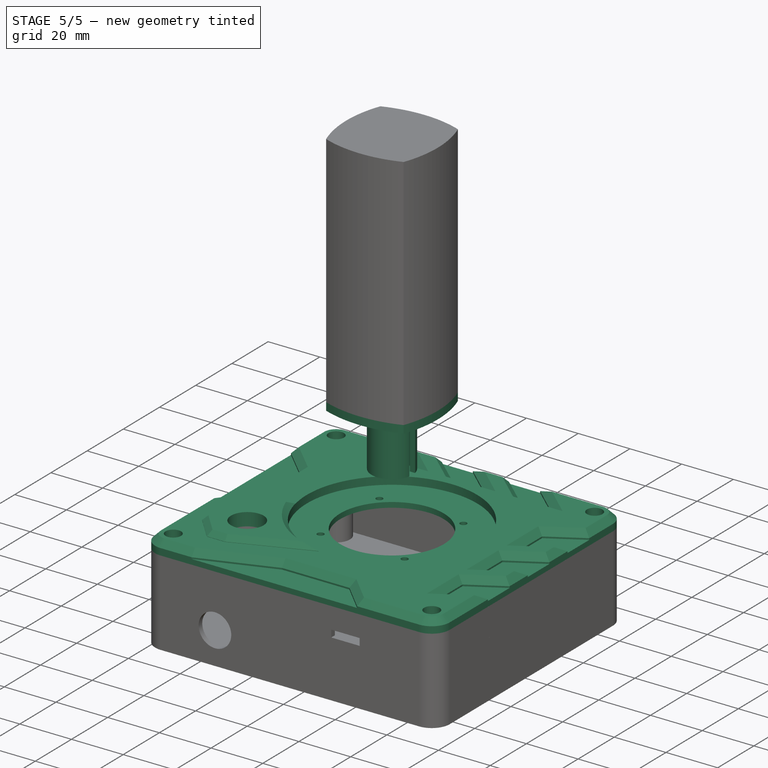
[diagram: stage 5 of 5 — iso view after this stage's code; geometry added in this stage tinted green]
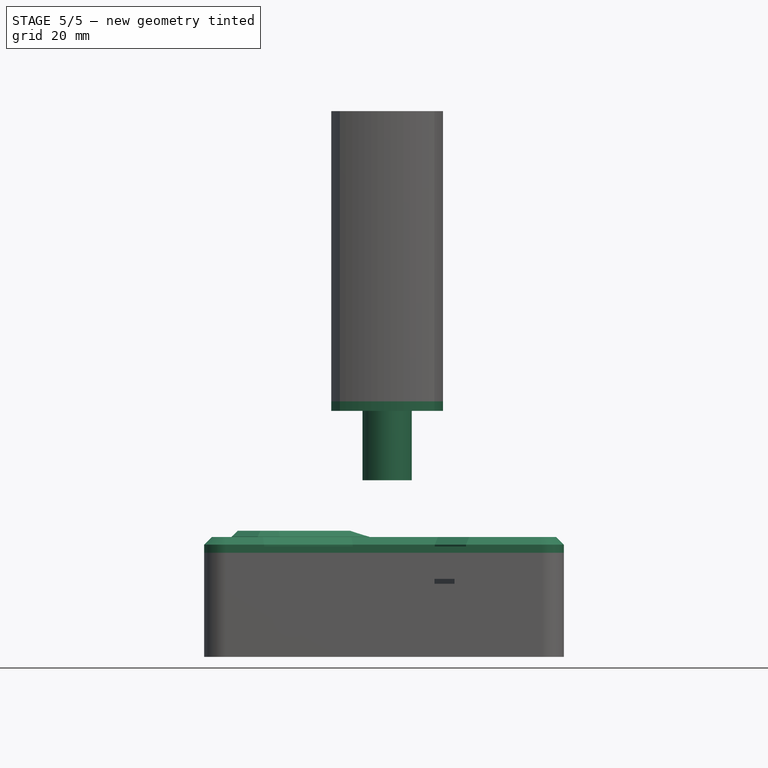
[diagram: stage 5 of 5 — front view after this stage's code; geometry added in this stage tinted green]
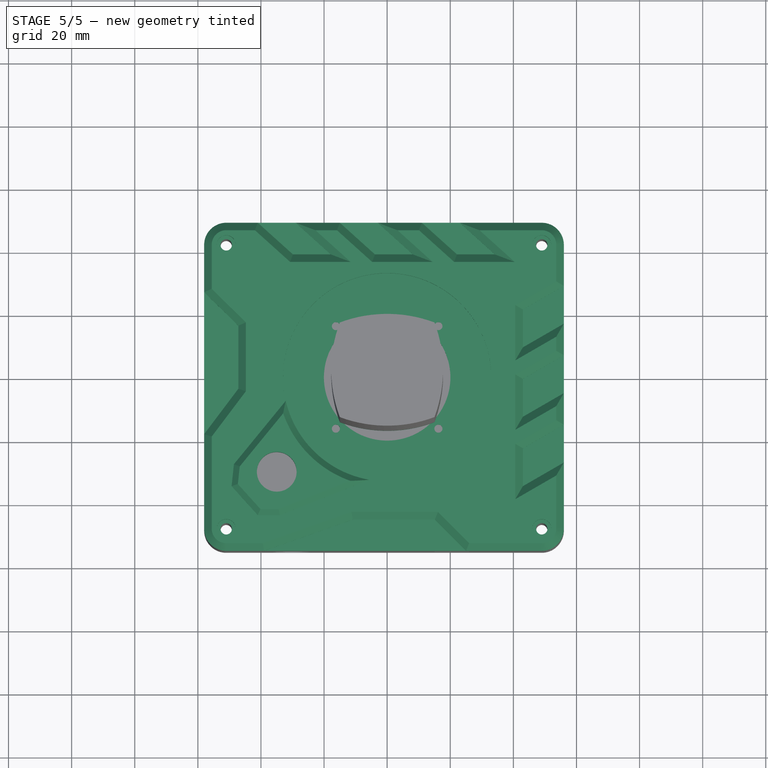
[diagram: stage 5 of 5 — top view after this stage's code; geometry added in this stage tinted green]
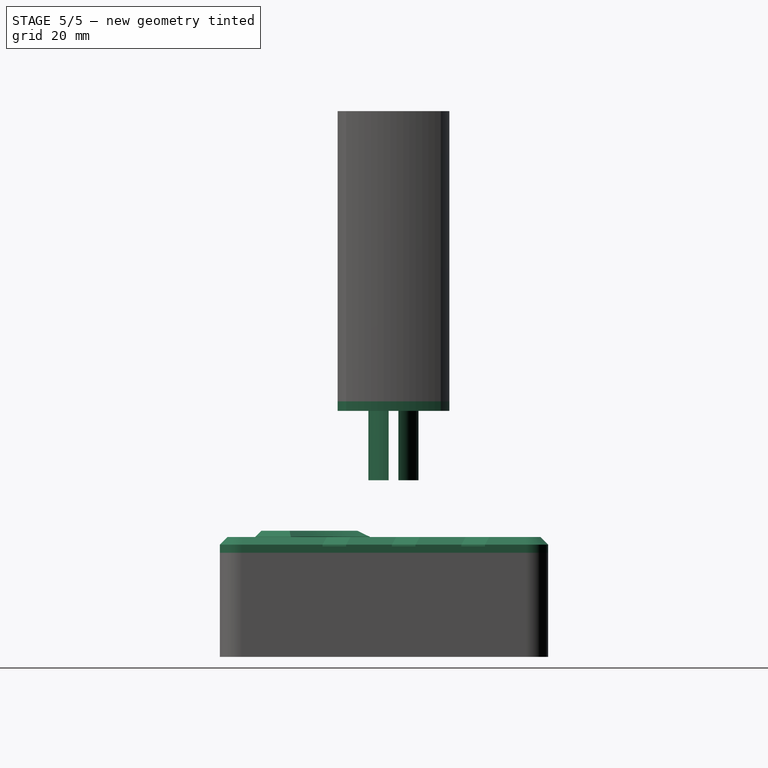
[diagram: stage 5 of 5 — right view after this stage's code; geometry added in this stage tinted green]
FEATURE [Sketcher::SketchObject] Sketch  label="Sketch Handgrip"
  FullyConstrained = false
  MapMode = 5
  sketch-geometry (19):
    g0: LineSegment StartX=-15 StartY=-15 StartZ=0 EndX=15 EndY=-15 EndZ=0
    g1: LineSegment StartX=15 StartY=-15 StartZ=0 EndX=15 EndY=15 EndZ=0
    g2: LineSegment StartX=-15 StartY=15 StartZ=0 EndX=-15 EndY=-15 EndZ=0
    g3: LineSegment StartX=0 StartY=15 StartZ=0 EndX=0 EndY=0 EndZ=0
    g4: LineSegment StartX=-15 StartY=15 StartZ=0 EndX=0 EndY=15 EndZ=0
    g5: LineSegment StartX=0 StartY=15 StartZ=0 EndX=15 EndY=15 EndZ=0
    g6: LineSegment StartX=15 StartY=15 StartZ=0 EndX=-15 EndY=15 EndZ=0
    g7: ArcOfCircle CenterX=-2.2e-15 CenterY=-25 CenterZ=0 NormalX=0 NormalY=0 NormalZ=1 AngleXU=0 Radius=42.72 StartAngle=1.21203 EndAngle=1.92957
    g8: ArcOfCircle CenterX=-25 CenterY=-3.3e-15 CenterZ=0 NormalX=0 NormalY=0 NormalZ=1 AngleXU=0 Radius=42.72 StartAngle=5.92441 EndAngle=6.64196
    g9: ArcOfCircle CenterX=2.6e-15 CenterY=25 CenterZ=0 NormalX=0 NormalY=0 NormalZ=1 AngleXU=0 Radius=42.72 StartAngle=4.35362 EndAngle=5.07116
    g10: ArcOfCircle CenterX=25 CenterY=3.8e-15 CenterZ=0 NormalX=0 NormalY=0 NormalZ=1 AngleXU=0 Radius=42.72 StartAngle=2.78282 EndAngle=3.50036
    g11: Circle CenterX=-11.75 CenterY=11.75 CenterZ=0 NormalX=0 NormalY=0 NormalZ=1 AngleXU=0 Radius=1.775
    g12: Circle CenterX=-11.75 CenterY=11.75 CenterZ=0 NormalX=0 NormalY=0 NormalZ=1 AngleXU=0 Radius=3.25
    g13: Circle CenterX=11.75 CenterY=11.75 CenterZ=0 NormalX=0 NormalY=0 NormalZ=1 AngleXU=0 Radius=3.25
    g14: Circle CenterX=11.75 CenterY=11.75 CenterZ=0 NormalX=0 NormalY=0 NormalZ=1 AngleXU=0 Radius=1.775
    g15: Circle CenterX=11.75 CenterY=-11.75 CenterZ=0 NormalX=0 NormalY=0 NormalZ=1 AngleXU=0 Radius=1.775
    g16: Circle CenterX=11.75 CenterY=-11.75 CenterZ=0 NormalX=0 NormalY=0 NormalZ=1 AngleXU=0 Radius=3.25
    g17: Circle CenterX=-11.75 CenterY=-11.75 CenterZ=0 NormalX=0 NormalY=0 NormalZ=1 AngleXU=0 Radius=1.775
    g18: Circle CenterX=-11.75 CenterY=-11.75 CenterZ=0 NormalX=0 NormalY=0 NormalZ=1 AngleXU=0 Radius=3.25
  constraints (51):
    c: Coincident(g0,g1)
    c: Coincident(g2,g0)
    c: Horizontal(g0)
    c: Vertical(g1)
    c: Vertical(g2)
    c: DistanceX(g2,g1) = 30
    c: Coincident(g3,g-1)
    c: Coincident(g4,g2)
    c: Horizontal(g4)
    c: Coincident(g5,g3)
    c: Coincident(g5,g1)
    c: Horizontal(g5)
    c: Equal(g5,g4)
    c: Perpendicular(g5,g3)
    c: Coincident(g3,g4)
    c: Equal(g3,g5)
    c: Coincident(g6,g1)
    c: Coincident(g6,g2)
    c: Equal(g6,g2)
    c: Coincident(g7,g2)
    c: Coincident(g7,g1)
    c: Distance(g-1,g7) = 25
    c: Coincident(g8,g7)
    c: Coincident(g8,g0)
    c: Coincident(g9,g0)
    c: Coincident(g9,g8)
    c: Coincident(g10,g9)
    c: Coincident(g10,g7)
    c: Equal(g10,g9)
    c: Equal(g9,g8)
    c: Equal(g8,g7)
    c: Diameter(g11) = 3.55
    c: Coincident(g12,g11)
    c: Diameter(g12) = 6.5
    c: Equal(g11,g14) = 3.55
    c: Coincident(g13,g14)
    c: Equal(g12,g13) = 6.5
    c: Equal(g11,g15) = 3.55
    c: Coincident(g16,g15)
    c: Equal(g12,g16) = 6.5
    c: Equal(g11,g17) = 3.55
    c: Coincident(g18,g17)
    c: Equal(g12,g18) = 6.5
    c: Tangent(g12,g4)
    c: Tangent(g12,g2)
    c: Tangent(g13,g5)
    c: Tangent(g13,g1)
    c: Tangent(g16,g0)
    c: Tangent(g16,g1)
    c: Tangent(g18,g0)
    c: Tangent(g2,g18)
FEATURE [Part::Extrusion] Extrude  label="Extrude Handgrip"
  Base = -> Sketch
  Dir = (0,0,1)
  DirMode = 0
  FaceMakerClass = Part::FaceMakerBullseye
  LengthFwd = 3
  LengthRev = 0
  Placement = pos=(0,0,45) rot=(0,0,1;0rad)
  Solid = true
  Symmetric = false
FEATURE [Sketcher::SketchObject] Sketch018  label="Sketch Fastener"
  FullyConstrained = false
  sketch-geometry (8):
    g0: ArcOfCircle CenterX=0 CenterY=0 CenterZ=0 NormalX=0 NormalY=0 NormalZ=1 AngleXU=0 Radius=7.94872 StartAngle=3.33822 EndAngle=6.08655
    g1: ArcOfCircle CenterX=0 CenterY=0 CenterZ=0 NormalX=0 NormalY=0 NormalZ=1 AngleXU=0 Radius=6 StartAngle=3.40339 EndAngle=6.02139
    g2: LineSegment StartX=-5.79555 StartY=-1.55291 StartZ=0 EndX=-7.79555 EndY=-1.55291 EndZ=0
    g3: LineSegment StartX=7.79555 StartY=-1.55291 StartZ=0 EndX=5.79555 EndY=-1.55291 EndZ=0
    g4: ArcOfCircle CenterX=0 CenterY=0 CenterZ=0 NormalX=0 NormalY=0 NormalZ=1 AngleXU=0 Radius=6 StartAngle=0.261799 EndAngle=2.87979
    g5: ArcOfCircle CenterX=0 CenterY=0 CenterZ=0 NormalX=0 NormalY=0 NormalZ=1 AngleXU=0 Radius=7.94872 StartAngle=0.196631 EndAngle=2.94496
    g6: LineSegment StartX=7.79555 StartY=1.55291 StartZ=0 EndX=5.79555 EndY=1.55291 EndZ=0
    g7: LineSegment StartX=-5.79555 StartY=1.55291 StartZ=0 EndX=-7.79555 EndY=1.55291 EndZ=0
  constraints (24):
    c: Coincident(g1,g0)
    c: Coincident(g2,g1)
    c: Coincident(g2,g0)
    c: Horizontal(g2)
    c: Coincident(g3,g0)
    c: Coincident(g3,g1)
    c: Coincident(g4,g0)
    c: Coincident(g5,g0)
    c: Coincident(g6,g5)
    c: Coincident(g6,g4)
    c: Coincident(g7,g4)
    c: Coincident(g7,g5)
    c: Equal(g1,g4)
    c: Equal(g5,g0)
    c: Horizontal(g7)
    c: Angle(g1) = 2.61799
    c: Distance(g7) = 2
    c: Radius(g4) = 6
    c: Angle(g4) = 2.61799
    c: Horizontal(g6)
    c: Horizontal(g4,g4)
    c: Horizontal(g3)
    c: Horizontal(g1,g1)
    c: Coincident(g0,g-1)
FEATURE [Part::Extrusion] Extrude006  label="Extrude Fastener"
  Base = -> Sketch018
  Dir = (0,0,1)
  DirMode = 0
  FaceMakerClass = Part::FaceMakerBullseye
  LengthFwd = 22
  LengthRev = 0
  Placement = pos=(0,0,23) rot=(0,0,1;0rad)
  Solid = true
  Symmetric = false
FEATURE [Part::MultiFuse] Fusion  label="Fusion Stick Base"
  Shapes = -> [Extrude006,Extrude]
FEATURE [Part::Chamfer] Chamfer
  Base = -> Extrude010
  Edges = 6 edges r=1.9: [Edge4,Edge7,Edge10,Edge13,Edge16,Edge18]
FEATURE [Part::Chamfer] Chamfer001
  Base = -> Extrude001
  Edges = 40 edges r=2.4: [Edge4,Edge7,Edge10,Edge13,Edge16,Edge19,Edge22,Edge25,Edge28,Edge31,Edge34,Edge37,Edge40,Edge43,Edge46,Edge49,Edge52,Edge55,Edge58,Edge61,Edge64,Edge67,Edge70,Edge73,Edge76,Edge79,Edge82,Edge85,Edge88,Edge91,Edge94,Edge97,Edge100,Edge103,Edge106,Edge109,Edge112,Edge115,Edge118,Edge120]
FEATURE [Part::MultiFuse] Fusion001  label="Fusion Cover"
  Placement = pos=(0,0,5) rot=(0,0,1;0rad)
  Shapes = -> [Chamfer001,Extrude002,Chamfer]
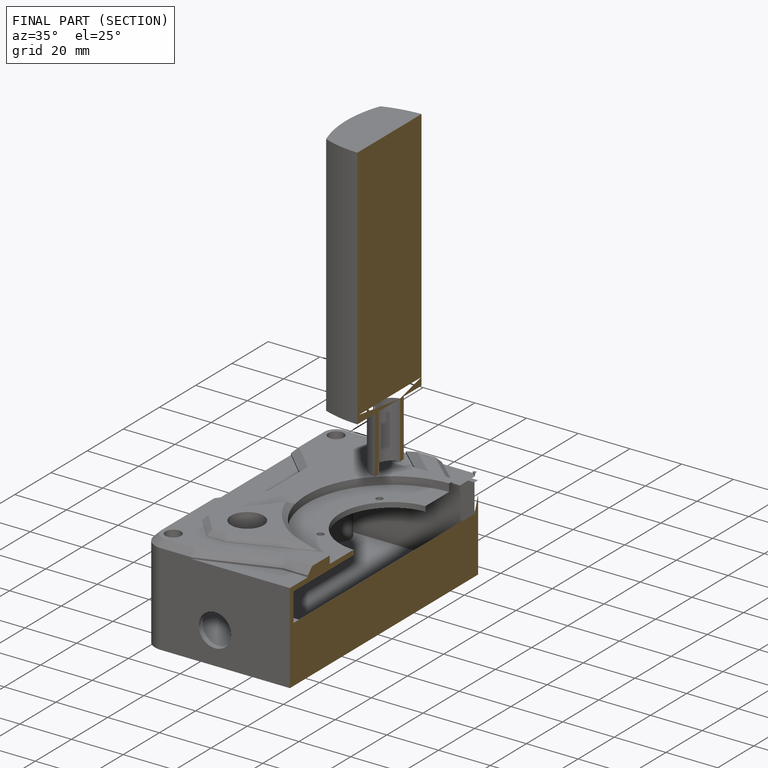
[diagram: finished part — half-section view (interior)]
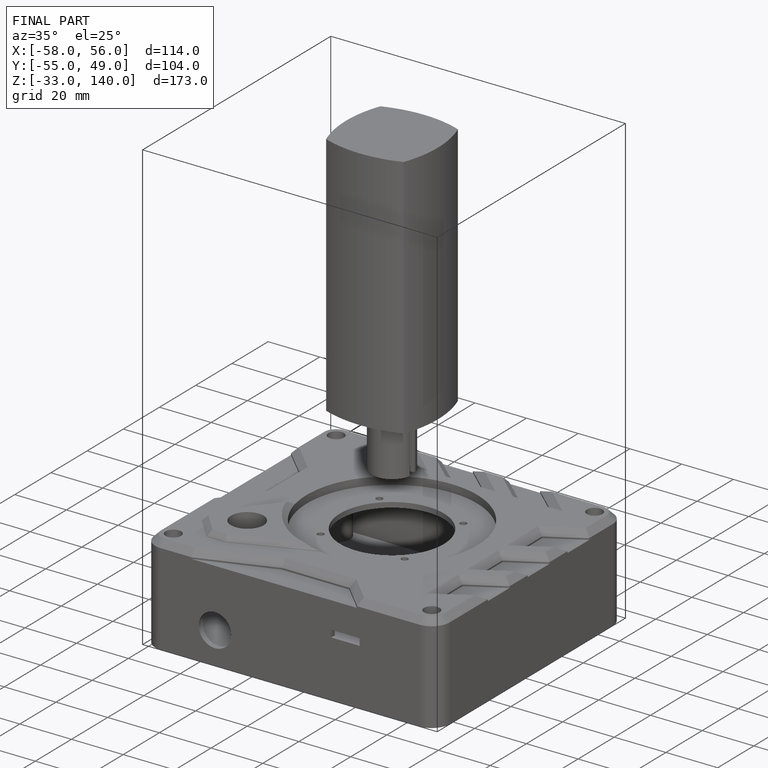
[diagram: finished part — iso view with bounding-box wireframe]
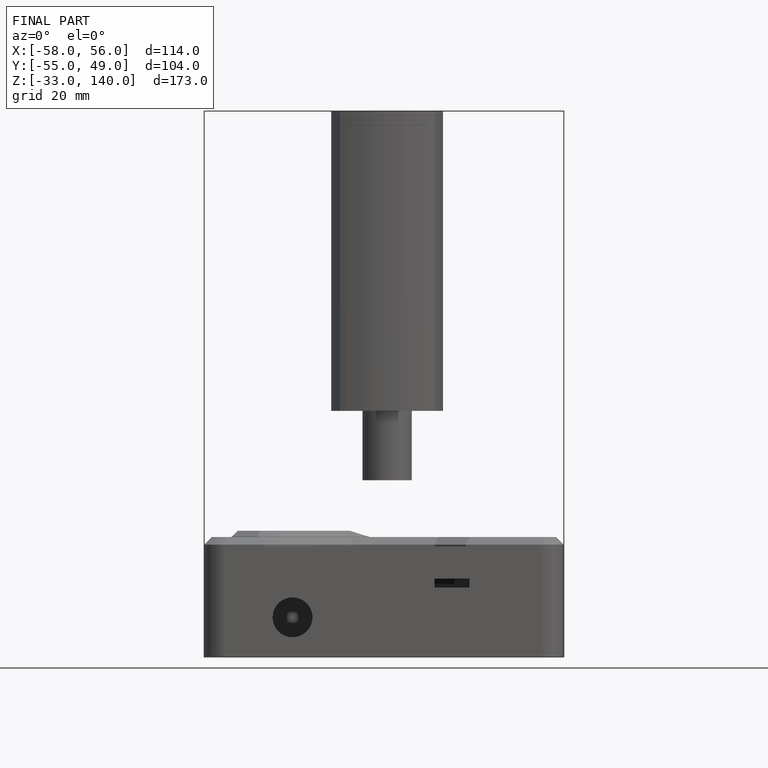
[diagram: finished part — front view with bounding-box wireframe]
